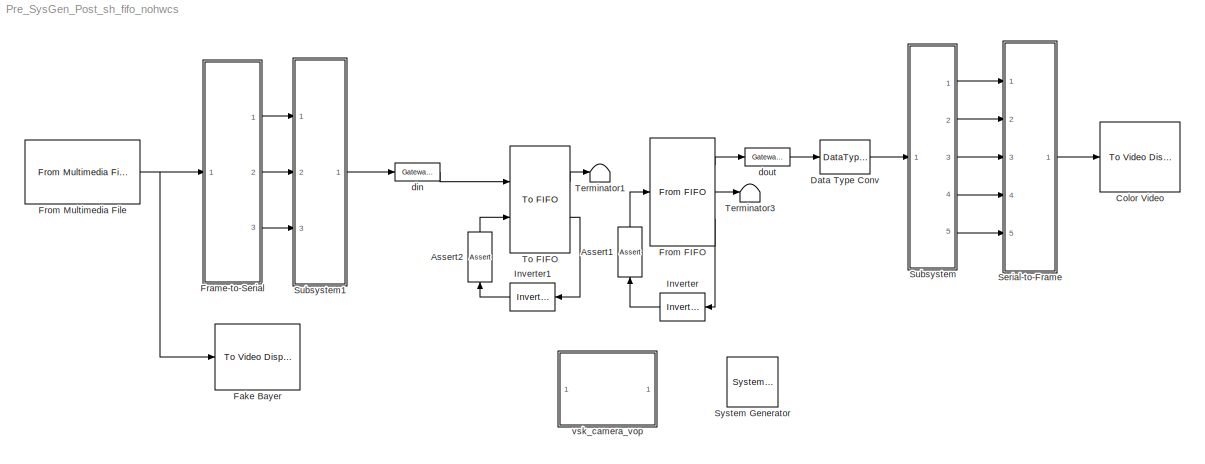
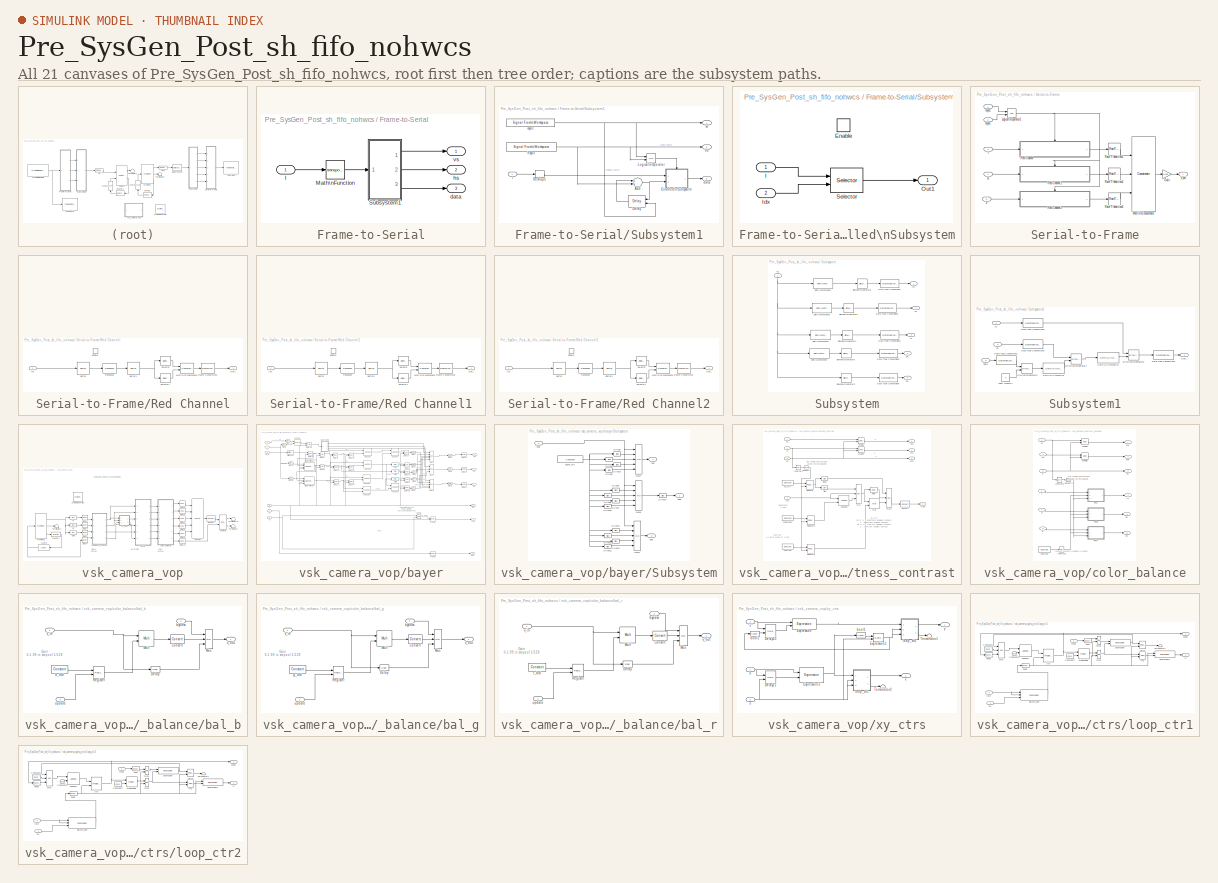
[diagram: thumbnail index - all 21 canvases of the model, root first then tree order]
MODEL Pre_SysGen_Post_sh_fifo_nohwcs
KIND model
CONFIG InitFcn = init
BLOCK [Reference]  System Generator  REF=xbsIndex_r4/ System Generator
  AttributesFormatString = System\\nGenerator
  FunctionWithSeparateData = off
  Ports = []
  RTWMemSecDataConstants = Inherit from model
  RTWMemSecDataInternal = Inherit from model
  RTWMemSecDataParameters = Inherit from model
  RTWMemSecFuncExecute = Inherit from model
  RTWMemSecFuncInitTerm = Inherit from model
  SID = 1
  ShowPortLabels = FromPortIcon
  SourceBlock = xbsIndex_r4/ System Generator
  SourceType = Xilinx System Generator Block
  SystemSampleTime = -1
  Tag = genX
  UserData = DataTag0
  UserDataPersistent = on
  block_type = sysgen
  block_version = 9.2.01
  core_generation = According to Block Masks
  dbl_ovrd = According to Block Masks
  deprecated_control = off
  directory = ./netlist
  eval_field = 0
  has_advanced_control = 0
  incr_netlist = off
  infoedit = System Generator
  package = fg676
  part = xc3sd1800a
  run_coregen = off
  sg_icon_stat = 51,50,-1,-1,red,beige,0,07734
  sg_mask_display = fprintf('','COMMENT: begin icon graphics');\npatch([0 51 51 0 ],[0 0 50 50 ],[0.93 0.92 0.86]);\npatch([12 4 16 4 12 25 29 33 47 36 25 17 29 17 25 36 47 33 29 25 12 ],[5 13 25 37 45 45 41 45 45 34 45 37 25 13 5 16 5 5 9 5 5 ],[0.6 0.2 0.25]);\nplot([0 0 51 51 0 ],[0 50 50 0 0 ]);\nfprintf('','COMMENT: end icon graphics');\nfprintf('','COMMENT: begin icon text');\nfprintf('','COMMENT: end icon text...<+5ch>
  sggui_pos = -1,-1,-1,-1
  simulink_period = 1
  speed = -4
  synthesis_tool = XST
  sysclk_period = 20
  testbench = off
  trim_vbits = Everywhere in SubSystem
  xilinxfamily = spartan3adsp
BLOCK [Reference] Assert1  REF=xbsIndex_r4/Assert
  Ports = [1, 1]
  SID = 2
  SourceBlock = xbsIndex_r4/Assert
  SourceType = Xilinx Assert Block
  arith_type = Unsigned
  assert_rate = on
  assert_type = off
  bin_pt = 2
  block_type = assert
  block_version = VER_STRING_GOES_HERE
  has_advanced_control = 0
  infoedit = Asserts a user-defined sample rate and/or type on a signal.
  n_bits = 8
  output_port = on
  period = 1
  rate_source = Explicitly
  sg_icon_stat = 24,50,1,1,white,blue,0,f7732e52
  sg_mask_display = fprintf('','COMMENT: begin icon graphics');\npatch([0 60 60 0 ],[0 0 30 30 ],[0.77 0.82 0.91]);\npatch([22 17 24 17 22 30 32 34 42 35 29 24 30 24 29 35 42 34 32 30 22 ],[3 8 15 22 27 27 25 27 27 20 26 21 15 9 4 10 3 3 5 3 3 ],[0.98 0.96 0.92]);\nplot([0 0 60 60 0 ],[0 30 30 0 0 ]);\nfprintf('','COMMENT: end icon graphics');\nfprintf('','COMMENT: begin icon text');\ncolor('black');disp('Assert');\n...<+39ch>  <repeated x3 — deduplicated; at blocks: Assert1, Assert2>
  sggui_pos = 20,20,336,406
  type_source = Explicitly
BLOCK [Reference] Assert2  REF=xbsIndex_r4/Assert
  Ports = [1, 1]
  SID = 3
  SourceBlock = xbsIndex_r4/Assert
  SourceType = Xilinx Assert Block
  arith_type = Unsigned
  assert_rate = on
  assert_type = off
  bin_pt = 2
  block_type = assert
  block_version = VER_STRING_GOES_HERE
  has_advanced_control = 0
  infoedit = Asserts a user-defined sample rate and/or type on a signal.
  n_bits = 8
  output_port = on
  period = 1
  rate_source = Explicitly
  sg_icon_stat = 24,50,1,1,white,blue,0,f7732e52
  sggui_pos = 20,20,336,406
  type_source = Explicitly
BLOCK [Reference] Color Video  REF=vipsnks/To Video Display
  OutputDevice = On-screen video monitor
  Ports = [1]
  SID = 4
  SourceBlock = vipsnks/To Video Display
  SourceProductBaseCode = VP
  SourceProductName = Computer Vision Toolbox
  SourceType = To Video Display
  dataOrg = Column-major
  fullScreen = off
  imagePorts = One multidimensional signal
  inputType = Obsolete
  saveWindowSize = off
  videoWindowHeight = 41
  videoWindowWidth = 44
  videoWindowX = 559
  videoWindowY = 678
BLOCK [DataTypeConversion] Data Type Conv
  OutDataTypeStr = uint32
  RndMeth = Floor
  SID = 5
  SaturateOnIntegerOverflow = off
BLOCK [Reference] Fake Bayer  REF=vipsnks/To Video Display
  OutputDevice = On-screen video monitor
  Ports = [1]
  SID = 6
  SourceBlock = vipsnks/To Video Display
  SourceProductBaseCode = VP
  SourceProductName = Computer Vision Toolbox
  SourceType = To Video Display
  dataOrg = Column-major
  fullScreen = off
  imagePorts = One multidimensional signal
  inputType = Obsolete
  saveWindowSize = off
  videoWindowHeight = 41
  videoWindowWidth = 44
  videoWindowX = 177
  videoWindowY = 679
BLOCK [SubSystem] Frame-to-Serial
  Ports = [1, 3]
  RequestExecContextInheritance = off
  SID = 7
BLOCK [Inport] Frame-to-Serial/I
  IconDisplay = Port number
  SID = 8
BLOCK [Math] Frame-to-Serial/Math\nFunction
  Operator = transpose
  Ports = [1, 1]
  SID = 9
BLOCK [SubSystem] Frame-to-Serial/Subsystem1
  Ports = [1, 3]
  RequestExecContextInheritance = off
  SID = 10
BLOCK [Sum] Frame-to-Serial/Subsystem1/Add
  InputSameDT = off
  OutDataTypeStr = Inherit: Inherit via internal rule
  Ports = [2, 1]
  SID = 12
  SaturateOnIntegerOverflow = off
BLOCK [Reference] Frame-to-Serial/Subsystem1/Delay  REF=dspsigops/Delay
  Ports = [2, 1]
  SID = 13
  SourceBlock = dspsigops/Delay
  SourceProductBaseCode = DS
  SourceProductName = DSP System Toolbox
  SourceType = Delay
  delay = 1
  dif_ic_for_ch = off
  dif_ic_for_dly = off
  dly_unit = Samples
  ic = 0
  ic_detail = off
  reset_popup = Falling edge
BLOCK [SubSystem] Frame-to-Serial/Subsystem1/Enabled\nSubsystem
  Ports = [2, 1, 1]
  RequestExecContextInheritance = off
  SID = 14
  TreatAsAtomicUnit = on
BLOCK [EnablePort] Frame-to-Serial/Subsystem1/Enabled\nSubsystem/Enable
  Ports = []
  SID = 17
BLOCK [Inport] Frame-to-Serial/Subsystem1/Enabled\nSubsystem/I
  IconDisplay = Port number
  SID = 15
BLOCK [Inport] Frame-to-Serial/Subsystem1/Enabled\nSubsystem/Idx
  IconDisplay = Port number
  Port = 2
  SID = 16
BLOCK [Outport] Frame-to-Serial/Subsystem1/Enabled\nSubsystem/Out1
  IconDisplay = Port number
  SID = 19
BLOCK [Selector] Frame-to-Serial/Subsystem1/Enabled\nSubsystem/Selector
  IndexOptions = Index vector (port)
  Indices = [1 4]
  InputPortWidth = rows*cols
  OutputSizes = 1
  Ports = [2, 1]
  SID = 18
  SampleTime = (1/fps)/(rows*(cols+2*blk))
BLOCK [Inport] Frame-to-Serial/Subsystem1/I
  IconDisplay = Port number
  SID = 11
BLOCK [Logic] Frame-to-Serial/Subsystem1/Logical\nOperator
  AllPortsSameDT = off
  OutDataTypeStr = boolean
  Ports = [2, 1]
  SID = 20
BLOCK [Reshape] Frame-to-Serial/Subsystem1/Reshape
  Ports = [1, 1]
  SID = 21
BLOCK [Outport] Frame-to-Serial/Subsystem1/data
  IconDisplay = Port number
  Port = 3
  SID = 26
BLOCK [Outport] Frame-to-Serial/Subsystem1/hs
  IconDisplay = Port number
  Port = 2
  SID = 25
BLOCK [Reference] Frame-to-Serial/Subsystem1/hsync  REF=dspsrcs4/Signal From\nWorkspace
  FunctionWithSeparateData = off
  OutputAfterFinalValue = Cyclic repetition
  Ports = [0, 1]
  RTWMemSecDataConstants = Inherit from model
  RTWMemSecDataInternal = Inherit from model
  RTWMemSecDataParameters = Inherit from model
  RTWMemSecFuncExecute = Inherit from model
  RTWMemSecFuncInitTerm = Inherit from model
  SID = 22
  ShowPortLabels = FromPortIcon
  SourceBlock = dspsrcs4/Signal From\nWorkspace
  SourceProductBaseCode = DS
  SourceProductName = DSP System Toolbox
  SourceType = Signal From Workspace
  SystemSampleTime = -1
  Ts = (1/fps)/ (rows*(cols+2*blk))
  X = [zeros(1,blk) ones(1,cols) zeros(1,blk)]
  ignoreOrWarnInputAndFrameLengths = off
  nsamps = 1
BLOCK [Outport] Frame-to-Serial/Subsystem1/vs
  IconDisplay = Port number
  SID = 24
BLOCK [Reference] Frame-to-Serial/Subsystem1/vsync  REF=dspsrcs4/Signal From\nWorkspace
  FunctionWithSeparateData = off
  OutputAfterFinalValue = Cyclic repetition
  Ports = [0, 1]
  RTWMemSecDataConstants = Inherit from model
  RTWMemSecDataInternal = Inherit from model
  RTWMemSecDataParameters = Inherit from model
  RTWMemSecFuncExecute = Inherit from model
  RTWMemSecFuncInitTerm = Inherit from model
  SID = 23
  ShowPortLabels = FromPortIcon
  SourceBlock = dspsrcs4/Signal From\nWorkspace
  SourceProductBaseCode = DS
  SourceProductName = DSP System Toolbox
  SourceType = Signal From Workspace
  SystemSampleTime = -1
  Ts = (1/fps)/(rows*(cols+2*blk))
  X = [ zeros(1,blk) ones(1,rows*(cols+2*blk)-2*blk) zeros(1,blk) ]
  ignoreOrWarnInputAndFrameLengths = off
  nsamps = 1
BLOCK [Outport] Frame-to-Serial/data
  IconDisplay = Port number
  Port = 3
  SID = 29
BLOCK [Outport] Frame-to-Serial/hs
  IconDisplay = Port number
  Port = 2
  SID = 28
BLOCK [Outport] Frame-to-Serial/vs
  IconDisplay = Port number
  SID = 27
BLOCK [Reference] From FIFO  REF=xbsIndex_r4/From FIFO
  AttributesFormatString = << %<shared_memory_name> >>
  Ports = [1, 3]
  SID = 30
  SourceBlock = xbsIndex_r4/From FIFO
  SourceType = Xilinx Shared Memory Based From FIFO Block
  arith_type = Unsigned
  bin_pt = 0
  block_type = fromfifo
  block_version = VER_STRING_GOES_HERE
  dbl_ovrd = off
  depth = 4K
  has_advanced_control = 0
  has_arst = off
  infoedit = First-in-first-out (FIFO) block that reads FIFO data from shared memory storage.
  mem_type = Block RAM
  n_bits = 32
  ownership = Owned elsewhere
  percent_nbits = 8
  sg_icon_stat = 65,108,1,3,white,blue,0,6a9babce
  sg_mask_display = fprintf('','COMMENT: begin icon graphics');\npatch([0 80 80 0 ],[0 0 90 90 ],[0.77 0.82 0.91]);\npatch([18 5 24 5 18 39 45 51 74 56 39 27 46 27 39 56 74 51 45 39 18 ],[14 27 46 65 78 78 72 78 78 60 77 65 46 27 15 32 14 14 20 14 14 ],[0.98 0.96 0.92]);\nplot([0 0 80 80 0 ],[0 90 90 0 0 ]);\nfprintf('','COMMENT: end icon graphics');\nfprintf('','COMMENT: begin icon text');\ncolor('black');port_label...<+201ch>
  sggui_pos = 20,20,356,304
  shared_memory_name = 'data_out'
  xl_area = [0,0,0,0,0,0,0]
  xl_use_area = off
BLOCK [Reference] From Multimedia File  REF=dspwin32/From Multimedia File
  Ports = [0, 1]
  SID = 31
  SourceBlock = dspwin32/From Multimedia File
  SourceProductBaseCode = DS
  SourceProductName = DSP System Toolbox
  SourceType = From Multimedia File
  audioDataType = int16
  colorVideoFormat = One multidimensional signal
  dataOrg = Column-major
  inheritSampleTime = off
  inputFilename = <path>
  isIntensityVideo = on
  loop = on
  noAudioOutput = off
  numPlays = inf
  outputEOF = off
  outputStreams = Video only
  userDefinedSampleTime = 1/fps
  videoDataType = uint8
BLOCK [Reference] Inverter  REF=xbsIndex_r4/Inverter
  Ports = [1, 1]
  SID = 32
  SourceBlock = xbsIndex_r4/Inverter
  SourceType = Xilinx Inverter Block
  block_type = inv
  block_version = VER_STRING_GOES_HERE
  dbl_ovrd = off
  en = off
  has_advanced_control = 0
  infoedit = Bitwise logical negation (one's complement) operator.
  latency = 0
  sg_icon_stat = 45,28,1,1,white,blue,0,1ab4a85f
  sg_mask_display = fprintf('','COMMENT: begin icon graphics');\npatch([0 55 55 0 ],[0 0 58 58 ],[0.77 0.82 0.91]);\npatch([13 4 17 4 13 28 32 36 52 40 28 19 32 19 28 40 52 36 32 28 13 ],[7 16 29 42 51 51 47 51 51 39 51 42 29 16 7 19 7 7 11 7 7 ],[0.98 0.96 0.92]);\nplot([0 0 55 55 0 ],[0 58 58 0 0 ]);\nfprintf('','COMMENT: end icon graphics');\nfprintf('','COMMENT: begin icon text');\ncolor('black');disp('not');\nfp...<+37ch>  <repeated x6 — deduplicated; at blocks: Inverter, Inverter1, Inverter2>
  sggui_pos = -1,-1,-1,-1
  xl_area = [0,0,0,0,0,0,0]
  xl_use_area = off
BLOCK [Reference] Inverter1  REF=xbsIndex_r4/Inverter
  Ports = [1, 1]
  SID = 33
  SourceBlock = xbsIndex_r4/Inverter
  SourceType = Xilinx Inverter Block
  block_type = inv
  block_version = VER_STRING_GOES_HERE
  dbl_ovrd = off
  en = off
  has_advanced_control = 0
  infoedit = Bitwise logical negation (one's complement) operator.
  latency = 0
  sg_icon_stat = 45,28,1,1,white,blue,0,1ab4a85f
  sggui_pos = 20,20,348,248
  xl_area = [0,0,0,0,0,0,0]
  xl_use_area = off
BLOCK [SubSystem] Serial-to-Frame
  Ports = [5, 1]
  RequestExecContextInheritance = off
  SID = 34
BLOCK [Gain] Serial-to-Frame/Gain
  Gain = 1/255
  OutDataTypeStr = Inherit: Inherit via internal rule
  ParamDataTypeStr = Inherit: Inherit via internal rule
  SID = 40
  SaturateOnIntegerOverflow = off
BLOCK [Logic] Serial-to-Frame/Logical\nOperator1
  AllPortsSameDT = off
  OutDataTypeStr = boolean
  Ports = [2, 1]
  SID = 41
BLOCK [Concatenate] Serial-to-Frame/Matrix\nConcatenate
  ConcatenateDimension = 3
  Mode = Multidimensional array
  NumInputs = 3
  Ports = [3, 1]
  SID = 42
BLOCK [RateTransition] Serial-to-Frame/Rate Transition1
  Deterministic = off
  OutPortSampleTime = 1/fps
  SID = 43
BLOCK [RateTransition] Serial-to-Frame/Rate Transition2
  Deterministic = off
  OutPortSampleTime = 1/fps
  SID = 44
BLOCK [RateTransition] Serial-to-Frame/Rate Transition3
  Deterministic = off
  OutPortSampleTime = 1/fps
  SID = 45
BLOCK [SubSystem] Serial-to-Frame/Red Channel
  Ports = [1, 1, 1]
  RequestExecContextInheritance = off
  SID = 46
BLOCK [Reference] Serial-to-Frame/Red Channel/Buffer  REF=dspbuff3/Buffer
  N = cols
  Ports = [1, 1]
  SID = 49
  SourceBlock = dspbuff3/Buffer
  SourceProductBaseCode = DS
  SourceProductName = DSP System Toolbox
  SourceType = Buffer
  V = 0
  ic = 0
BLOCK [Reference] Serial-to-Frame/Red Channel/Buffer1  REF=dspbuff3/Buffer
  N = rows
  Ports = [1, 1]
  SID = 50
  SourceBlock = dspbuff3/Buffer
  SourceProductBaseCode = DS
  SourceProductName = DSP System Toolbox
  SourceType = Buffer
  V = 0
  ic = 0
BLOCK [EnablePort] Serial-to-Frame/Red Channel/Enable
  Ports = []
  SID = 48
BLOCK [FrameConversion] Serial-to-Frame/Red Channel/Frame Conversion1
  OutFrame = Sample-based
  Ports = [1, 1]
  SID = 51
BLOCK [Inport] Serial-to-Frame/Red Channel/In1
  IconDisplay = Port number
  SID = 47
BLOCK [Concatenate] Serial-to-Frame/Red Channel/Matrix\nConcatenate
  Mode = Multidimensional array
  Ports = [2, 1]
  SID = 52
BLOCK [Outport] Serial-to-Frame/Red Channel/Out1
  IconDisplay = Port number
  SID = 56
BLOCK [Selector] Serial-to-Frame/Red Channel/Selector
  IndexOptions = Index vector (dialog),Select all
  Indices = 22:rows,1
  InputPortWidth = 3
  NumberOfDimensions = 2
  OutputSizes = 1,1
  Ports = [1, 1]
  SID = 53
BLOCK [Selector] Serial-to-Frame/Red Channel/Selector1
  IndexOptions = Index vector (dialog),Select all
  Indices = 1:21,1
  InputPortWidth = 3
  NumberOfDimensions = 2
  OutputSizes = 1,1
  Ports = [1, 1]
  SID = 54
BLOCK [Reference] Serial-to-Frame/Red Channel/Transpose  REF=dspmtrx3/Transpose
  FunctionWithSeparateData = off
  Hermitian = off
  Ports = [1, 1]
  RTWMemSecDataConstants = Inherit from model
  RTWMemSecDataInternal = Inherit from model
  RTWMemSecDataParameters = Inherit from model
  RTWMemSecFuncExecute = Inherit from model
  RTWMemSecFuncInitTerm = Inherit from model
  SID = 55
  ShowPortLabels = FromPortIcon
  SourceBlock = dspmtrx3/Transpose
  SourceProductBaseCode = DS
  SourceProductName = DSP System Toolbox
  SourceType = Transpose
  SystemSampleTime = -1
  overflowFlag = off
BLOCK [SubSystem] Serial-to-Frame/Red Channel1
  Ports = [1, 1, 1]
  RequestExecContextInheritance = off
  SID = 57
BLOCK [Reference] Serial-to-Frame/Red Channel1/Buffer  REF=dspbuff3/Buffer
  N = cols
  Ports = [1, 1]
  SID = 60
  SourceBlock = dspbuff3/Buffer
  SourceProductBaseCode = DS
  SourceProductName = DSP System Toolbox
  SourceType = Buffer
  V = 0
  ic = 0
BLOCK [Reference] Serial-to-Frame/Red Channel1/Buffer1  REF=dspbuff3/Buffer
  N = rows
  Ports = [1, 1]
  SID = 61
  SourceBlock = dspbuff3/Buffer
  SourceProductBaseCode = DS
  SourceProductName = DSP System Toolbox
  SourceType = Buffer
  V = 0
  ic = 0
BLOCK [EnablePort] Serial-to-Frame/Red Channel1/Enable
  Ports = []
  SID = 59
BLOCK [FrameConversion] Serial-to-Frame/Red Channel1/Frame Conversion1
  OutFrame = Sample-based
  Ports = [1, 1]
  SID = 62
BLOCK [Inport] Serial-to-Frame/Red Channel1/In1
  IconDisplay = Port number
  SID = 58
BLOCK [Concatenate] Serial-to-Frame/Red Channel1/Matrix\nConcatenate
  Mode = Multidimensional array
  Ports = [2, 1]
  SID = 63
BLOCK [Outport] Serial-to-Frame/Red Channel1/Out1
  IconDisplay = Port number
  SID = 67
BLOCK [Selector] Serial-to-Frame/Red Channel1/Selector
  IndexOptions = Index vector (dialog),Select all
  Indices = 22:rows,1
  InputPortWidth = 3
  NumberOfDimensions = 2
  OutputSizes = 1,1
  Ports = [1, 1]
  SID = 64
BLOCK [Selector] Serial-to-Frame/Red Channel1/Selector1
  IndexOptions = Index vector (dialog),Select all
  Indices = 1:21,1
  InputPortWidth = 3
  NumberOfDimensions = 2
  OutputSizes = 1,1
  Ports = [1, 1]
  SID = 65
BLOCK [Reference] Serial-to-Frame/Red Channel1/Transpose  REF=dspmtrx3/Transpose
  FunctionWithSeparateData = off
  Hermitian = off
  Ports = [1, 1]
  RTWMemSecDataConstants = Inherit from model
  RTWMemSecDataInternal = Inherit from model
  RTWMemSecDataParameters = Inherit from model
  RTWMemSecFuncExecute = Inherit from model
  RTWMemSecFuncInitTerm = Inherit from model
  SID = 66
  ShowPortLabels = FromPortIcon
  SourceBlock = dspmtrx3/Transpose
  SourceProductBaseCode = DS
  SourceProductName = DSP System Toolbox
  SourceType = Transpose
  SystemSampleTime = -1
  overflowFlag = off
BLOCK [SubSystem] Serial-to-Frame/Red Channel2
  Ports = [1, 1, 1]
  RequestExecContextInheritance = off
  SID = 68
BLOCK [Reference] Serial-to-Frame/Red Channel2/Buffer  REF=dspbuff3/Buffer
  N = cols
  Ports = [1, 1]
  SID = 71
  SourceBlock = dspbuff3/Buffer
  SourceProductBaseCode = DS
  SourceProductName = DSP System Toolbox
  SourceType = Buffer
  V = 0
  ic = 0
BLOCK [Reference] Serial-to-Frame/Red Channel2/Buffer1  REF=dspbuff3/Buffer
  N = rows
  Ports = [1, 1]
  SID = 72
  SourceBlock = dspbuff3/Buffer
  SourceProductBaseCode = DS
  SourceProductName = DSP System Toolbox
  SourceType = Buffer
  V = 0
  ic = 0
BLOCK [EnablePort] Serial-to-Frame/Red Channel2/Enable
  Ports = []
  SID = 70
BLOCK [FrameConversion] Serial-to-Frame/Red Channel2/Frame Conversion1
  OutFrame = Sample-based
  Ports = [1, 1]
  SID = 73
BLOCK [Inport] Serial-to-Frame/Red Channel2/In1
  IconDisplay = Port number
  SID = 69
BLOCK [Concatenate] Serial-to-Frame/Red Channel2/Matrix\nConcatenate
  Mode = Multidimensional array
  Ports = [2, 1]
  SID = 74
BLOCK [Outport] Serial-to-Frame/Red Channel2/Out1
  IconDisplay = Port number
  SID = 78
BLOCK [Selector] Serial-to-Frame/Red Channel2/Selector
  IndexOptions = Index vector (dialog),Select all
  Indices = 22:rows,1
  InputPortWidth = 3
  NumberOfDimensions = 2
  OutputSizes = 1,1
  Ports = [1, 1]
  SID = 75
BLOCK [Selector] Serial-to-Frame/Red Channel2/Selector1
  IndexOptions = Index vector (dialog),Select all
  Indices = 1:21,1
  InputPortWidth = 3
  NumberOfDimensions = 2
  OutputSizes = 1,1
  Ports = [1, 1]
  SID = 76
BLOCK [Reference] Serial-to-Frame/Red Channel2/Transpose  REF=dspmtrx3/Transpose
  FunctionWithSeparateData = off
  Hermitian = off
  Ports = [1, 1]
  RTWMemSecDataConstants = Inherit from model
  RTWMemSecDataInternal = Inherit from model
  RTWMemSecDataParameters = Inherit from model
  RTWMemSecFuncExecute = Inherit from model
  RTWMemSecFuncInitTerm = Inherit from model
  SID = 77
  ShowPortLabels = FromPortIcon
  SourceBlock = dspmtrx3/Transpose
  SourceProductBaseCode = DS
  SourceProductName = DSP System Toolbox
  SourceType = Transpose
  SystemSampleTime = -1
  overflowFlag = off
BLOCK [Inport] Serial-to-Frame/b
  IconDisplay = Port number
  Port = 5
  SID = 39
BLOCK [Inport] Serial-to-Frame/g
  IconDisplay = Port number
  Port = 4
  SID = 38
BLOCK [Inport] Serial-to-Frame/hsync
  IconDisplay = Port number
  Port = 2
  SID = 36
BLOCK [Inport] Serial-to-Frame/r
  IconDisplay = Port number
  Port = 3
  SID = 37
BLOCK [Outport] Serial-to-Frame/v_out
  IconDisplay = Port number
  SID = 79
BLOCK [Inport] Serial-to-Frame/vsync
  IconDisplay = Port number
  SID = 35
BLOCK [SubSystem] Subsystem
  Ports = [1, 5]
  RequestExecContextInheritance = off
  SID = 80
BLOCK [Reference] Subsystem/Bitwise\nOperator2  REF=simulink/Logic and Bit\nOperations/Bitwise\nOperator
  BitMask = bin2dec('000000000000000000011111111')
  BitMaskRealWorld = Stored Integer
  NumInputPorts = 1
  Ports = [1, 1]
  SID = 82
  SourceBlock = simulink/Logic and Bit\nOperations/Bitwise\nOperator
  SourceProductBaseCode = SL
  SourceProductName = Simulink
  SourceType = Bitwise Operator
  UseBitMask = on
  logicop = AND
BLOCK [Reference] Subsystem/Bitwise\nOperator3  REF=simulink/Logic and Bit\nOperations/Bitwise\nOperator
  BitMask = bin2dec('000000000000000000011111111')
  BitMaskRealWorld = Stored Integer
  NumInputPorts = 1
  Ports = [1, 1]
  SID = 83
  SourceBlock = simulink/Logic and Bit\nOperations/Bitwise\nOperator
  SourceProductBaseCode = SL
  SourceProductName = Simulink
  SourceType = Bitwise Operator
  UseBitMask = on
  logicop = AND
BLOCK [Reference] Subsystem/Bitwise\nOperator4  REF=simulink/Logic and Bit\nOperations/Bitwise\nOperator
  BitMask = bin2dec('000000000000000000011111111')
  BitMaskRealWorld = Stored Integer
  NumInputPorts = 1
  Ports = [1, 1]
  SID = 84
  SourceBlock = simulink/Logic and Bit\nOperations/Bitwise\nOperator
  SourceProductBaseCode = SL
  SourceProductName = Simulink
  SourceType = Bitwise Operator
  UseBitMask = on
  logicop = AND
BLOCK [Reference] Subsystem/Bitwise\nOperator5  REF=simulink/Logic and Bit\nOperations/Bitwise\nOperator
  BitMask = bin2dec('000000000000000000000000001')
  BitMaskRealWorld = Stored Integer
  NumInputPorts = 1
  Ports = [1, 1]
  SID = 85
  SourceBlock = simulink/Logic and Bit\nOperations/Bitwise\nOperator
  SourceProductBaseCode = SL
  SourceProductName = Simulink
  SourceType = Bitwise Operator
  UseBitMask = on
  logicop = AND
BLOCK [Reference] Subsystem/Bitwise\nOperator6  REF=simulink/Logic and Bit\nOperations/Bitwise\nOperator
  BitMask = bin2dec('000000000000000000000000001')
  BitMaskRealWorld = Stored Integer
  NumInputPorts = 1
  Ports = [1, 1]
  SID = 86
  SourceBlock = simulink/Logic and Bit\nOperations/Bitwise\nOperator
  SourceProductBaseCode = SL
  SourceProductName = Simulink
  SourceType = Bitwise Operator
  UseBitMask = on
  logicop = AND
BLOCK [DataTypeConversion] Subsystem/Data Type Conversion2
  OutDataTypeStr = double
  RndMeth = Floor
  SID = 87
  SaturateOnIntegerOverflow = off
BLOCK [DataTypeConversion] Subsystem/Data Type Conversion3
  OutDataTypeStr = double
  RndMeth = Floor
  SID = 88
  SaturateOnIntegerOverflow = off
BLOCK [DataTypeConversion] Subsystem/Data Type Conversion4
  OutDataTypeStr = double
  RndMeth = Floor
  SID = 89
  SaturateOnIntegerOverflow = off
BLOCK [DataTypeConversion] Subsystem/Data Type Conversion5
  OutDataTypeStr = double
  RndMeth = Floor
  SID = 90
  SaturateOnIntegerOverflow = off
BLOCK [DataTypeConversion] Subsystem/Data Type Conversion6
  OutDataTypeStr = double
  RndMeth = Floor
  SID = 91
  SaturateOnIntegerOverflow = off
BLOCK [Inport] Subsystem/In1
  IconDisplay = Port number
  SID = 81
BLOCK [Reference] Subsystem/Shift\nArithmetic2  REF=simulink/Logic and Bit\nOperations/Shift\nArithmetic
  FunctionWithSeparateData = off
  Ports = [1, 1]
  RTWMemSecDataConstants = Inherit from model
  RTWMemSecDataInternal = Inherit from model
  RTWMemSecDataParameters = Inherit from model
  RTWMemSecFuncExecute = Inherit from model
  RTWMemSecFuncInitTerm = Inherit from model
  SID = 92
  ShowPortLabels = FromPortIcon
  SourceBlock = simulink/Logic and Bit\nOperations/Shift\nArithmetic
  SourceProductBaseCode = SL
  SourceProductName = Simulink
  SourceType = Shift Arithmetic
  SystemSampleTime = -1
  nBinPtShiftRight = 0
  nBitShiftRight = 16
BLOCK [Reference] Subsystem/Shift\nArithmetic3  REF=simulink/Logic and Bit\nOperations/Shift\nArithmetic
  FunctionWithSeparateData = off
  Ports = [1, 1]
  RTWMemSecDataConstants = Inherit from model
  RTWMemSecDataInternal = Inherit from model
  RTWMemSecDataParameters = Inherit from model
  RTWMemSecFuncExecute = Inherit from model
  RTWMemSecFuncInitTerm = Inherit from model
  SID = 93
  ShowPortLabels = FromPortIcon
  SourceBlock = simulink/Logic and Bit\nOperations/Shift\nArithmetic
  SourceProductBaseCode = SL
  SourceProductName = Simulink
  SourceType = Shift Arithmetic
  SystemSampleTime = -1
  nBinPtShiftRight = 0
  nBitShiftRight = 24
BLOCK [Reference] Subsystem/Shift\nArithmetic4  REF=simulink/Logic and Bit\nOperations/Shift\nArithmetic
  FunctionWithSeparateData = off
  Ports = [1, 1]
  RTWMemSecDataConstants = Inherit from model
  RTWMemSecDataInternal = Inherit from model
  RTWMemSecDataParameters = Inherit from model
  RTWMemSecFuncExecute = Inherit from model
  RTWMemSecFuncInitTerm = Inherit from model
  SID = 94
  ShowPortLabels = FromPortIcon
  SourceBlock = simulink/Logic and Bit\nOperations/Shift\nArithmetic
  SourceProductBaseCode = SL
  SourceProductName = Simulink
  SourceType = Shift Arithmetic
  SystemSampleTime = -1
  nBinPtShiftRight = 0
  nBitShiftRight = 8
BLOCK [Reference] Subsystem/Shift\nArithmetic5  REF=simulink/Logic and Bit\nOperations/Shift\nArithmetic
  FunctionWithSeparateData = off
  Ports = [1, 1]
  RTWMemSecDataConstants = Inherit from model
  RTWMemSecDataInternal = Inherit from model
  RTWMemSecDataParameters = Inherit from model
  RTWMemSecFuncExecute = Inherit from model
  RTWMemSecFuncInitTerm = Inherit from model
  SID = 95
  ShowPortLabels = FromPortIcon
  SourceBlock = simulink/Logic and Bit\nOperations/Shift\nArithmetic
  SourceProductBaseCode = SL
  SourceProductName = Simulink
  SourceType = Shift Arithmetic
  SystemSampleTime = -1
  nBinPtShiftRight = 0
  nBitShiftRight = 25
BLOCK [Outport] Subsystem/bo
  IconDisplay = Port number
  Port = 5
  SID = 100
BLOCK [Outport] Subsystem/go
  IconDisplay = Port number
  Port = 4
  SID = 99
BLOCK [Outport] Subsystem/ho
  IconDisplay = Port number
  Port = 2
  SID = 97
BLOCK [Outport] Subsystem/ro
  IconDisplay = Port number
  Port = 3
  SID = 98
BLOCK [Outport] Subsystem/vo
  IconDisplay = Port number
  SID = 96
BLOCK [SubSystem] Subsystem1
  Ports = [3, 1]
  RequestExecContextInheritance = off
  SID = 101
BLOCK [Constant] Subsystem1/10bit Result1
  OutDataTypeStr = fixdt(0,10,0)
  SID = 105
  Value = 0
BLOCK [Reference] Subsystem1/Bitwise\nOperator3  REF=simulink/Logic and Bit\nOperations/Bitwise\nOperator
  BitMask = bin2dec('11011001')
  BitMaskRealWorld = Stored Integer
  NumInputPorts = 2
  Ports = [2, 1]
  SID = 106
  SourceBlock = simulink/Logic and Bit\nOperations/Bitwise\nOperator
  SourceProductBaseCode = SL
  SourceProductName = Simulink
  SourceType = Bitwise Operator
  UseBitMask = off
  logicop = XOR
BLOCK [Reference] Subsystem1/Bitwise\nOperator4  REF=simulink/Logic and Bit\nOperations/Bitwise\nOperator
  BitMask = bin2dec('11011001')
  BitMaskRealWorld = Stored Integer
  NumInputPorts = 2
  Ports = [2, 1]
  SID = 107
  SourceBlock = simulink/Logic and Bit\nOperations/Bitwise\nOperator
  SourceProductBaseCode = SL
  SourceProductName = Simulink
  SourceType = Bitwise Operator
  UseBitMask = off
  logicop = XOR
BLOCK [Reference] Subsystem1/Bitwise\nOperator5  REF=simulink/Logic and Bit\nOperations/Bitwise\nOperator
  BitMask = bin2dec('11011001')
  BitMaskRealWorld = Stored Integer
  NumInputPorts = 2
  Ports = [2, 1]
  SID = 108
  SourceBlock = simulink/Logic and Bit\nOperations/Bitwise\nOperator
  SourceProductBaseCode = SL
  SourceProductName = Simulink
  SourceType = Bitwise Operator
  UseBitMask = off
  logicop = XOR
BLOCK [DataTypeConversion] Subsystem1/Data Type Conversion1
  OutDataTypeStr = uint8
  RndMeth = Floor
  SID = 109
  SaturateOnIntegerOverflow = off
BLOCK [DataTypeConversion] Subsystem1/Data Type Conversion2
  OutDataTypeStr = fixdt(0,10,0)
  RndMeth = Floor
  SID = 110
  SaturateOnIntegerOverflow = off
BLOCK [DataTypeConversion] Subsystem1/Data Type Conversion3
  OutDataTypeStr = fixdt(0,10,0)
  RndMeth = Floor
  SID = 111
  SaturateOnIntegerOverflow = off
BLOCK [DataTypeConversion] Subsystem1/Data Type Conversion4
  OutDataTypeStr = uint16
  RndMeth = Floor
  SID = 112
  SaturateOnIntegerOverflow = off
BLOCK [Outport] Subsystem1/Out1
  IconDisplay = Port number
  SID = 115
BLOCK [Reference] Subsystem1/Shift\nArithmetic2  REF=simulink/Logic and Bit\nOperations/Shift\nArithmetic
  FunctionWithSeparateData = off
  Ports = [1, 1]
  RTWMemSecDataConstants = Inherit from model
  RTWMemSecDataInternal = Inherit from model
  RTWMemSecDataParameters = Inherit from model
  RTWMemSecFuncExecute = Inherit from model
  RTWMemSecFuncInitTerm = Inherit from model
  SID = 113
  ShowPortLabels = FromPortIcon
  SourceBlock = simulink/Logic and Bit\nOperations/Shift\nArithmetic
  SourceProductBaseCode = SL
  SourceProductName = Simulink
  SourceType = Shift Arithmetic
  SystemSampleTime = -1
  nBinPtShiftRight = 0
  nBitShiftRight = -1
BLOCK [Reference] Subsystem1/Shift\nArithmetic3  REF=simulink/Logic and Bit\nOperations/Shift\nArithmetic
  FunctionWithSeparateData = off
  Ports = [1, 1]
  RTWMemSecDataConstants = Inherit from model
  RTWMemSecDataInternal = Inherit from model
  RTWMemSecDataParameters = Inherit from model
  RTWMemSecFuncExecute = Inherit from model
  RTWMemSecFuncInitTerm = Inherit from model
  SID = 114
  ShowPortLabels = FromPortIcon
  SourceBlock = simulink/Logic and Bit\nOperations/Shift\nArithmetic
  SourceProductBaseCode = SL
  SourceProductName = Simulink
  SourceType = Shift Arithmetic
  SystemSampleTime = -1
  nBinPtShiftRight = 0
  nBitShiftRight = -1
BLOCK [Inport] Subsystem1/data
  IconDisplay = Port number
  Port = 3
  SID = 104
BLOCK [Inport] Subsystem1/hs
  IconDisplay = Port number
  Port = 2
  SID = 103
BLOCK [Inport] Subsystem1/vs
  IconDisplay = Port number
  SID = 102
BLOCK [Terminator] Terminator1
  SID = 116
BLOCK [Terminator] Terminator3
  SID = 117
BLOCK [Reference] To FIFO  REF=xbsIndex_r4/To FIFO
  AttributesFormatString = << %<shared_memory_name> >>
  Ports = [2, 2]
  SID = 118
  SourceBlock = xbsIndex_r4/To FIFO
  SourceType = Xilinx Shared Memory Based To FIFO Block
  arith_type = Unsigned
  bin_pt = 0
  block_type = tofifo
  block_version = VER_STRING_GOES_HERE
  dbl_ovrd = off
  depth = 16
  explicit_data_type = on
  has_advanced_control = 0
  has_arst = off
  infoedit = First-in-first-out (FIFO) block that writes FIFO data to shared memory storage.
  mem_type = Block RAM
  n_bits = 16
  ownership = Owned elsewhere
  percent_nbits = 1
  sg_icon_stat = 60,107,2,2,white,blue,0,aeee8328
  sg_mask_display = fprintf('','COMMENT: begin icon graphics');\npatch([0 80 80 0 ],[0 0 91 91 ],[0.77 0.82 0.91]);\npatch([18 5 24 5 18 39 45 51 74 56 39 27 46 27 39 56 74 51 45 39 18 ],[14 27 46 65 78 78 72 78 78 60 77 65 46 27 15 32 14 14 20 14 14 ],[0.98 0.96 0.92]);\nplot([0 0 80 80 0 ],[0 91 91 0 0 ]);\nfprintf('','COMMENT: end icon graphics');\nfprintf('','COMMENT: begin icon text');\ncolor('black');port_label...<+202ch>
  sggui_pos = 171,476,356,304
  shared_memory_name = 'data_in'
  xl_area = [0,0,0,0,0,0,0]
  xl_use_area = off
BLOCK [Reference] din  REF=xbsIndex_r4/Gateway In
  LOCs = {}
  Ports = [1, 1]
  SID = 119
  SourceBlock = xbsIndex_r4/Gateway In
  SourceType = Xilinx Gateway In Block
  arith_type = Unsigned
  bin_pt = 0
  block_type = gatewayin
  block_version = VER_STRING_GOES_HERE
  dbl_ovrd = off
  has_advanced_control = 0
  infoedit = Gateway in block.  Converts inputs of type Simulink integer, double and fixed point to  Xilinx fixed point type.<P><P>Hardware notes:  In hardware these blocks become top level input ports.
  locs_specified = off
  n_bits = 16
  overflow = Saturate
  period = 1
  quantization = Round  (unbiased: +/- Inf)
  sg_icon_stat = 45,18,1,1,white,yellow,0,4bb76ffd
  sg_mask_display = fprintf('','COMMENT: begin icon graphics');\npatch([0 65 65 0 ],[0 0 20 20 ],[0.95 0.93 0.65]);\npatch([27 24 29 24 27 32 33 34 40 36 32 29 34 29 32 36 40 34 33 32 27 ],[2 5 10 15 18 18 17 18 18 14 18 15 10 5 2 6 2 2 3 2 2 ],[0.98 0.96 0.92]);\nplot([0 0 65 65 0 ],[0 20 20 0 0 ]);\nfprintf('','COMMENT: end icon graphics');\nfprintf('','COMMENT: begin icon text');\ncolor('black');port_label('input'...<+131ch>
  sggui_pos = 20,20,348,408
  timing_constraint = None
  xl_area = [0, 0, 0, 0, 0, 0, 0]
  xl_use_area = off
BLOCK [Reference] dout  REF=xbsIndex_r4/Gateway Out
  LOCs = {}
  Ports = [1, 1]
  SID = 120
  SourceBlock = xbsIndex_r4/Gateway Out
  SourceType = Xilinx Gateway Out Block
  block_type = gatewayout
  block_version = VER_STRING_GOES_HERE
  has_advanced_control = 0
  hdl_port = on
  infoedit = Gateway out block.  Converts Xilinx fixed point inputs into ouputs of type Simulink integer, double, or fixed point.<P><P>Hardware notes:  In hardware these blocks become top level output ports or are discarded, depending on how they are configured.
  locs_specified = off
  sg_icon_stat = 45,18,1,1,white,yellow,0,f0cec300
  sg_mask_display = fprintf('','COMMENT: begin icon graphics');\npatch([0 60 60 0 ],[0 0 20 20 ],[0.95 0.93 0.65]);\npatch([24 21 26 21 24 29 30 31 37 33 29 26 31 26 29 33 37 31 30 29 24 ],[2 5 10 15 18 18 17 18 18 14 18 15 10 5 2 6 2 2 3 2 2 ],[0.98 0.96 0.92]);\nplot([0 0 60 60 0 ],[0 20 20 0 0 ]);\nfprintf('','COMMENT: end icon graphics');\nfprintf('','COMMENT: begin icon text');\ncolor('black');port_label('input'...<+132ch>
  sggui_pos = 43,44,336,384
  timing_constraint = None
  xl_area = [0, 0, 0, 0, 0, 0, 0]
  xl_use_area = off
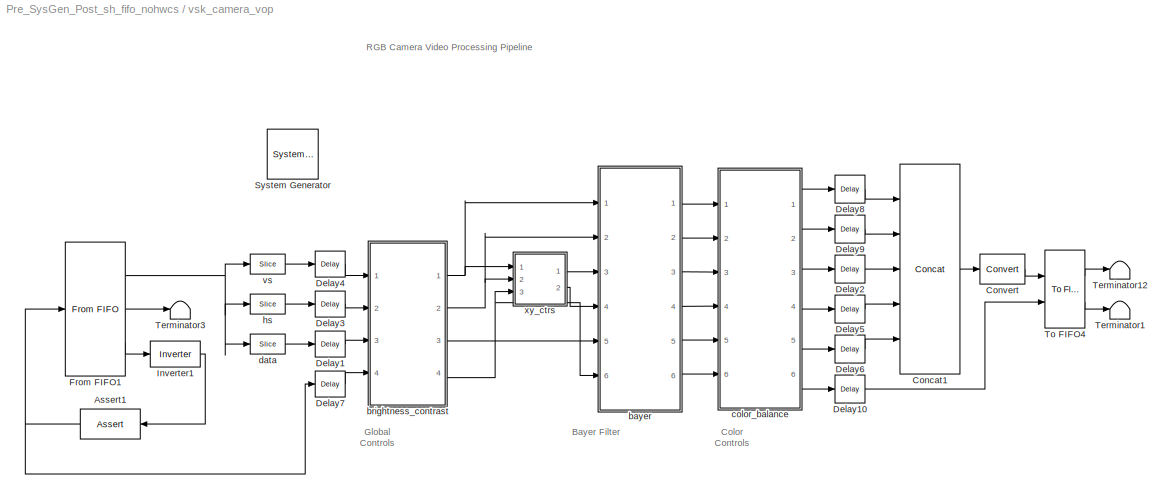
BLOCK [SubSystem] vsk_camera_vop
  Ports = []
  RequestExecContextInheritance = off
  SID = 121
BLOCK [Reference] vsk_camera_vop/ System Generator  REF=xbsIndex_r4/ System Generator
  AttributesFormatString = System\\nGenerator
  FunctionWithSeparateData = off
  Ports = []
  RTWMemSecDataConstants = Inherit from model
  RTWMemSecDataInternal = Inherit from model
  RTWMemSecDataParameters = Inherit from model
  RTWMemSecFuncExecute = Inherit from model
  RTWMemSecFuncInitTerm = Inherit from model
  SID = 122
  ShowPortLabels = FromPortIcon
  SourceBlock = xbsIndex_r4/ System Generator
  SourceType = Xilinx System Generator Block
  SystemSampleTime = -1
  Tag = genX
  UserData = DataTag1
  UserDataPersistent = on
  block_type = sysgen
  block_version = 9.2.01
  core_generation = According to Block Masks
  dbl_ovrd = According to Block Masks
  deprecated_control = off
  directory = ./netlist
  eval_field = 0
  has_advanced_control = 0
  incr_netlist = off
  infoedit = System Generator
  package = fg676
  part = xc3sd1800a
  run_coregen = off
  sg_icon_stat = 51,50,-1,-1,red,beige,0,07734
  sg_mask_display = fprintf('','COMMENT: begin icon graphics');\npatch([0 51 51 0 ],[0 0 50 50 ],[0.93 0.92 0.86]);\npatch([12 4 16 4 12 25 29 33 47 36 25 17 29 17 25 36 47 33 29 25 12 ],[5 13 25 37 45 45 41 45 45 34 45 37 25 13 5 16 5 5 9 5 5 ],[0.6 0.2 0.25]);\nplot([0 0 51 51 0 ],[0 50 50 0 0 ]);\nfprintf('','COMMENT: end icon graphics');\nfprintf('','COMMENT: begin icon text');\nfprintf('','COMMENT: end icon text...<+5ch>
  sggui_pos = -1,-1,-1,-1
  simulink_period = 1
  speed = -4
  synthesis_tool = XST
  sysclk_period = 20
  testbench = off
  trim_vbits = Everywhere in SubSystem
  xilinxfamily = spartan3adsp
BLOCK [Reference] vsk_camera_vop/Assert1  REF=xbsIndex_r4/Assert
  Ports = [1, 1]
  SID = 123
  SourceBlock = xbsIndex_r4/Assert
  SourceType = Xilinx Assert Block
  arith_type = Unsigned
  assert_rate = on
  assert_type = off
  bin_pt = 2
  block_type = assert
  block_version = VER_STRING_GOES_HERE
  has_advanced_control = 0
  infoedit = Asserts a user-defined sample rate and/or type on a signal.
  n_bits = 8
  output_port = on
  period = 1
  rate_source = Explicitly
  sg_icon_stat = 60,30,1,1,white,blue,0,f7732e52
  sggui_pos = 86,68,336,406
  type_source = Explicitly
BLOCK [Reference] vsk_camera_vop/Concat1  REF=xbsIndex_r4/Concat
  Ports = [5, 1]
  SID = 124
  SourceBlock = xbsIndex_r4/Concat
  SourceType = Xilinx Bus Concatenator Block
  block_type = concat
  block_version = 9.2.01
  dbl_ovrd = off
  has_advanced_control = 0
  infoedit = Concatenates two or more inputs.  Output will be cast to an unsigned value with the binary point at zero.
  num_inputs = 5
  sg_icon_stat = 60,210,5,1,white,blue,0,bb226ae1
  sg_mask_display = fprintf('','COMMENT: begin icon graphics');\npatch([0 60 60 0 ],[0 0 210 210 ],[0.77 0.82 0.91]);\npatch([14 4 18 4 14 30 34 38 55 42 29 20 35 20 29 42 55 38 34 30 14 ],[81 91 105 119 129 129 125 129 129 116 129 120 105 90 81 94 81 81 85 81 81 ],[0.98 0.96 0.92]);\nplot([0 0 60 60 0 ],[0 210 210 0 0 ]);\nfprintf('','COMMENT: end icon graphics');\nfprintf('','COMMENT: begin icon text');\ncolor('bla...<+117ch>
  sggui_pos = 20,20,336,162
BLOCK [Reference] vsk_camera_vop/Convert  REF=xbsIndex_r4/Convert
  Ports = [1, 1]
  SID = 125
  SourceBlock = xbsIndex_r4/Convert
  SourceType = Xilinx Type Converter Block
  arith_type = Unsigned
  bin_pt = 0
  block_type = convert
  block_version = 9.2.01
  dbl_ovrd = off
  has_advanced_control = 0
  infoedit = Hardware notes: rounding and saturating require hardware resources; truncating and wrapping do not.
  latency = 0
  n_bits = 32
  overflow = Wrap
  pipeline = off
  quantization = Truncate
  sg_icon_stat = 45,30,1,1,white,blue,0,0eb6e735
  sg_mask_display = fprintf('','COMMENT: begin icon graphics');\npatch([0 45 45 0 ],[0 0 30 30 ],[0.77 0.82 0.91]);\npatch([15 10 17 10 15 23 25 27 35 28 22 17 23 17 22 28 35 27 25 23 15 ],[3 8 15 22 27 27 25 27 27 20 26 21 15 9 4 10 3 3 5 3 3 ],[0.98 0.96 0.92]);\nplot([0 0 45 45 0 ],[0 30 30 0 0 ]);\nfprintf('','COMMENT: end icon graphics');\nfprintf('','COMMENT: begin icon text');\ncolor('black');port_label('outpu...<+54ch>  <repeated x15 — deduplicated; at blocks: Convert, Convert1, bool1, bool2, bool>
  sggui_pos = 20,20,470,336
  xl_area = [0,0,0,0,0,0,0]
  xl_use_area = off
BLOCK [Reference] vsk_camera_vop/Delay1  REF=xbsIndex_r4/Delay
  Ports = [1, 1]
  SID = 126
  SourceBlock = xbsIndex_r4/Delay
  SourceType = Xilinx Delay Block
  block_type = delay
  block_version = VER_STRING_GOES_HERE
  dbl_ovrd = off
  en = off
  has_advanced_control = 0
  infoedit = Delay line having  configurable length.<P><P>Hardware notes: A delay line is a chain, each link of which is an SRL16 followed by a flip-flop. If register retiming is enabled, the delay line is a chain of flip-flops.  <repeated x42 — deduplicated; at blocks: Delay1, Delay10, Delay2, Delay3, Delay4, Delay5, Delay6, Delay7, Delay8, Delay9, Delay11, Delay12, Delay13, Delay14, Delay15, Delay17, +8 more>
  latency = 20
  reg_retiming = on
  sg_icon_stat = 30,26,1,1,white,blue,0,f777ba04
  sg_mask_display = fprintf('','COMMENT: begin icon graphics');\npatch([0 60 60 0 ],[0 0 56 56 ],[0.77 0.82 0.91]);\npatch([15 6 19 6 15 30 34 38 54 41 29 20 32 20 29 41 54 38 34 30 15 ],[6 15 28 41 50 50 46 50 50 37 49 40 28 16 7 19 6 6 10 6 6 ],[0.98 0.96 0.92]);\nplot([0 0 60 60 0 ],[0 56 56 0 0 ]);\nfprintf('','COMMENT: end icon graphics');\nfprintf('','COMMENT: begin icon text');\ncolor('black');disp('z^{-20}','...<+56ch>  <repeated x4 — deduplicated; at blocks: Delay1, Delay3, Delay4, Delay7>
  sggui_pos = 20,20,348,294
  xl_area = [0, 0, 0, 0, 0, 0, 0]
  xl_use_area = off
BLOCK [Reference] vsk_camera_vop/Delay10  REF=xbsIndex_r4/Delay
  Ports = [1, 1]
  SID = 127
  SourceBlock = xbsIndex_r4/Delay
  SourceType = Xilinx Delay Block
  block_type = delay
  block_version = VER_STRING_GOES_HERE
  dbl_ovrd = off
  en = off
  has_advanced_control = 0
  latency = 1
  reg_retiming = on
  sg_icon_stat = 30,28,1,1,white,blue,0,fc531c0e
  sg_mask_display = fprintf('','COMMENT: begin icon graphics');\npatch([0 30 30 0 ],[0 0 28 28 ],[0.77 0.82 0.91]);\npatch([8 3 10 3 8 15 17 19 27 21 15 11 19 11 15 21 27 19 17 15 8 ],[3 8 15 22 27 27 25 27 27 21 27 23 15 7 3 9 3 3 5 3 3 ],[0.98 0.96 0.92]);\nplot([0 0 30 30 0 ],[0 28 28 0 0 ]);\nfprintf('','COMMENT: end icon graphics');\nfprintf('','COMMENT: begin icon text');\ncolor('black');disp('z^{-1}','texmode'...<+48ch>  <repeated x6 — deduplicated; at blocks: Delay10, Delay2, Delay5, Delay6, Delay8, Delay9>
  sggui_pos = 20,20,348,294
  xl_area = [0, 0, 0, 0, 0, 0, 0]
  xl_use_area = off
BLOCK [Reference] vsk_camera_vop/Delay2  REF=xbsIndex_r4/Delay
  Ports = [1, 1]
  SID = 128
  SourceBlock = xbsIndex_r4/Delay
  SourceType = Xilinx Delay Block
  block_type = delay
  block_version = VER_STRING_GOES_HERE
  dbl_ovrd = off
  en = off
  has_advanced_control = 0
  latency = 1
  reg_retiming = on
  sg_icon_stat = 30,28,1,1,white,blue,0,fc531c0e
  sggui_pos = 20,20,348,294
  xl_area = [0, 0, 0, 0, 0, 0, 0]
  xl_use_area = off
BLOCK [Reference] vsk_camera_vop/Delay3  REF=xbsIndex_r4/Delay
  Ports = [1, 1]
  SID = 129
  SourceBlock = xbsIndex_r4/Delay
  SourceType = Xilinx Delay Block
  block_type = delay
  block_version = VER_STRING_GOES_HERE
  dbl_ovrd = off
  en = off
  has_advanced_control = 0
  latency = 20
  reg_retiming = on
  sg_icon_stat = 30,26,1,1,white,blue,0,f777ba04
  sggui_pos = 20,20,348,294
  xl_area = [0, 0, 0, 0, 0, 0, 0]
  xl_use_area = off
BLOCK [Reference] vsk_camera_vop/Delay4  REF=xbsIndex_r4/Delay
  Ports = [1, 1]
  SID = 130
  SourceBlock = xbsIndex_r4/Delay
  SourceType = Xilinx Delay Block
  block_type = delay
  block_version = VER_STRING_GOES_HERE
  dbl_ovrd = off
  en = off
  has_advanced_control = 0
  latency = 20
  reg_retiming = on
  sg_icon_stat = 30,26,1,1,white,blue,0,f777ba04
  sggui_pos = 20,20,348,294
  xl_area = [0, 0, 0, 0, 0, 0, 0]
  xl_use_area = off
BLOCK [Reference] vsk_camera_vop/Delay5  REF=xbsIndex_r4/Delay
  Ports = [1, 1]
  SID = 131
  SourceBlock = xbsIndex_r4/Delay
  SourceType = Xilinx Delay Block
  block_type = delay
  block_version = VER_STRING_GOES_HERE
  dbl_ovrd = off
  en = off
  has_advanced_control = 0
  latency = 1
  reg_retiming = on
  sg_icon_stat = 30,28,1,1,white,blue,0,fc531c0e
  sggui_pos = 20,20,348,294
  xl_area = [0, 0, 0, 0, 0, 0, 0]
  xl_use_area = off
BLOCK [Reference] vsk_camera_vop/Delay6  REF=xbsIndex_r4/Delay
  Ports = [1, 1]
  SID = 132
  SourceBlock = xbsIndex_r4/Delay
  SourceType = Xilinx Delay Block
  block_type = delay
  block_version = VER_STRING_GOES_HERE
  dbl_ovrd = off
  en = off
  has_advanced_control = 0
  latency = 1
  reg_retiming = on
  sg_icon_stat = 30,28,1,1,white,blue,0,fc531c0e
  sggui_pos = 20,20,348,294
  xl_area = [0, 0, 0, 0, 0, 0, 0]
  xl_use_area = off
BLOCK [Reference] vsk_camera_vop/Delay7  REF=xbsIndex_r4/Delay
  Ports = [1, 1]
  SID = 133
  SourceBlock = xbsIndex_r4/Delay
  SourceType = Xilinx Delay Block
  block_type = delay
  block_version = VER_STRING_GOES_HERE
  dbl_ovrd = off
  en = off
  has_advanced_control = 0
  latency = 20
  reg_retiming = on
  sg_icon_stat = 30,26,1,1,white,blue,0,f777ba04
  sggui_pos = 20,20,348,294
  xl_area = [0, 0, 0, 0, 0, 0, 0]
  xl_use_area = off
BLOCK [Reference] vsk_camera_vop/Delay8  REF=xbsIndex_r4/Delay
  Ports = [1, 1]
  SID = 134
  SourceBlock = xbsIndex_r4/Delay
  SourceType = Xilinx Delay Block
  block_type = delay
  block_version = VER_STRING_GOES_HERE
  dbl_ovrd = off
  en = off
  has_advanced_control = 0
  latency = 1
  reg_retiming = on
  sg_icon_stat = 30,28,1,1,white,blue,0,fc531c0e
  sggui_pos = 20,20,348,294
  xl_area = [0, 0, 0, 0, 0, 0, 0]
  xl_use_area = off
BLOCK [Reference] vsk_camera_vop/Delay9  REF=xbsIndex_r4/Delay
  Ports = [1, 1]
  SID = 135
  SourceBlock = xbsIndex_r4/Delay
  SourceType = Xilinx Delay Block
  block_type = delay
  block_version = VER_STRING_GOES_HERE
  dbl_ovrd = off
  en = off
  has_advanced_control = 0
  latency = 1
  reg_retiming = on
  sg_icon_stat = 30,28,1,1,white,blue,0,fc531c0e
  sggui_pos = 20,20,348,294
  xl_area = [0, 0, 0, 0, 0, 0, 0]
  xl_use_area = off
BLOCK [Reference] vsk_camera_vop/From FIFO1  REF=xbsIndex_r4/From FIFO
  AttributesFormatString = << %<shared_memory_name> >>
  Ports = [1, 3]
  SID = 136
  SourceBlock = xbsIndex_r4/From FIFO
  SourceType = Xilinx Shared Memory Based From FIFO Block
  arith_type = Unsigned
  bin_pt = 0
  block_type = fromfifo
  block_version = VER_STRING_GOES_HERE
  dbl_ovrd = off
  depth = 64K
  has_advanced_control = 0
  has_arst = off
  infoedit = First-in-first-out (FIFO) block that reads FIFO data from shared memory storage.
  mem_type = Block RAM
  n_bits = 16
  ownership = Locally owned
  percent_nbits = 1
  sg_icon_stat = 60,134,1,3,white,blue,0,6a9babce
  sg_mask_display = fprintf('','COMMENT: begin icon graphics');\npatch([0 80 80 0 ],[0 0 90 90 ],[0.77 0.82 0.91]);\npatch([18 5 24 5 18 39 45 51 74 56 39 27 46 27 39 56 74 51 45 39 18 ],[14 27 46 65 78 78 72 78 78 60 77 65 46 27 15 32 14 14 20 14 14 ],[0.98 0.96 0.92]);\nplot([0 0 80 80 0 ],[0 90 90 0 0 ]);\nfprintf('','COMMENT: end icon graphics');\nfprintf('','COMMENT: begin icon text');\ncolor('black');port_label...<+201ch>
  sggui_pos = 148,379,356,304
  shared_memory_name = 'data_in'
  xl_area = [0,0,0,0,0,0,0]
  xl_use_area = off
BLOCK [Reference] vsk_camera_vop/Inverter1  REF=xbsIndex_r4/Inverter
  Ports = [1, 1]
  SID = 137
  SourceBlock = xbsIndex_r4/Inverter
  SourceType = Xilinx Inverter Block
  block_type = inv
  block_version = VER_STRING_GOES_HERE
  dbl_ovrd = off
  en = off
  has_advanced_control = 0
  infoedit = Bitwise logical negation (one's complement) operator.
  latency = 0
  sg_icon_stat = 50,26,1,1,white,blue,0,1ab4a85f
  sggui_pos = 20,20,348,248
  xl_area = [0,0,0,0,0,0,0]
  xl_use_area = off
BLOCK [Terminator] vsk_camera_vop/Terminator1
  SID = 138
BLOCK [Terminator] vsk_camera_vop/Terminator12
  SID = 139
BLOCK [Terminator] vsk_camera_vop/Terminator3
  SID = 140
BLOCK [Reference] vsk_camera_vop/To FIFO4  REF=xbsIndex_r4/To FIFO
  AttributesFormatString = << %<shared_memory_name> >>
  Ports = [2, 2]
  SID = 141
  SourceBlock = xbsIndex_r4/To FIFO
  SourceType = Xilinx Shared Memory Based To FIFO Block
  arith_type = Unsigned
  bin_pt = 0
  block_type = tofifo
  block_version = VER_STRING_GOES_HERE
  dbl_ovrd = off
  depth = 64K
  explicit_data_type = on
  has_advanced_control = 0
  has_arst = off
  infoedit = First-in-first-out (FIFO) block that writes FIFO data to shared memory storage.
  mem_type = Block RAM
  n_bits = 32
  ownership = Locally owned
  percent_nbits = 1
  sg_icon_stat = 40,78,2,2,white,blue,0,aeee8328
  sg_mask_display = fprintf('','COMMENT: begin icon graphics');\npatch([0 80 80 0 ],[0 0 91 91 ],[0.77 0.82 0.91]);\npatch([18 5 24 5 18 39 45 51 74 56 39 27 46 27 39 56 74 51 45 39 18 ],[14 27 46 65 78 78 72 78 78 60 77 65 46 27 15 32 14 14 20 14 14 ],[0.98 0.96 0.92]);\nplot([0 0 80 80 0 ],[0 91 91 0 0 ]);\nfprintf('','COMMENT: end icon graphics');\nfprintf('','COMMENT: begin icon text');\ncolor('black');port_label...<+202ch>
  sggui_pos = 122,83,356,304
  shared_memory_name = 'data_out'
  xl_area = [0,0,0,0,0,0,0]
  xl_use_area = off
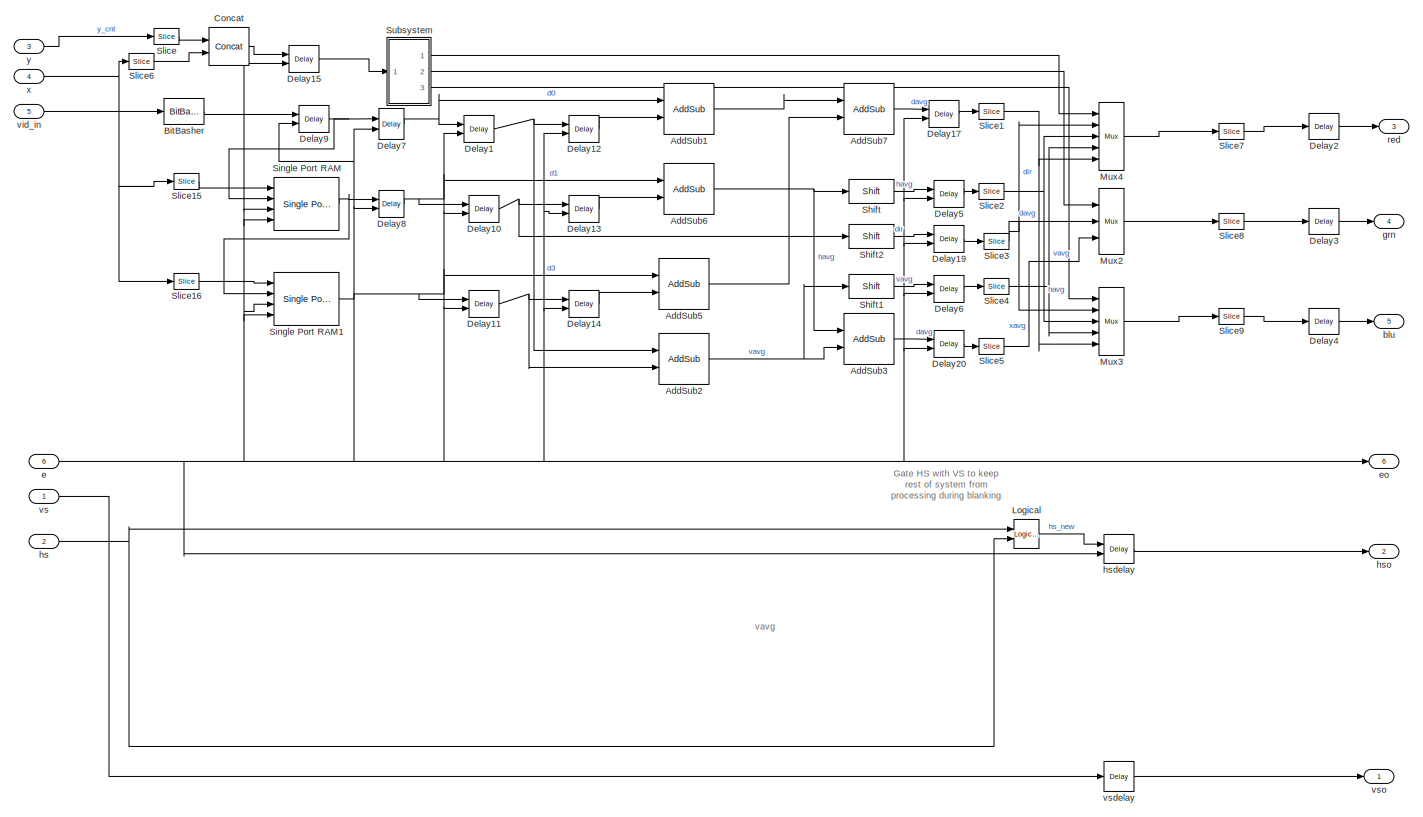
[diagram: vsk_camera_vop/bayer - part 1/1, most of the canvas]
BLOCK [SubSystem] vsk_camera_vop/bayer
  Ports = [6, 6]
  RequestExecContextInheritance = off
  SID = 142
BLOCK [Reference] vsk_camera_vop/bayer/AddSub1  REF=xbsIndex_r4/AddSub
  Ports = [2, 1]
  SID = 149
  SourceBlock = xbsIndex_r4/AddSub
  SourceType = Xilinx Adder/Subtractor Block
  arith_type = Unsigned
  bin_pt = 2
  block_type = addsub
  block_version = VER_STRING_GOES_HERE
  dbl_ovrd = off
  en = off
  has_advanced_control = 0
  latency = 0
  mode = Addition
  n_bits = 8
  overflow = Wrap
  pipelined = off
  precision = Full
  quantization = Truncate
  sg_icon_stat = 50,51,2,1,white,blue,0,84d1e665
  sg_mask_display = fprintf('','COMMENT: begin icon graphics');\npatch([0 60 60 0 ],[0 0 58 58 ],[0.77 0.82 0.91]);\npatch([15 5 19 5 15 30 34 38 54 41 29 20 34 20 29 41 54 38 34 30 15 ],[6 16 30 44 54 54 50 54 54 41 53 44 30 16 7 19 6 6 10 6 6 ],[0.98 0.96 0.92]);\nplot([0 0 60 60 0 ],[0 58 58 0 0 ]);\nfprintf('','COMMENT: end icon graphics');\nfprintf('','COMMENT: begin icon text');\ncolor('black');port_label('inpu...<+163ch>  <repeated x9 — deduplicated; at blocks: AddSub1, AddSub2, AddSub3, AddSub5, AddSub6, AddSub7>
  sggui_pos = -1,-1,-1,-1
  use_behavioral_HDL = off
  use_carryin = off
  use_carryout = off
  use_rpm = on
  xl_area = [0, 0, 0, 0, 0, 0, 0]
  xl_use_area = off
BLOCK [Reference] vsk_camera_vop/bayer/AddSub2  REF=xbsIndex_r4/AddSub
  Ports = [2, 1]
  SID = 150
  SourceBlock = xbsIndex_r4/AddSub
  SourceType = Xilinx Adder/Subtractor Block
  arith_type = Unsigned
  bin_pt = 2
  block_type = addsub
  block_version = VER_STRING_GOES_HERE
  dbl_ovrd = off
  en = off
  has_advanced_control = 0
  latency = 0
  mode = Addition
  n_bits = 8
  overflow = Wrap
  pipelined = off
  precision = Full
  quantization = Truncate
  sg_icon_stat = 50,51,2,1,white,blue,0,84d1e665
  sggui_pos = -1,-1,-1,-1
  use_behavioral_HDL = off
  use_carryin = off
  use_carryout = off
  use_rpm = on
  xl_area = [0, 0, 0, 0, 0, 0, 0]
  xl_use_area = off
BLOCK [Reference] vsk_camera_vop/bayer/AddSub3  REF=xbsIndex_r4/AddSub
  Ports = [2, 1]
  SID = 151
  SourceBlock = xbsIndex_r4/AddSub
  SourceType = Xilinx Adder/Subtractor Block
  arith_type = Unsigned
  bin_pt = 2
  block_type = addsub
  block_version = VER_STRING_GOES_HERE
  dbl_ovrd = off
  en = off
  has_advanced_control = 0
  latency = 0
  mode = Addition
  n_bits = 8
  overflow = Wrap
  pipelined = off
  precision = Full
  quantization = Truncate
  sg_icon_stat = 50,51,2,1,white,blue,0,84d1e665
  sggui_pos = -1,-1,-1,-1
  use_behavioral_HDL = off
  use_carryin = off
  use_carryout = off
  use_rpm = on
  xl_area = [0, 0, 0, 0, 0, 0, 0]
  xl_use_area = off
BLOCK [Reference] vsk_camera_vop/bayer/AddSub5  REF=xbsIndex_r4/AddSub
  Ports = [2, 1]
  SID = 152
  SourceBlock = xbsIndex_r4/AddSub
  SourceType = Xilinx Adder/Subtractor Block
  arith_type = Unsigned
  bin_pt = 2
  block_type = addsub
  block_version = VER_STRING_GOES_HERE
  dbl_ovrd = off
  en = off
  has_advanced_control = 0
  latency = 0
  mode = Addition
  n_bits = 8
  overflow = Wrap
  pipelined = off
  precision = Full
  quantization = Truncate
  sg_icon_stat = 50,51,2,1,white,blue,0,84d1e665
  sggui_pos = -1,-1,-1,-1
  use_behavioral_HDL = off
  use_carryin = off
  use_carryout = off
  use_rpm = on
  xl_area = [0, 0, 0, 0, 0, 0, 0]
  xl_use_area = off
BLOCK [Reference] vsk_camera_vop/bayer/AddSub6  REF=xbsIndex_r4/AddSub
  Ports = [2, 1]
  SID = 153
  SourceBlock = xbsIndex_r4/AddSub
  SourceType = Xilinx Adder/Subtractor Block
  arith_type = Unsigned
  bin_pt = 2
  block_type = addsub
  block_version = VER_STRING_GOES_HERE
  dbl_ovrd = off
  en = off
  has_advanced_control = 0
  latency = 0
  mode = Addition
  n_bits = 8
  overflow = Wrap
  pipelined = off
  precision = Full
  quantization = Truncate
  sg_icon_stat = 50,51,2,1,white,blue,0,84d1e665
  sggui_pos = -1,-1,-1,-1
  use_behavioral_HDL = off
  use_carryin = off
  use_carryout = off
  use_rpm = on
  xl_area = [0, 0, 0, 0, 0, 0, 0]
  xl_use_area = off
BLOCK [Reference] vsk_camera_vop/bayer/AddSub7  REF=xbsIndex_r4/AddSub
  Ports = [2, 1]
  SID = 154
  SourceBlock = xbsIndex_r4/AddSub
  SourceType = Xilinx Adder/Subtractor Block
  arith_type = Unsigned
  bin_pt = 2
  block_type = addsub
  block_version = VER_STRING_GOES_HERE
  dbl_ovrd = off
  en = off
  has_advanced_control = 0
  latency = 0
  mode = Addition
  n_bits = 8
  overflow = Wrap
  pipelined = off
  precision = Full
  quantization = Truncate
  sg_icon_stat = 50,51,2,1,white,blue,0,84d1e665
  sggui_pos = -1,-1,-1,-1
  use_behavioral_HDL = off
  use_carryin = off
  use_carryout = off
  use_rpm = on
  xl_area = [0, 0, 0, 0, 0, 0, 0]
  xl_use_area = off
BLOCK [Reference] vsk_camera_vop/bayer/BitBasher  REF=xbsIndex_r4/BitBasher
  Ports = [1, 1]
  SID = 155
  SourceBlock = xbsIndex_r4/BitBasher
  SourceType = Xilinx BitBasher Block
  arith_type1 = Unsigned
  arith_type2 = Unsigned
  arith_type3 = Unsigned
  arith_type4 = Unsigned
  bin_pt1 = 0
  bin_pt2 = 0
  bin_pt3 = 0
  bin_pt4 = 0
  bitexpr = <html><head><meta name=\"qrichtext\" content=\"1\" /><style type=\"text/css\">\np, li { white-space: pre-wrap; }\n</style></head><body style=\" font-family:'MS Shell Dlg 2'; font-size:8.25pt; font-weight:400; font-style:normal;\">\n<p style=\" margin-top:12px; margin-bottom:12px; margin-left:0px; margin-right:0px; -qt-block-indent:0; text-indent:0px; font-family:'MS Shell Dlg'; font-size:8pt;\">pa...<+30ch>
  block_type = bitbasher
  block_version = 9.2.01
  dbl_ovrd = off
  display_expr = off
  has_advanced_control = 0
  infoedit = Allows extraction, concatenation and augmentation of bits
  sg_icon_stat = 40,26,1,1,white,blue,0,dbc8175c
  sg_mask_display = fprintf('','COMMENT: begin icon graphics');\npatch([0 40 40 0 ],[0 0 26 26 ],[0.77 0.82 0.91]);\npatch([13 9 15 9 13 20 22 24 31 25 19 15 21 15 19 25 31 24 22 20 13 ],[3 7 13 19 23 23 21 23 23 17 23 19 13 7 3 9 3 3 5 3 3 ],[0.98 0.96 0.92]);\nplot([0 0 40 40 0 ],[0 26 26 0 0 ]);\nfprintf('','COMMENT: end icon graphics');\nfprintf('','COMMENT: begin icon text');\ncolor('black');port_label('input',1...<+94ch>
  sggui_pos = 20,20,336,352
  sr_1 = 1
  sr_2 = 2
  sr_3 = 3
  sr_4 = 4
BLOCK [Reference] vsk_camera_vop/bayer/Concat  REF=xbsIndex_r4/Concat
  Ports = [2, 1]
  SID = 156
  SourceBlock = xbsIndex_r4/Concat
  SourceType = Xilinx Bus Concatenator Block
  block_type = concat
  block_version = VER_STRING_GOES_HERE
  dbl_ovrd = off
  has_advanced_control = 0
  infoedit = Concatenates two or more inputs.  Output will be cast to an unsigned value with the binary point at zero.
  num_inputs = 2
  sg_icon_stat = 40,38,2,1,white,blue,0,59d62d82
  sg_mask_display = fprintf('','COMMENT: begin icon graphics');\npatch([0 60 60 0 ],[0 0 60 60 ],[0.77 0.82 0.91]);\npatch([14 4 18 4 14 30 34 38 55 42 29 20 35 20 29 42 55 38 34 30 14 ],[6 16 30 44 54 54 50 54 54 41 54 45 30 15 6 19 6 6 10 6 6 ],[0.98 0.96 0.92]);\nplot([0 0 60 60 0 ],[0 60 60 0 0 ]);\nfprintf('','COMMENT: end icon graphics');\nfprintf('','COMMENT: begin icon text');\ncolor('black');port_label('inpu...<+96ch>
  sggui_pos = -1,-1,-1,-1
BLOCK [Reference] vsk_camera_vop/bayer/Delay1  REF=xbsIndex_r4/Delay
  Ports = [2, 1]
  SID = 157
  SourceBlock = xbsIndex_r4/Delay
  SourceType = Xilinx Delay Block
  block_type = delay
  block_version = VER_STRING_GOES_HERE
  dbl_ovrd = off
  en = on
  has_advanced_control = 0
  latency = 1
  reg_retiming = on
  sg_icon_stat = 30,27,2,1,white,blue,0,9c7d2b66
  sg_mask_display = fprintf('','COMMENT: begin icon graphics');\npatch([0 30 30 0 ],[0 0 27 27 ],[0.77 0.82 0.91]);\npatch([7 3 9 3 7 14 16 18 26 20 14 10 16 10 14 20 26 18 16 14 7 ],[3 7 13 19 23 23 21 23 23 17 23 19 13 7 3 9 3 3 5 3 3 ],[0.98 0.96 0.92]);\nplot([0 0 30 30 0 ],[0 27 27 0 0 ]);\nfprintf('','COMMENT: end icon graphics');\nfprintf('','COMMENT: begin icon text');\ncolor('black');port_label('input',2,'en...<+91ch>  <repeated x13 — deduplicated; at blocks: Delay1, Delay10, Delay11, Delay12, Delay13, Delay14, Delay15, Delay17, Delay19, Delay20, Delay5, Delay6, Delay9>
  sggui_pos = 50,50,432,315
  xl_area = [0, 0, 0, 0, 0, 0, 0]
  xl_use_area = off
BLOCK [Reference] vsk_camera_vop/bayer/Delay10  REF=xbsIndex_r4/Delay
  Ports = [2, 1]
  SID = 158
  SourceBlock = xbsIndex_r4/Delay
  SourceType = Xilinx Delay Block
  block_type = delay
  block_version = VER_STRING_GOES_HERE
  dbl_ovrd = off
  en = on
  has_advanced_control = 0
  latency = 1
  reg_retiming = on
  sg_icon_stat = 30,27,2,1,white,blue,0,9c7d2b66
  sggui_pos = 50,50,432,315
  xl_area = [0, 0, 0, 0, 0, 0, 0]
  xl_use_area = off
BLOCK [Reference] vsk_camera_vop/bayer/Delay11  REF=xbsIndex_r4/Delay
  Ports = [2, 1]
  SID = 159
  SourceBlock = xbsIndex_r4/Delay
  SourceType = Xilinx Delay Block
  block_type = delay
  block_version = VER_STRING_GOES_HERE
  dbl_ovrd = off
  en = on
  has_advanced_control = 0
  latency = 1
  reg_retiming = on
  sg_icon_stat = 30,27,2,1,white,blue,0,9c7d2b66
  sggui_pos = 50,50,432,315
  xl_area = [0, 0, 0, 0, 0, 0, 0]
  xl_use_area = off
BLOCK [Reference] vsk_camera_vop/bayer/Delay12  REF=xbsIndex_r4/Delay
  Ports = [2, 1]
  SID = 160
  SourceBlock = xbsIndex_r4/Delay
  SourceType = Xilinx Delay Block
  block_type = delay
  block_version = VER_STRING_GOES_HERE
  dbl_ovrd = off
  en = on
  has_advanced_control = 0
  latency = 1
  reg_retiming = on
  sg_icon_stat = 30,27,2,1,white,blue,0,9c7d2b66
  sggui_pos = 50,50,432,315
  xl_area = [0, 0, 0, 0, 0, 0, 0]
  xl_use_area = off
BLOCK [Reference] vsk_camera_vop/bayer/Delay13  REF=xbsIndex_r4/Delay
  Ports = [2, 1]
  SID = 161
  SourceBlock = xbsIndex_r4/Delay
  SourceType = Xilinx Delay Block
  block_type = delay
  block_version = VER_STRING_GOES_HERE
  dbl_ovrd = off
  en = on
  has_advanced_control = 0
  latency = 1
  reg_retiming = on
  sg_icon_stat = 30,27,2,1,white,blue,0,9c7d2b66
  sggui_pos = 50,50,432,315
  xl_area = [0, 0, 0, 0, 0, 0, 0]
  xl_use_area = off
BLOCK [Reference] vsk_camera_vop/bayer/Delay14  REF=xbsIndex_r4/Delay
  Ports = [2, 1]
  SID = 162
  SourceBlock = xbsIndex_r4/Delay
  SourceType = Xilinx Delay Block
  block_type = delay
  block_version = VER_STRING_GOES_HERE
  dbl_ovrd = off
  en = on
  has_advanced_control = 0
  latency = 1
  reg_retiming = on
  sg_icon_stat = 30,27,2,1,white,blue,0,9c7d2b66
  sggui_pos = 50,50,432,315
  xl_area = [0, 0, 0, 0, 0, 0, 0]
  xl_use_area = off
BLOCK [Reference] vsk_camera_vop/bayer/Delay15  REF=xbsIndex_r4/Delay
  Ports = [2, 1]
  SID = 163
  SourceBlock = xbsIndex_r4/Delay
  SourceType = Xilinx Delay Block
  block_type = delay
  block_version = VER_STRING_GOES_HERE
  dbl_ovrd = off
  en = on
  has_advanced_control = 0
  latency = 1
  reg_retiming = on
  sg_icon_stat = 30,27,2,1,white,blue,0,9c7d2b66
  sggui_pos = 50,50,432,315
  xl_area = [0, 0, 0, 0, 0, 0, 0]
  xl_use_area = off
BLOCK [Reference] vsk_camera_vop/bayer/Delay17  REF=xbsIndex_r4/Delay
  Ports = [2, 1]
  SID = 164
  SourceBlock = xbsIndex_r4/Delay
  SourceType = Xilinx Delay Block
  block_type = delay
  block_version = VER_STRING_GOES_HERE
  dbl_ovrd = off
  en = on
  has_advanced_control = 0
  latency = 1
  reg_retiming = on
  sg_icon_stat = 30,27,2,1,white,blue,0,9c7d2b66
  sggui_pos = 50,50,432,315
  xl_area = [0, 0, 0, 0, 0, 0, 0]
  xl_use_area = off
BLOCK [Reference] vsk_camera_vop/bayer/Delay19  REF=xbsIndex_r4/Delay
  Ports = [2, 1]
  SID = 165
  SourceBlock = xbsIndex_r4/Delay
  SourceType = Xilinx Delay Block
  block_type = delay
  block_version = VER_STRING_GOES_HERE
  dbl_ovrd = off
  en = on
  has_advanced_control = 0
  latency = 1
  reg_retiming = on
  sg_icon_stat = 30,27,2,1,white,blue,0,9c7d2b66
  sggui_pos = 50,50,432,315
  xl_area = [0, 0, 0, 0, 0, 0, 0]
  xl_use_area = off
BLOCK [Reference] vsk_camera_vop/bayer/Delay2  REF=xbsIndex_r4/Delay
  Ports = [1, 1]
  SID = 166
  SourceBlock = xbsIndex_r4/Delay
  SourceType = Xilinx Delay Block
  block_type = delay
  block_version = VER_STRING_GOES_HERE
  dbl_ovrd = off
  en = off
  has_advanced_control = 0
  latency = 1
  reg_retiming = on
  sg_icon_stat = 30,26,1,1,white,blue,0,fc531c0e
  sg_mask_display = fprintf('','COMMENT: begin icon graphics');\npatch([0 60 60 0 ],[0 0 56 56 ],[0.77 0.82 0.91]);\npatch([15 6 19 6 15 30 34 38 54 41 29 20 32 20 29 41 54 38 34 30 15 ],[6 15 28 41 50 50 46 50 50 37 49 40 28 16 7 19 6 6 10 6 6 ],[0.98 0.96 0.92]);\nplot([0 0 60 60 0 ],[0 56 56 0 0 ]);\nfprintf('','COMMENT: end icon graphics');\nfprintf('','COMMENT: begin icon text');\ncolor('black');disp('z^{-1}','t...<+55ch>  <repeated x3 — deduplicated; at blocks: Delay2, Delay3, Delay4>
  sggui_pos = 50,50,432,315
  xl_area = [0, 0, 0, 0, 0, 0, 0]
  xl_use_area = off
BLOCK [Reference] vsk_camera_vop/bayer/Delay20  REF=xbsIndex_r4/Delay
  Ports = [2, 1]
  SID = 167
  SourceBlock = xbsIndex_r4/Delay
  SourceType = Xilinx Delay Block
  block_type = delay
  block_version = VER_STRING_GOES_HERE
  dbl_ovrd = off
  en = on
  has_advanced_control = 0
  latency = 1
  reg_retiming = on
  sg_icon_stat = 30,27,2,1,white,blue,0,9c7d2b66
  sggui_pos = 50,50,432,315
  xl_area = [0, 0, 0, 0, 0, 0, 0]
  xl_use_area = off
BLOCK [Reference] vsk_camera_vop/bayer/Delay3  REF=xbsIndex_r4/Delay
  Ports = [1, 1]
  SID = 168
  SourceBlock = xbsIndex_r4/Delay
  SourceType = Xilinx Delay Block
  block_type = delay
  block_version = VER_STRING_GOES_HERE
  dbl_ovrd = off
  en = off
  has_advanced_control = 0
  latency = 1
  reg_retiming = on
  sg_icon_stat = 30,26,1,1,white,blue,0,fc531c0e
  sggui_pos = 50,50,432,315
  xl_area = [0, 0, 0, 0, 0, 0, 0]
  xl_use_area = off
BLOCK [Reference] vsk_camera_vop/bayer/Delay4  REF=xbsIndex_r4/Delay
  Ports = [1, 1]
  SID = 169
  SourceBlock = xbsIndex_r4/Delay
  SourceType = Xilinx Delay Block
  block_type = delay
  block_version = VER_STRING_GOES_HERE
  dbl_ovrd = off
  en = off
  has_advanced_control = 0
  latency = 1
  reg_retiming = on
  sg_icon_stat = 30,26,1,1,white,blue,0,fc531c0e
  sggui_pos = 50,50,432,315
  xl_area = [0, 0, 0, 0, 0, 0, 0]
  xl_use_area = off
BLOCK [Reference] vsk_camera_vop/bayer/Delay5  REF=xbsIndex_r4/Delay
  Ports = [2, 1]
  SID = 170
  SourceBlock = xbsIndex_r4/Delay
  SourceType = Xilinx Delay Block
  block_type = delay
  block_version = VER_STRING_GOES_HERE
  dbl_ovrd = off
  en = on
  has_advanced_control = 0
  latency = 1
  reg_retiming = on
  sg_icon_stat = 30,27,2,1,white,blue,0,9c7d2b66
  sggui_pos = 50,50,432,315
  xl_area = [0, 0, 0, 0, 0, 0, 0]
  xl_use_area = off
BLOCK [Reference] vsk_camera_vop/bayer/Delay6  REF=xbsIndex_r4/Delay
  Ports = [2, 1]
  SID = 171
  SourceBlock = xbsIndex_r4/Delay
  SourceType = Xilinx Delay Block
  block_type = delay
  block_version = VER_STRING_GOES_HERE
  dbl_ovrd = off
  en = on
  has_advanced_control = 0
  latency = 1
  reg_retiming = on
  sg_icon_stat = 30,27,2,1,white,blue,0,9c7d2b66
  sggui_pos = 50,50,432,315
  xl_area = [0, 0, 0, 0, 0, 0, 0]
  xl_use_area = off
BLOCK [Reference] vsk_camera_vop/bayer/Delay7  REF=xbsIndex_r4/Delay
  Ports = [2, 1]
  SID = 172
  SourceBlock = xbsIndex_r4/Delay
  SourceType = Xilinx Delay Block
  block_type = delay
  block_version = VER_STRING_GOES_HERE
  dbl_ovrd = off
  en = on
  has_advanced_control = 0
  latency = 2
  reg_retiming = on
  sg_icon_stat = 25,31,2,1,white,blue,0,301e54e1
  sg_mask_display = fprintf('','COMMENT: begin icon graphics');\npatch([0 25 25 0 ],[0 0 31 31 ],[0.77 0.82 0.91]);\npatch([6 2 8 2 6 13 15 17 24 18 13 9 14 9 13 18 24 17 15 13 6 ],[6 10 16 22 26 26 24 26 26 20 25 21 16 11 7 12 6 6 8 6 6 ],[0.98 0.96 0.92]);\nplot([0 0 25 25 0 ],[0 31 31 0 0 ]);\nfprintf('','COMMENT: end icon graphics');\nfprintf('','COMMENT: begin icon text');\ncolor('black');port_label('input',2,'e...<+92ch>  <repeated x3 — deduplicated; at blocks: Delay7, tco>
  sggui_pos = 50,50,432,315
  xl_area = [0, 0, 0, 0, 0, 0, 0]
  xl_use_area = off
BLOCK [Reference] vsk_camera_vop/bayer/Delay8  REF=xbsIndex_r4/Delay
  Ports = [2, 1]
  SID = 173
  SourceBlock = xbsIndex_r4/Delay
  SourceType = Xilinx Delay Block
  block_type = delay
  block_version = VER_STRING_GOES_HERE
  dbl_ovrd = off
  en = on
  has_advanced_control = 0
  latency = 1
  reg_retiming = on
  sg_icon_stat = 25,27,2,1,white,blue,0,9c7d2b66
  sg_mask_display = fprintf('','COMMENT: begin icon graphics');\npatch([0 25 25 0 ],[0 0 27 27 ],[0.77 0.82 0.91]);\npatch([6 2 8 2 6 13 15 17 24 18 13 9 14 9 13 18 24 17 15 13 6 ],[4 8 14 20 24 24 22 24 24 18 23 19 14 9 5 10 4 4 6 4 4 ],[0.98 0.96 0.92]);\nplot([0 0 25 25 0 ],[0 27 27 0 0 ]);\nfprintf('','COMMENT: end icon graphics');\nfprintf('','COMMENT: begin icon text');\ncolor('black');port_label('input',2,'en'...<+90ch>
  sggui_pos = 50,50,432,315
  xl_area = [0, 0, 0, 0, 0, 0, 0]
  xl_use_area = off
BLOCK [Reference] vsk_camera_vop/bayer/Delay9  REF=xbsIndex_r4/Delay
  Ports = [2, 1]
  SID = 174
  SourceBlock = xbsIndex_r4/Delay
  SourceType = Xilinx Delay Block
  block_type = delay
  block_version = VER_STRING_GOES_HERE
  dbl_ovrd = off
  en = on
  has_advanced_control = 0
  latency = 2
  reg_retiming = on
  sg_icon_stat = 30,27,2,1,white,blue,0,301e54e1
  sggui_pos = 50,50,432,315
  xl_area = [0, 0, 0, 0, 0, 0, 0]
  xl_use_area = off
BLOCK [Reference] vsk_camera_vop/bayer/Logical  REF=xbsIndex_r4/Logical
  Ports = [2, 1]
  SID = 175
  SourceBlock = xbsIndex_r4/Logical
  SourceType = Xilinx Logical Block Block
  align_bp = on
  arith_type = Unsigned
  bin_pt = 0
  block_type = logical
  block_version = 9.2.01
  dbl_ovrd = off
  en = off
  has_advanced_control = 0
  inputs = 2
  latency = 0
  logical_function = AND
  n_bits = 16
  precision = Full
  sg_icon_stat = 25,29,2,1,white,blue,0,087b5522
  sg_mask_display = fprintf('','COMMENT: begin icon graphics');\npatch([0 55 55 0 ],[0 0 60 60 ],[0.77 0.82 0.91]);\npatch([13 4 17 4 13 28 32 36 52 40 28 19 32 19 28 40 52 36 32 28 13 ],[8 17 30 43 52 52 48 52 52 40 52 43 30 17 8 20 8 8 12 8 8 ],[0.98 0.96 0.92]);\nplot([0 0 55 55 0 ],[0 60 60 0 0 ]);\nfprintf('','COMMENT: end icon graphics');\nfprintf('','COMMENT: begin icon text');\ncolor('black');disp('\\newlinea...<+76ch>
  sggui_pos = 20,20,348,262
  xl_area = [0,0,0,0,0,0,0]
  xl_use_area = off
BLOCK [Reference] vsk_camera_vop/bayer/Mux2  REF=xbsIndex_r4/Mux
  Ports = [3, 1]
  SID = 176
  SourceBlock = xbsIndex_r4/Mux
  SourceType = Xilinx Bus Multiplexer Block
  arith_type = Signed  (2's comp)
  bin_pt = 2
  block_type = mux
  block_version = VER_STRING_GOES_HERE
  dbl_ovrd = off
  en = off
  has_advanced_control = 0
  inputs = 2
  latency = 0
  n_bits = 8
  overflow = Wrap
  precision = Full
  quantization = Truncate
  sg_icon_stat = 25,66,3,1,white,blue,3,613f58e1
  sg_mask_display = fprintf('','COMMENT: begin icon graphics');\npatch([0 45 45 0 ],[0 14.8571 89.1429 104 ],[0.77 0.82 0.91]);\npatch([10 3 14 3 10 22 25 28 41 31 21 14 25 14 21 31 41 28 25 22 10 ],[34 41 52 63 70 70 67 70 70 60 70 63 52 41 34 44 34 34 37 34 34 ],[0.98 0.96 0.92]);\nplot([0 45 45 0 0 ],[0 14.8571 89.1429 104 0 ]);\nfprintf('','COMMENT: end icon graphics');\nfprintf('','COMMENT: begin icon text');\nc...<+218ch>  <repeated x8 — deduplicated; at blocks: Mux2, Mux, Mux1>
  sggui_pos = -1,-1,-1,-1
  xl_area = [0, 0, 0, 0, 0, 0, 0]
  xl_use_area = off
BLOCK [Reference] vsk_camera_vop/bayer/Mux3  REF=xbsIndex_r4/Mux
  Ports = [5, 1]
  SID = 177
  SourceBlock = xbsIndex_r4/Mux
  SourceType = Xilinx Bus Multiplexer Block
  arith_type = Signed  (2's comp)
  bin_pt = 2
  block_type = mux
  block_version = VER_STRING_GOES_HERE
  dbl_ovrd = off
  en = off
  has_advanced_control = 0
  inputs = 4
  latency = 0
  n_bits = 8
  overflow = Wrap
  precision = Full
  quantization = Truncate
  sg_icon_stat = 25,68,5,1,white,blue,3,27e96ab5
  sg_mask_display = fprintf('','COMMENT: begin icon graphics');\npatch([0 45 45 0 ],[0 14.8571 89.1429 104 ],[0.77 0.82 0.91]);\npatch([10 3 14 3 10 22 25 28 41 31 21 14 25 14 21 31 41 28 25 22 10 ],[34 41 52 63 70 70 67 70 70 60 70 63 52 41 34 44 34 34 37 34 34 ],[0.98 0.96 0.92]);\nplot([0 45 45 0 0 ],[0 14.8571 89.1429 104 0 ]);\nfprintf('','COMMENT: end icon graphics');\nfprintf('','COMMENT: begin icon text');\nc...<+306ch>  <repeated x5 — deduplicated; at blocks: Mux3, Mux4, Mux7, Mux8, Mux9>
  sggui_pos = -1,-1,-1,-1
  xl_area = [0, 0, 0, 0, 0, 0, 0]
  xl_use_area = off
BLOCK [Reference] vsk_camera_vop/bayer/Mux4  REF=xbsIndex_r4/Mux
  Ports = [5, 1]
  SID = 178
  SourceBlock = xbsIndex_r4/Mux
  SourceType = Xilinx Bus Multiplexer Block
  arith_type = Signed  (2's comp)
  bin_pt = 2
  block_type = mux
  block_version = VER_STRING_GOES_HERE
  dbl_ovrd = off
  en = off
  has_advanced_control = 0
  inputs = 4
  latency = 0
  n_bits = 8
  overflow = Wrap
  precision = Full
  quantization = Truncate
  sg_icon_stat = 25,68,5,1,white,blue,3,27e96ab5
  sggui_pos = 20,20,348,306
  xl_area = [0, 0, 0, 0, 0, 0, 0]
  xl_use_area = off
BLOCK [Reference] vsk_camera_vop/bayer/Shift  REF=xbsIndex_r4/Shift
  Ports = [1, 1]
  SID = 179
  SourceBlock = xbsIndex_r4/Shift
  SourceType = Xilinx Binary Shift Operator Block
  arith_type = Unsigned
  bin_pt = 0
  block_type = shift
  block_version = VER_STRING_GOES_HERE
  dbl_ovrd = off
  en = off
  has_advanced_control = 0
  infoedit = Hardware notes: In hardware this block costs nothing if full output precision is used.
  latency = 0
  n_bits = 12
  overflow = Wrap
  precision = User Defined
  quantization = Truncate
  sg_icon_stat = 45,24,1,1,white,blue,0,2fc565b6
  sg_mask_display = fprintf('','COMMENT: begin icon graphics');\npatch([0 60 60 0 ],[0 0 56 56 ],[0.77 0.82 0.91]);\npatch([15 6 19 6 15 30 34 38 54 41 29 20 32 20 29 41 54 38 34 30 15 ],[6 15 28 41 50 50 46 50 50 37 49 40 28 16 7 19 6 6 10 6 6 ],[0.98 0.96 0.92]);\nplot([0 0 60 60 0 ],[0 56 56 0 0 ]);\nfprintf('','COMMENT: end icon graphics');\nfprintf('','COMMENT: begin icon text');\ncolor('black');disp('\\newline\...<+85ch>  <repeated x3 — deduplicated; at blocks: Shift, Shift1, Shift2>
  sggui_pos = 20,20,432,415
  shift_bits = 1
  shift_dir = Left
  xl_area = [0, 0, 0, 0, 0, 0, 0]
  xl_use_area = off
BLOCK [Reference] vsk_camera_vop/bayer/Shift1  REF=xbsIndex_r4/Shift
  Ports = [1, 1]
  SID = 180
  SourceBlock = xbsIndex_r4/Shift
  SourceType = Xilinx Binary Shift Operator Block
  arith_type = Unsigned
  bin_pt = 0
  block_type = shift
  block_version = VER_STRING_GOES_HERE
  dbl_ovrd = off
  en = off
  has_advanced_control = 0
  infoedit = Hardware notes: In hardware this block costs nothing if full output precision is used.
  latency = 0
  n_bits = 12
  overflow = Wrap
  precision = User Defined
  quantization = Truncate
  sg_icon_stat = 45,24,1,1,white,blue,0,2fc565b6
  sggui_pos = 20,20,432,415
  shift_bits = 1
  shift_dir = Left
  xl_area = [0, 0, 0, 0, 0, 0, 0]
  xl_use_area = off
BLOCK [Reference] vsk_camera_vop/bayer/Shift2  REF=xbsIndex_r4/Shift
  Ports = [1, 1]
  SID = 181
  SourceBlock = xbsIndex_r4/Shift
  SourceType = Xilinx Binary Shift Operator Block
  arith_type = Unsigned
  bin_pt = 0
  block_type = shift
  block_version = VER_STRING_GOES_HERE
  dbl_ovrd = off
  en = off
  has_advanced_control = 0
  infoedit = Hardware notes: In hardware this block costs nothing if full output precision is used.
  latency = 0
  n_bits = 12
  overflow = Wrap
  precision = User Defined
  quantization = Truncate
  sg_icon_stat = 45,24,1,1,white,blue,0,b8ff1049
  sggui_pos = 20,20,432,415
  shift_bits = 2
  shift_dir = Left
  xl_area = [0, 0, 0, 0, 0, 0, 0]
  xl_use_area = off
BLOCK [Reference] vsk_camera_vop/bayer/Single Port RAM  REF=xbsIndex_r4/Single Port RAM
  Ports = [4, 1]
  SID = 182
  SourceBlock = xbsIndex_r4/Single Port RAM
  SourceType = Xilinx Single Port Random Access Memory Block
  block_type = spram
  block_version = 8.2
  dbl_ovrd = off
  depth = 1024
  distributed_mem = Block RAM
  en = on
  has_advanced_control = 0
  initVector = 0
  init_reg = 0
  latency = 1
  optimize = Area
  rst = off
  sg_icon_stat = 65,53,4,1,white,blue,0,2e4df7f6
  sg_mask_display = fprintf('','COMMENT: begin icon graphics');\npatch([0 65 65 0 ],[0 0 53 53 ],[0.77 0.82 0.91]);\npatch([19 10 22 10 19 33 37 41 56 44 33 25 37 25 33 44 56 41 37 33 19 ],[6 15 27 39 48 48 44 48 48 36 47 39 27 15 7 18 6 6 10 6 6 ],[0.98 0.96 0.92]);\nplot([0 0 65 65 0 ],[0 53 53 0 0 ]);\nfprintf('','COMMENT: end icon graphics');\nfprintf('','COMMENT: begin icon text');\ncolor('black');port_label('in...<+237ch>
  sggui_pos = 226,240,432,397
  use_rpm = off
  write_mode = Read Before Write
  xl_area = [0, 0, 0, 0, 0, 0, 0]
  xl_use_area = off
BLOCK [Reference] vsk_camera_vop/bayer/Single Port RAM1  REF=xbsIndex_r4/Single Port RAM
  Ports = [4, 1]
  SID = 183
  SourceBlock = xbsIndex_r4/Single Port RAM
  SourceType = Xilinx Single Port Random Access Memory Block
  block_type = spram
  block_version = 8.2
  dbl_ovrd = off
  depth = 1024
  distributed_mem = Block RAM
  en = on
  has_advanced_control = 0
  initVector = 0
  init_reg = 0
  latency = 1
  optimize = Area
  rst = off
  sg_icon_stat = 65,53,4,1,white,blue,0,2e4df7f6
  sg_mask_display = fprintf('','COMMENT: begin icon graphics');\npatch([0 65 65 0 ],[0 0 53 53 ],[0.77 0.82 0.91]);\npatch([19 10 22 10 19 33 37 41 56 44 33 25 37 25 33 44 56 41 37 33 19 ],[6 15 27 39 48 48 44 48 48 36 47 39 27 15 7 18 6 6 10 6 6 ],[0.98 0.96 0.92]);\nplot([0 0 65 65 0 ],[0 53 53 0 0 ]);\nfprintf('','COMMENT: end icon graphics');\nfprintf('','COMMENT: begin icon text');\ncolor('black');port_label('in...<+237ch>
  sggui_pos = -1,-1,-1,-1
  use_rpm = off
  write_mode = Read Before Write
  xl_area = [0, 0, 0, 0, 0, 0, 0]
  xl_use_area = off
BLOCK [Reference] vsk_camera_vop/bayer/Slice  REF=xbsIndex_r4/Slice
  Ports = [1, 1]
  SID = 184
  SourceBlock = xbsIndex_r4/Slice
  SourceType = Xilinx Bit Slice Extractor Block
  base0 = LSB of Input
  base1 = MSB of Input
  bit0 = 0
  bit1 = 0
  block_type = slice
  block_version = VER_STRING_GOES_HERE
  boolean_output = off
  dbl_ovrd = off
  has_advanced_control = 0
  infoedit = Extracts a given range of bits from each input sample and presents it at the output.  The output type is ordinarily unsigned with binary point at zero, but can be Boolean when the slice is one bit wide.<P><P>Hardware notes: In hardware this block costs nothing.  <repeated x30 — deduplicated; at blocks: Slice, Slice1, Slice15, Slice16, Slice2, Slice3, Slice4, Slice5, Slice6, Slice7, Slice8, Slice9, Slice10, Slice11, Slice12, Slice13, +5 more>
  mode = Lower Bit Location + Width
  nbits = 1
  sg_icon_stat = 25,16,1,1,white,blue,0,fe24a11e
  sg_mask_display = fprintf('','COMMENT: begin icon graphics');\npatch([0 60 60 0 ],[0 0 30 30 ],[0.77 0.82 0.91]);\npatch([22 17 24 17 22 30 32 34 42 35 29 24 30 24 29 35 42 34 32 30 22 ],[3 8 15 22 27 27 25 27 27 20 26 21 15 9 4 10 3 3 5 3 3 ],[0.98 0.96 0.92]);\nplot([0 0 60 60 0 ],[0 30 30 0 0 ]);\nfprintf('','COMMENT: end icon graphics');\nfprintf('','COMMENT: begin icon text');\ncolor('black');port_label('outpu...<+55ch>  <repeated x30 — deduplicated; at blocks: Slice, Slice1, Slice15, Slice16, Slice2, Slice3, Slice4, Slice5, Slice6, Slice7, Slice8, Slice9, Slice10, Slice11, Slice12, Slice13, +5 more>
  sggui_pos = 139,126,516,446
BLOCK [Reference] vsk_camera_vop/bayer/Slice1  REF=xbsIndex_r4/Slice
  Ports = [1, 1]
  SID = 185
  SourceBlock = xbsIndex_r4/Slice
  SourceType = Xilinx Bit Slice Extractor Block
  base0 = LSB of Input
  base1 = MSB of Input
  bit0 = 2
  bit1 = 0
  block_type = slice
  block_version = VER_STRING_GOES_HERE
  boolean_output = off
  dbl_ovrd = off
  has_advanced_control = 0
  mode = Lower Bit Location + Width
  nbits = 10
  sg_icon_stat = 25,16,1,1,white,blue,0,fe24a11e
  sggui_pos = 139,126,516,446
BLOCK [Reference] vsk_camera_vop/bayer/Slice15  REF=xbsIndex_r4/Slice
  Ports = [1, 1]
  SID = 186
  SourceBlock = xbsIndex_r4/Slice
  SourceType = Xilinx Bit Slice Extractor Block
  base0 = LSB of Input
  base1 = MSB of Input
  bit0 = 0
  bit1 = 0
  block_type = slice
  block_version = VER_STRING_GOES_HERE
  boolean_output = off
  dbl_ovrd = off
  has_advanced_control = 0
  mode = Lower Bit Location + Width
  nbits = 10
  sg_icon_stat = 25,16,1,1,white,blue,0,fe24a11e
  sggui_pos = 139,126,516,446
BLOCK [Reference] vsk_camera_vop/bayer/Slice16  REF=xbsIndex_r4/Slice
  Ports = [1, 1]
  SID = 187
  SourceBlock = xbsIndex_r4/Slice
  SourceType = Xilinx Bit Slice Extractor Block
  base0 = LSB of Input
  base1 = MSB of Input
  bit0 = 0
  bit1 = 0
  block_type = slice
  block_version = VER_STRING_GOES_HERE
  boolean_output = off
  dbl_ovrd = off
  has_advanced_control = 0
  mode = Lower Bit Location + Width
  nbits = 10
  sg_icon_stat = 25,16,1,1,white,blue,0,fe24a11e
  sggui_pos = 139,126,516,446
BLOCK [Reference] vsk_camera_vop/bayer/Slice2  REF=xbsIndex_r4/Slice
  Ports = [1, 1]
  SID = 188
  SourceBlock = xbsIndex_r4/Slice
  SourceType = Xilinx Bit Slice Extractor Block
  base0 = LSB of Input
  base1 = MSB of Input
  bit0 = 2
  bit1 = 0
  block_type = slice
  block_version = VER_STRING_GOES_HERE
  boolean_output = off
  dbl_ovrd = off
  has_advanced_control = 0
  mode = Lower Bit Location + Width
  nbits = 10
  sg_icon_stat = 25,16,1,1,white,blue,0,fe24a11e
  sggui_pos = 139,126,516,446
BLOCK [Reference] vsk_camera_vop/bayer/Slice3  REF=xbsIndex_r4/Slice
  Ports = [1, 1]
  SID = 189
  SourceBlock = xbsIndex_r4/Slice
  SourceType = Xilinx Bit Slice Extractor Block
  base0 = LSB of Input
  base1 = MSB of Input
  bit0 = 2
  bit1 = 0
  block_type = slice
  block_version = VER_STRING_GOES_HERE
  boolean_output = off
  dbl_ovrd = off
  has_advanced_control = 0
  mode = Lower Bit Location + Width
  nbits = 10
  sg_icon_stat = 25,16,1,1,white,blue,0,fe24a11e
  sggui_pos = 139,126,516,446
BLOCK [Reference] vsk_camera_vop/bayer/Slice4  REF=xbsIndex_r4/Slice
  Ports = [1, 1]
  SID = 190
  SourceBlock = xbsIndex_r4/Slice
  SourceType = Xilinx Bit Slice Extractor Block
  base0 = LSB of Input
  base1 = MSB of Input
  bit0 = 2
  bit1 = 0
  block_type = slice
  block_version = VER_STRING_GOES_HERE
  boolean_output = off
  dbl_ovrd = off
  has_advanced_control = 0
  mode = Lower Bit Location + Width
  nbits = 10
  sg_icon_stat = 25,16,1,1,white,blue,0,fe24a11e
  sggui_pos = 139,126,516,446
BLOCK [Reference] vsk_camera_vop/bayer/Slice5  REF=xbsIndex_r4/Slice
  Ports = [1, 1]
  SID = 191
  SourceBlock = xbsIndex_r4/Slice
  SourceType = Xilinx Bit Slice Extractor Block
  base0 = LSB of Input
  base1 = MSB of Input
  bit0 = 2
  bit1 = 0
  block_type = slice
  block_version = VER_STRING_GOES_HERE
  boolean_output = off
  dbl_ovrd = off
  has_advanced_control = 0
  mode = Lower Bit Location + Width
  nbits = 10
  sg_icon_stat = 25,16,1,1,white,blue,0,fe24a11e
  sggui_pos = 139,126,516,446
BLOCK [Reference] vsk_camera_vop/bayer/Slice6  REF=xbsIndex_r4/Slice
  Ports = [1, 1]
  SID = 192
  SourceBlock = xbsIndex_r4/Slice
  SourceType = Xilinx Bit Slice Extractor Block
  base0 = LSB of Input
  base1 = MSB of Input
  bit0 = 0
  bit1 = 0
  block_type = slice
  block_version = VER_STRING_GOES_HERE
  boolean_output = off
  dbl_ovrd = off
  has_advanced_control = 0
  mode = Lower Bit Location + Width
  nbits = 1
  sg_icon_stat = 25,16,1,1,white,blue,0,fe24a11e
  sggui_pos = 139,126,516,433
BLOCK [Reference] vsk_camera_vop/bayer/Slice7  REF=xbsIndex_r4/Slice
  Ports = [1, 1]
  SID = 193
  SourceBlock = xbsIndex_r4/Slice
  SourceType = Xilinx Bit Slice Extractor Block
  base0 = LSB of Input
  base1 = MSB of Input
  bit0 = 2
  bit1 = 0
  block_type = slice
  block_version = VER_STRING_GOES_HERE
  boolean_output = off
  dbl_ovrd = off
  has_advanced_control = 0
  mode = Lower Bit Location + Width
  nbits = 8
  sg_icon_stat = 25,16,1,1,white,blue,0,fe24a11e
  sggui_pos = 139,126,516,446
BLOCK [Reference] vsk_camera_vop/bayer/Slice8  REF=xbsIndex_r4/Slice
  Ports = [1, 1]
  SID = 194
  SourceBlock = xbsIndex_r4/Slice
  SourceType = Xilinx Bit Slice Extractor Block
  base0 = LSB of Input
  base1 = MSB of Input
  bit0 = 2
  bit1 = 0
  block_type = slice
  block_version = VER_STRING_GOES_HERE
  boolean_output = off
  dbl_ovrd = off
  has_advanced_control = 0
  mode = Lower Bit Location + Width
  nbits = 8
  sg_icon_stat = 25,16,1,1,white,blue,0,fe24a11e
  sggui_pos = 139,126,516,446
BLOCK [Reference] vsk_camera_vop/bayer/Slice9  REF=xbsIndex_r4/Slice
  Ports = [1, 1]
  SID = 195
  SourceBlock = xbsIndex_r4/Slice
  SourceType = Xilinx Bit Slice Extractor Block
  base0 = LSB of Input
  base1 = MSB of Input
  bit0 = 2
  bit1 = 0
  block_type = slice
  block_version = VER_STRING_GOES_HERE
  boolean_output = off
  dbl_ovrd = off
  has_advanced_control = 0
  mode = Lower Bit Location + Width
  nbits = 8
  sg_icon_stat = 25,16,1,1,white,blue,0,fe24a11e
  sggui_pos = 139,126,516,446
BLOCK [SubSystem] vsk_camera_vop/bayer/Subsystem
  Ports = [1, 3]
  RequestExecContextInheritance = off
  SID = 196
BLOCK [Reference] vsk_camera_vop/bayer/Subsystem/Mux7  REF=xbsIndex_r4/Mux
  Ports = [5, 1]
  SID = 198
  SourceBlock = xbsIndex_r4/Mux
  SourceType = Xilinx Bus Multiplexer Block
  arith_type = Signed  (2's comp)
  bin_pt = 2
  block_type = mux
  block_version = VER_STRING_GOES_HERE
  dbl_ovrd = off
  en = off
  has_advanced_control = 0
  inputs = 4
  latency = 0
  n_bits = 8
  overflow = Wrap
  precision = Full
  quantization = Truncate
  sg_icon_stat = 25,110,5,1,white,blue,3,27e96ab5
  sggui_pos = -1,-1,-1,-1
  xl_area = [0, 0, 0, 0, 0, 0, 0]
  xl_use_area = off
BLOCK [Reference] vsk_camera_vop/bayer/Subsystem/Mux8  REF=xbsIndex_r4/Mux
  Ports = [5, 1]
  SID = 199
  SourceBlock = xbsIndex_r4/Mux
  SourceType = Xilinx Bus Multiplexer Block
  arith_type = Signed  (2's comp)
  bin_pt = 2
  block_type = mux
  block_version = VER_STRING_GOES_HERE
  dbl_ovrd = off
  en = off
  has_advanced_control = 0
  inputs = 4
  latency = 0
  n_bits = 8
  overflow = Wrap
  precision = Full
  quantization = Truncate
  sg_icon_stat = 25,110,5,1,white,blue,3,27e96ab5
  sggui_pos = -1,-1,-1,-1
  xl_area = [0, 0, 0, 0, 0, 0, 0]
  xl_use_area = off
BLOCK [Reference] vsk_camera_vop/bayer/Subsystem/Mux9  REF=xbsIndex_r4/Mux
  Ports = [5, 1]
  SID = 200
  SourceBlock = xbsIndex_r4/Mux
  SourceType = Xilinx Bus Multiplexer Block
  arith_type = Signed  (2's comp)
  bin_pt = 2
  block_type = mux
  block_version = VER_STRING_GOES_HERE
  dbl_ovrd = off
  en = off
  has_advanced_control = 0
  inputs = 4
  latency = 0
  n_bits = 8
  overflow = Wrap
  precision = Full
  quantization = Truncate
  sg_icon_stat = 25,110,5,1,white,blue,3,27e96ab5
  sggui_pos = -1,-1,-1,-1
  xl_area = [0, 0, 0, 0, 0, 0, 0]
  xl_use_area = off
BLOCK [Reference] vsk_camera_vop/bayer/Subsystem/Slice10  REF=xbsIndex_r4/Slice
  Ports = [1, 1]
  SID = 201
  SourceBlock = xbsIndex_r4/Slice
  SourceType = Xilinx Bit Slice Extractor Block
  base0 = LSB of Input
  base1 = MSB of Input
  bit0 = 14
  bit1 = 0
  block_type = slice
  block_version = VER_STRING_GOES_HERE
  boolean_output = off
  dbl_ovrd = off
  has_advanced_control = 0
  mode = Lower Bit Location + Width
  nbits = 2
  sg_icon_stat = 25,16,1,1,white,blue,0,fe24a11e
  sggui_pos = 139,126,516,446
BLOCK [Reference] vsk_camera_vop/bayer/Subsystem/Slice11  REF=xbsIndex_r4/Slice
  Ports = [1, 1]
  SID = 202
  SourceBlock = xbsIndex_r4/Slice
  SourceType = Xilinx Bit Slice Extractor Block
  base0 = LSB of Input
  base1 = MSB of Input
  bit0 = 6
  bit1 = 0
  block_type = slice
  block_version = VER_STRING_GOES_HERE
  boolean_output = off
  dbl_ovrd = off
  has_advanced_control = 0
  mode = Lower Bit Location + Width
  nbits = 2
  sg_icon_stat = 25,16,1,1,white,blue,0,fe24a11e
  sggui_pos = 139,126,516,446
BLOCK [Reference] vsk_camera_vop/bayer/Subsystem/Slice12  REF=xbsIndex_r4/Slice
  Ports = [1, 1]
  SID = 203
  SourceBlock = xbsIndex_r4/Slice
  SourceType = Xilinx Bit Slice Extractor Block
  base0 = LSB of Input
  base1 = MSB of Input
  bit0 = 4
  bit1 = 0
  block_type = slice
  block_version = VER_STRING_GOES_HERE
  boolean_output = off
  dbl_ovrd = off
  has_advanced_control = 0
  mode = Lower Bit Location + Width
  nbits = 2
  sg_icon_stat = 25,16,1,1,white,blue,0,fe24a11e
  sggui_pos = 139,126,516,446
BLOCK [Reference] vsk_camera_vop/bayer/Subsystem/Slice13  REF=xbsIndex_r4/Slice
  Ports = [1, 1]
  SID = 204
  SourceBlock = xbsIndex_r4/Slice
  SourceType = Xilinx Bit Slice Extractor Block
  base0 = LSB of Input
  base1 = MSB of Input
  bit0 = 2
  bit1 = 0
  block_type = slice
  block_version = VER_STRING_GOES_HERE
  boolean_output = off
  dbl_ovrd = off
  has_advanced_control = 0
  mode = Lower Bit Location + Width
  nbits = 2
  sg_icon_stat = 25,16,1,1,white,blue,0,fe24a11e
  sggui_pos = 139,126,516,446
BLOCK [Reference] vsk_camera_vop/bayer/Subsystem/Slice14  REF=xbsIndex_r4/Slice
  Ports = [1, 1]
  SID = 205
  SourceBlock = xbsIndex_r4/Slice
  SourceType = Xilinx Bit Slice Extractor Block
  base0 = LSB of Input
  base1 = MSB of Input
  bit0 = 0
  bit1 = 0
  block_type = slice
  block_version = VER_STRING_GOES_HERE
  boolean_output = off
  dbl_ovrd = off
  has_advanced_control = 0
  mode = Lower Bit Location + Width
  nbits = 2
  sg_icon_stat = 25,16,1,1,white,blue,0,fe24a11e
  sggui_pos = 139,126,516,446
BLOCK [Reference] vsk_camera_vop/bayer/Subsystem/Slice17  REF=xbsIndex_r4/Slice
  Ports = [1, 1]
  SID = 206
  SourceBlock = xbsIndex_r4/Slice
  SourceType = Xilinx Bit Slice Extractor Block
  base0 = LSB of Input
  base1 = MSB of Input
  bit0 = 0
  bit1 = 0
  block_type = slice
  block_version = VER_STRING_GOES_HERE
  boolean_output = off
  dbl_ovrd = off
  has_advanced_control = 0
  mode = Lower Bit Location + Width
  nbits = 1
  sg_icon_stat = 25,16,1,1,white,blue,0,fe24a11e
  sggui_pos = 139,126,516,446
BLOCK [Reference] vsk_camera_vop/bayer/Subsystem/Slice3  REF=xbsIndex_r4/Slice
  Ports = [1, 1]
  SID = 207
  SourceBlock = xbsIndex_r4/Slice
  SourceType = Xilinx Bit Slice Extractor Block
  base0 = LSB of Input
  base1 = MSB of Input
  bit0 = 20
  bit1 = 0
  block_type = slice
  block_version = VER_STRING_GOES_HERE
  boolean_output = off
  dbl_ovrd = off
  has_advanced_control = 0
  mode = Lower Bit Location + Width
  nbits = 2
  sg_icon_stat = 25,16,1,1,white,blue,0,fe24a11e
  sggui_pos = 139,126,516,446
BLOCK [Reference] vsk_camera_vop/bayer/Subsystem/Slice4  REF=xbsIndex_r4/Slice
  Ports = [1, 1]
  SID = 208
  SourceBlock = xbsIndex_r4/Slice
  SourceType = Xilinx Bit Slice Extractor Block
  base0 = LSB of Input
  base1 = MSB of Input
  bit0 = 18
  bit1 = 0
  block_type = slice
  block_version = VER_STRING_GOES_HERE
  boolean_output = off
  dbl_ovrd = off
  has_advanced_control = 0
  mode = Lower Bit Location + Width
  nbits = 2
  sg_icon_stat = 25,16,1,1,white,blue,0,fe24a11e
  sggui_pos = 139,126,516,446
BLOCK [Reference] vsk_camera_vop/bayer/Subsystem/Slice5  REF=xbsIndex_r4/Slice
  Ports = [1, 1]
  SID = 209
  SourceBlock = xbsIndex_r4/Slice
  SourceType = Xilinx Bit Slice Extractor Block
  base0 = LSB of Input
  base1 = MSB of Input
  bit0 = 16
  bit1 = 0
  block_type = slice
  block_version = VER_STRING_GOES_HERE
  boolean_output = off
  dbl_ovrd = off
  has_advanced_control = 0
  mode = Lower Bit Location + Width
  nbits = 2
  sg_icon_stat = 25,16,1,1,white,blue,0,fe24a11e
  sggui_pos = 139,126,516,446
BLOCK [Reference] vsk_camera_vop/bayer/Subsystem/Slice6  REF=xbsIndex_r4/Slice
  Ports = [1, 1]
  SID = 210
  SourceBlock = xbsIndex_r4/Slice
  SourceType = Xilinx Bit Slice Extractor Block
  base0 = LSB of Input
  base1 = MSB of Input
  bit0 = 22
  bit1 = 0
  block_type = slice
  block_version = VER_STRING_GOES_HERE
  boolean_output = off
  dbl_ovrd = off
  has_advanced_control = 0
  mode = Lower Bit Location + Width
  nbits = 2
  sg_icon_stat = 25,16,1,1,white,blue,0,fe24a11e
  sggui_pos = 139,126,516,446
BLOCK [Reference] vsk_camera_vop/bayer/Subsystem/Slice7  REF=xbsIndex_r4/Slice
  Ports = [1, 1]
  SID = 211
  SourceBlock = xbsIndex_r4/Slice
  SourceType = Xilinx Bit Slice Extractor Block
  base0 = LSB of Input
  base1 = MSB of Input
  bit0 = 12
  bit1 = 0
  block_type = slice
  block_version = VER_STRING_GOES_HERE
  boolean_output = off
  dbl_ovrd = off
  has_advanced_control = 0
  mode = Lower Bit Location + Width
  nbits = 2
  sg_icon_stat = 25,16,1,1,white,blue,0,fe24a11e
  sggui_pos = 139,126,516,446
BLOCK [Reference] vsk_camera_vop/bayer/Subsystem/Slice8  REF=xbsIndex_r4/Slice
  Ports = [1, 1]
  SID = 212
  SourceBlock = xbsIndex_r4/Slice
  SourceType = Xilinx Bit Slice Extractor Block
  base0 = LSB of Input
  base1 = MSB of Input
  bit0 = 10
  bit1 = 0
  block_type = slice
  block_version = VER_STRING_GOES_HERE
  boolean_output = off
  dbl_ovrd = off
  has_advanced_control = 0
  mode = Lower Bit Location + Width
  nbits = 2
  sg_icon_stat = 25,16,1,1,white,blue,0,fe24a11e
  sggui_pos = 139,126,516,446
BLOCK [Reference] vsk_camera_vop/bayer/Subsystem/Slice9  REF=xbsIndex_r4/Slice
  Ports = [1, 1]
  SID = 213
  SourceBlock = xbsIndex_r4/Slice
  SourceType = Xilinx Bit Slice Extractor Block
  base0 = LSB of Input
  base1 = MSB of Input
  bit0 = 8
  bit1 = 0
  block_type = slice
  block_version = VER_STRING_GOES_HERE
  boolean_output = off
  dbl_ovrd = off
  has_advanced_control = 0
  mode = Lower Bit Location + Width
  nbits = 2
  sg_icon_stat = 25,16,1,1,white,blue,0,fe24a11e
  sggui_pos = 139,126,516,446
BLOCK [Reference] vsk_camera_vop/bayer/Subsystem/bayer_ctrl  REF=xbsIndex_r4/Constant
  Ports = [0, 1]
  SID = 214
  SourceBlock = xbsIndex_r4/Constant
  SourceType = Xilinx Constant Block Block
  arith_type = Unsigned
  bin_pt = 0
  block_type = constant
  block_version = 9.2.01
  carry = CIN
  const = hex2dec('11B41E4');
  dbl_ovrd = off
  dsp48_infoedit = The use of this block for DSP48 instructions is deprecated.  Please use the Opmode block.
  equ = P=C
  explicit_period = off
  has_advanced_control = 0
  inp1 = P
  inp2 = PCIN>>17
  n_bits = 32
  opr = +
  opselect = C
  period = 1
  sg_icon_stat = 95,26,0,1,white,blue,0,7fb64863
  sg_mask_display = fprintf('','COMMENT: begin icon graphics');\npatch([0 55 55 0 ],[0 0 26 26 ],[0.77 0.82 0.91]);\npatch([20 16 22 16 20 27 29 31 38 32 26 22 28 22 26 32 38 31 29 27 20 ],[3 7 13 19 23 23 21 23 23 17 23 19 13 7 3 9 3 3 5 3 3 ],[0.98 0.96 0.92]);\nplot([0 0 55 55 0 ],[0 26 26 0 0 ]);\nfprintf('','COMMENT: end icon graphics');\nfprintf('','COMMENT: begin icon text');\ncolor('black');port_label('output...<+57ch>
  sggui_pos = 20,20,414,344
BLOCK [Outport] vsk_camera_vop/bayer/Subsystem/bsel
  IconDisplay = Port number
  Port = 3
  SID = 217
BLOCK [Outport] vsk_camera_vop/bayer/Subsystem/gsel
  IconDisplay = Port number
  Port = 2
  SID = 216
BLOCK [Inport] vsk_camera_vop/bayer/Subsystem/pos
  IconDisplay = Port number
  SID = 197
BLOCK [Outport] vsk_camera_vop/bayer/Subsystem/rsel
  IconDisplay = Port number
  SID = 215
BLOCK [Outport] vsk_camera_vop/bayer/blu
  IconDisplay = Port number
  Port = 5
  SID = 224
BLOCK [Inport] vsk_camera_vop/bayer/e
  IconDisplay = Port number
  Port = 6
  SID = 148
BLOCK [Outport] vsk_camera_vop/bayer/eo
  IconDisplay = Port number
  Port = 6
  SID = 225
BLOCK [Outport] vsk_camera_vop/bayer/grn
  IconDisplay = Port number
  Port = 4
  SID = 223
BLOCK [Inport] vsk_camera_vop/bayer/hs
  IconDisplay = Port number
  Port = 2
  SID = 144
BLOCK [Reference] vsk_camera_vop/bayer/hsdelay  REF=xbsIndex_r4/Delay
  Ports = [2, 1]
  SID = 218
  SourceBlock = xbsIndex_r4/Delay
  SourceType = Xilinx Delay Block
  block_type = delay
  block_version = VER_STRING_GOES_HERE
  dbl_ovrd = off
  en = on
  has_advanced_control = 0
  latency = 7
  reg_retiming = on
  sg_icon_stat = 30,29,2,1,white,blue,0,f3cb102b
  sg_mask_display = fprintf('','COMMENT: begin icon graphics');\npatch([0 30 30 0 ],[0 0 29 29 ],[0.77 0.82 0.91]);\npatch([7 2 9 2 7 15 17 19 27 21 15 10 17 10 15 21 27 19 17 15 7 ],[3 8 15 22 27 27 25 27 27 21 27 22 15 8 3 9 3 3 5 3 3 ],[0.98 0.96 0.92]);\nplot([0 0 30 30 0 ],[0 29 29 0 0 ]);\nfprintf('','COMMENT: end icon graphics');\nfprintf('','COMMENT: begin icon text');\ncolor('black');port_label('input',2,'en...<+91ch>  <repeated x5 — deduplicated; at blocks: hsdelay, vsdelay>
  sggui_pos = 50,50,432,315
  xl_area = [0, 0, 0, 0, 0, 0, 0]
  xl_use_area = off
BLOCK [Outport] vsk_camera_vop/bayer/hso
  IconDisplay = Port number
  Port = 2
  SID = 221
BLOCK [Outport] vsk_camera_vop/bayer/red
  IconDisplay = Port number
  Port = 3
  SID = 222
BLOCK [Inport] vsk_camera_vop/bayer/vid_in
  IconDisplay = Port number
  Port = 5
  SID = 147
BLOCK [Inport] vsk_camera_vop/bayer/vs
  IconDisplay = Port number
  SID = 143
BLOCK [Reference] vsk_camera_vop/bayer/vsdelay  REF=xbsIndex_r4/Delay
  Ports = [1, 1]
  SID = 219
  SourceBlock = xbsIndex_r4/Delay
  SourceType = Xilinx Delay Block
  block_type = delay
  block_version = VER_STRING_GOES_HERE
  dbl_ovrd = off
  en = off
  has_advanced_control = 0
  latency = 7
  reg_retiming = on
  sg_icon_stat = 30,30,1,1,white,blue,0,4c76d8d2
  sg_mask_display = fprintf('','COMMENT: begin icon graphics');\npatch([0 60 60 0 ],[0 0 56 56 ],[0.77 0.82 0.91]);\npatch([15 6 19 6 15 30 34 38 54 41 29 20 32 20 29 41 54 38 34 30 15 ],[6 15 28 41 50 50 46 50 50 37 49 40 28 16 7 19 6 6 10 6 6 ],[0.98 0.96 0.92]);\nplot([0 0 60 60 0 ],[0 56 56 0 0 ]);\nfprintf('','COMMENT: end icon graphics');\nfprintf('','COMMENT: begin icon text');\ncolor('black');disp('z^{-7}','t...<+55ch>
  sggui_pos = 50,50,432,315
  xl_area = [0, 0, 0, 0, 0, 0, 0]
  xl_use_area = off
BLOCK [Outport] vsk_camera_vop/bayer/vso
  IconDisplay = Port number
  SID = 220
BLOCK [Inport] vsk_camera_vop/bayer/x
  IconDisplay = Port number
  Port = 4
  SID = 146
BLOCK [Inport] vsk_camera_vop/bayer/y
  IconDisplay = Port number
  Port = 3
  SID = 145
BLOCK [SubSystem] vsk_camera_vop/brightness_contrast
  Ports = [4, 4]
  RequestExecContextInheritance = off
  SID = 228
BLOCK [Reference] vsk_camera_vop/brightness_contrast/AddSub2  REF=xbsIndex_r4/AddSub
  Ports = [2, 1]
  SID = 233
  SourceBlock = xbsIndex_r4/AddSub
  SourceType = Xilinx Adder/Subtractor Block
  arith_type = Unsigned
  bin_pt = 2
  block_type = addsub
  block_version = VER_STRING_GOES_HERE
  dbl_ovrd = off
  en = off
  has_advanced_control = 0
  latency = 0
  mode = Addition
  n_bits = 8
  overflow = Wrap
  pipelined = off
  precision = Full
  quantization = Truncate
  sg_icon_stat = 50,51,2,1,white,blue,0,84d1e665
  sggui_pos = 20,20,348,306
  use_behavioral_HDL = off
  use_carryin = off
  use_carryout = off
  use_rpm = on
  xl_area = [0, 0, 0, 0, 0, 0, 0]
  xl_use_area = off
BLOCK [Reference] vsk_camera_vop/brightness_contrast/Convert  REF=xbsIndex_r4/Convert
  Ports = [1, 1]
  SID = 234
  SourceBlock = xbsIndex_r4/Convert
  SourceType = Xilinx Type Converter Block
  arith_type = Unsigned
  bin_pt = 0
  block_type = convert
  block_version = 9.2.01
  dbl_ovrd = off
  has_advanced_control = 0
  infoedit = Hardware notes: rounding and saturating require hardware resources; truncating and wrapping do not.
  latency = 0
  n_bits = 8
  overflow = Saturate
  pipeline = off
  quantization = Round  (unbiased: +/- Inf)
  sg_icon_stat = 45,30,1,1,white,blue,0,0eb6e735
  sggui_pos = 449,54,470,336
  xl_area = [0,0,0,0,0,0,0]
  xl_use_area = off
BLOCK [Reference] vsk_camera_vop/brightness_contrast/Convert1  REF=xbsIndex_r4/Convert
  Ports = [1, 1]
  SID = 235
  SourceBlock = xbsIndex_r4/Convert
  SourceType = Xilinx Type Converter Block
  arith_type = Boolean
  bin_pt = 14
  block_type = convert
  block_version = 9.2.01
  dbl_ovrd = off
  has_advanced_control = 0
  infoedit = Hardware notes: rounding and saturating require hardware resources; truncating and wrapping do not.
  latency = 0
  n_bits = 16
  overflow = Wrap
  pipeline = off
  quantization = Truncate
  sg_icon_stat = 20,16,1,1,white,blue,0,0eb6e735
  sggui_pos = 20,20,470,336
  xl_area = [0,0,0,0,0,0,0]
  xl_use_area = off
BLOCK [Reference] vsk_camera_vop/brightness_contrast/Delay  REF=xbsIndex_r4/Delay
  Ports = [1, 1]
  SID = 236
  SourceBlock = xbsIndex_r4/Delay
  SourceType = Xilinx Delay Block
  block_type = delay
  block_version = 9.2.01
  dbl_ovrd = off
  en = off
  has_advanced_control = 0
  infoedit = Hardware notes: A delay line is a chain, each link of which is an SRL16 followed by a flip-flop.
  latency = 3
  reg_retiming = off
  sg_icon_stat = 35,26,1,1,white,blue,0,eabd56db
  sg_mask_display = fprintf('','COMMENT: begin icon graphics');\npatch([0 60 60 0 ],[0 0 56 56 ],[0.77 0.82 0.91]);\npatch([15 6 19 6 15 30 34 38 54 41 29 20 32 20 29 41 54 38 34 30 15 ],[6 15 28 41 50 50 46 50 50 37 49 40 28 16 7 19 6 6 10 6 6 ],[0.98 0.96 0.92]);\nplot([0 0 60 60 0 ],[0 56 56 0 0 ]);\nfprintf('','COMMENT: end icon graphics');\nfprintf('','COMMENT: begin icon text');\ncolor('black');disp('z^{-3}','t...<+55ch>  <repeated x4 — deduplicated; at blocks: Delay>
  sggui_pos = 20,20,348,254
  xl_area = [0,0,0,0,0,0,0]
  xl_use_area = off
BLOCK [Reference] vsk_camera_vop/brightness_contrast/Inverter2  REF=xbsIndex_r4/Inverter
  Ports = [1, 1]
  SID = 237
  SourceBlock = xbsIndex_r4/Inverter
  SourceType = Xilinx Inverter Block
  block_type = inv
  block_version = 9.2.01
  dbl_ovrd = off
  en = off
  has_advanced_control = 0
  infoedit = Bitwise logical negation (one's complement) operator.
  latency = 0
  sg_icon_stat = 20,24,1,1,white,blue,0,1ab4a85f
  sggui_pos = -1,-1,-1,-1
  xl_area = [0,0,0,0,0,0,0]
  xl_use_area = off
BLOCK [Reference] vsk_camera_vop/brightness_contrast/Mult  REF=xbsIndex_r4/Mult
  Ports = [2, 1]
  SID = 238
  SourceBlock = xbsIndex_r4/Mult
  SourceType = Xilinx Multiplier Block
  arith_type = Signed  (2's comp)
  bin_pt = 2
  block_type = mult
  block_version = VER_STRING_GOES_HERE
  dbl_ovrd = off
  en = off
  has_advanced_control = 0
  infoedit = Multiplies two values.<P><P>Hardware notes: To use the internal pipeline stage of the dedicated multiplier you must select 'Pipeline to Greatest Extent Possible'.
  latency = 3
  n_bits = 8
  opt = Speed
  optimum_pipeline = off
  overflow = Wrap
  pipeline = on
  placement_style = Rectangular shape
  precision = Full
  quantization = Truncate
  sg_icon_stat = 50,51,2,1,white,blue,0,9c0d74db
  sg_mask_display = fprintf('','COMMENT: begin icon graphics');\npatch([0 55 55 0 ],[0 0 55 55 ],[0.77 0.82 0.91]);\npatch([13 4 17 4 13 28 32 36 52 40 28 19 32 19 28 40 52 36 32 28 13 ],[6 15 28 41 50 50 46 50 50 38 50 41 28 15 6 18 6 6 10 6 6 ],[0.98 0.96 0.92]);\nplot([0 0 55 55 0 ],[0 55 55 0 0 ]);\nfprintf('','COMMENT: end icon graphics');\nfprintf('','COMMENT: begin icon text');\ncolor('black');port_label('inpu...<+212ch>  <repeated x4 — deduplicated; at blocks: Mult>
  sggui_pos = 20,20,435,531
  use_behavioral_HDL = off
  use_embedded = on
  use_rpm = on
  xl_area = [0, 0, 0, 0, 0, 0, 0]
  xl_use_area = off
BLOCK [Reference] vsk_camera_vop/brightness_contrast/Mux  REF=xbsIndex_r4/Mux
  Ports = [3, 1]
  SID = 239
  SourceBlock = xbsIndex_r4/Mux
  SourceType = Xilinx Bus Multiplexer Block
  arith_type = Unsigned
  bin_pt = 14
  block_type = mux
  block_version = 9.2.01
  dbl_ovrd = off
  en = off
  has_advanced_control = 0
  inputs = 2
  latency = 0
  n_bits = 16
  overflow = Wrap
  precision = Full
  quantization = Truncate
  sg_icon_stat = 25,96,3,1,white,blue,3,613f58e1
  sggui_pos = -1,-1,-1,-1
  xl_area = [0,0,0,0,0,0,0]
  xl_use_area = off
BLOCK [Reference] vsk_camera_vop/brightness_contrast/Mux1  REF=xbsIndex_r4/Mux
  Ports = [3, 1]
  SID = 240
  SourceBlock = xbsIndex_r4/Mux
  SourceType = Xilinx Bus Multiplexer Block
  arith_type = Unsigned
  bin_pt = 14
  block_type = mux
  block_version = 9.2.01
  dbl_ovrd = off
  en = off
  has_advanced_control = 0
  inputs = 2
  latency = 0
  n_bits = 16
  overflow = Wrap
  precision = Full
  quantization = Truncate
  sg_icon_stat = 25,96,3,1,white,blue,3,613f58e1
  sggui_pos = -1,-1,-1,-1
  xl_area = [0,0,0,0,0,0,0]
  xl_use_area = off
BLOCK [Reference] vsk_camera_vop/brightness_contrast/Register  REF=xbsIndex_r4/Register
  Ports = [2, 1]
  SID = 241
  SourceBlock = xbsIndex_r4/Register
  SourceType = Xilinx Register Block
  block_type = register
  block_version = 9.2.01
  dbl_ovrd = off
  en = on
  has_advanced_control = 0
  init = 0
  rst = off
  sg_icon_stat = 35,44,2,1,white,blue,0,cc3303a0
  sg_mask_display = fprintf('','COMMENT: begin icon graphics');\npatch([0 60 60 0 ],[0 0 56 56 ],[0.77 0.82 0.91]);\npatch([15 6 19 6 15 30 34 38 54 41 29 20 32 20 29 41 54 38 34 30 15 ],[6 15 28 41 50 50 46 50 50 37 49 40 28 16 7 19 6 6 10 6 6 ],[0.98 0.96 0.92]);\nplot([0 0 60 60 0 ],[0 56 56 0 0 ]);\nfprintf('','COMMENT: end icon graphics');\nfprintf('','COMMENT: begin icon text');\ncolor('black');port_label('inpu...<+192ch>  <repeated x6 — deduplicated; at blocks: Register, Register1, Register2>
  sggui_pos = 20,20,348,192
  xl_area = [0,0,0,0,0,0,0]
  xl_use_area = off
BLOCK [Reference] vsk_camera_vop/brightness_contrast/Register1  REF=xbsIndex_r4/Register
  Ports = [2, 1]
  SID = 242
  SourceBlock = xbsIndex_r4/Register
  SourceType = Xilinx Register Block
  block_type = register
  block_version = 9.2.01
  dbl_ovrd = off
  en = on
  has_advanced_control = 0
  init = 0
  rst = off
  sg_icon_stat = 35,44,2,1,white,blue,0,cc3303a0
  sggui_pos = 20,20,348,192
  xl_area = [0,0,0,0,0,0,0]
  xl_use_area = off
BLOCK [Reference] vsk_camera_vop/brightness_contrast/Register2  REF=xbsIndex_r4/Register
  Ports = [2, 1]
  SID = 243
  SourceBlock = xbsIndex_r4/Register
  SourceType = Xilinx Register Block
  block_type = register
  block_version = 9.2.01
  dbl_ovrd = off
  en = on
  has_advanced_control = 0
  init = 0
  rst = off
  sg_icon_stat = 35,44,2,1,white,blue,0,cc3303a0
  sggui_pos = 20,20,348,192
  xl_area = [0,0,0,0,0,0,0]
  xl_use_area = off
BLOCK [Reference] vsk_camera_vop/brightness_contrast/Slice  REF=xbsIndex_r4/Slice
  Ports = [1, 1]
  SID = 244
  SourceBlock = xbsIndex_r4/Slice
  SourceType = Xilinx Bit Slice Extractor Block
  base0 = LSB of Input
  base1 = MSB of Input
  bit0 = 0
  bit1 = 0
  block_type = slice
  block_version = 9.2.01
  boolean_output = off
  dbl_ovrd = off
  has_advanced_control = 0
  mode = Lower Bit Location + Width
  nbits = 1
  sg_icon_stat = 30,20,1,1,white,blue,0,fe24a11e
  sggui_pos = 20,20,460,380
BLOCK [Reference] vsk_camera_vop/brightness_contrast/Slice1  REF=xbsIndex_r4/Slice
  Ports = [1, 1]
  SID = 245
  SourceBlock = xbsIndex_r4/Slice
  SourceType = Xilinx Bit Slice Extractor Block
  base0 = LSB of Input
  base1 = MSB of Input
  bit0 = 1
  bit1 = 0
  block_type = slice
  block_version = 9.2.01
  boolean_output = off
  dbl_ovrd = off
  has_advanced_control = 0
  mode = Lower Bit Location + Width
  nbits = 1
  sg_icon_stat = 30,20,1,1,white,blue,0,fe24a11e
  sggui_pos = 20,20,460,380
BLOCK [Reference] vsk_camera_vop/brightness_contrast/bc_ctrl  REF=xbsIndex_r4/Constant
  Ports = [0, 1]
  SID = 246
  SourceBlock = xbsIndex_r4/Constant
  SourceType = Xilinx Constant Block Block
  arith_type = Unsigned
  bin_pt = 0
  block_type = constant
  block_version = 9.2.01
  carry = CIN
  const = 0
  dbl_ovrd = off
  dsp48_infoedit = The use of this block for DSP48 instructions is deprecated.  Please use the Opmode block.
  equ = P=C
  explicit_period = off
  has_advanced_control = 0
  inp1 = P
  inp2 = PCIN>>17
  n_bits = 9
  opr = +
  opselect = C
  period = 1
  sg_icon_stat = 55,26,0,1,white,blue,0,c7c04a0c
  sg_mask_display = fprintf('','COMMENT: begin icon graphics');\npatch([0 55 55 0 ],[0 0 26 26 ],[0.77 0.82 0.91]);\npatch([20 16 22 16 20 27 29 31 38 32 26 22 28 22 26 32 38 31 29 27 20 ],[3 7 13 19 23 23 21 23 23 17 23 19 13 7 3 9 3 3 5 3 3 ],[0.98 0.96 0.92]);\nplot([0 0 55 55 0 ],[0 26 26 0 0 ]);\nfprintf('','COMMENT: end icon graphics');\nfprintf('','COMMENT: begin icon text');\ncolor('black');port_label('output...<+50ch>  <repeated x9 — deduplicated; at blocks: bc_ctrl, brightness, contrast, Constant, b_bal, g_bal, r_bal, Constant6>
  sggui_pos = 20,20,414,344
BLOCK [Reference] vsk_camera_vop/brightness_contrast/brightness  REF=xbsIndex_r4/Constant
  Ports = [0, 1]
  SID = 247
  SourceBlock = xbsIndex_r4/Constant
  SourceType = Xilinx Constant Block Block
  arith_type = Signed (2's comp)
  bin_pt = 0
  block_type = constant
  block_version = 9.2.01
  carry = CIN
  const = 0
  dbl_ovrd = off
  dsp48_infoedit = The use of this block for DSP48 instructions is deprecated.  Please use the Opmode block.
  equ = P=C
  explicit_period = off
  has_advanced_control = 0
  inp1 = P
  inp2 = PCIN>>17
  n_bits = 9
  opr = +
  opselect = C
  period = 1
  sg_icon_stat = 55,26,0,1,white,blue,0,c7c04a0c
  sggui_pos = 20,20,414,344
BLOCK [Reference] vsk_camera_vop/brightness_contrast/contrast  REF=xbsIndex_r4/Constant
  Ports = [0, 1]
  SID = 248
  SourceBlock = xbsIndex_r4/Constant
  SourceType = Xilinx Constant Block Block
  arith_type = Unsigned
  bin_pt = 0
  block_type = constant
  block_version = 9.2.01
  carry = CIN
  const = 8
  dbl_ovrd = off
  dsp48_infoedit = The use of this block for DSP48 instructions is deprecated.  Please use the Opmode block.
  equ = P=C
  explicit_period = off
  has_advanced_control = 0
  inp1 = P
  inp2 = PCIN>>17
  n_bits = 7
  opr = +
  opselect = C
  period = 1
  sg_icon_stat = 55,26,0,1,white,blue,0,56172e47
  sggui_pos = 20,20,414,344
BLOCK [Inport] vsk_camera_vop/brightness_contrast/en
  IconDisplay = Port number
  Port = 4
  SID = 232
BLOCK [Outport] vsk_camera_vop/brightness_contrast/eno
  IconDisplay = Port number
  Port = 4
  SID = 254
BLOCK [Inport] vsk_camera_vop/brightness_contrast/hs
  IconDisplay = Port number
  Port = 2
  SID = 230
BLOCK [Reference] vsk_camera_vop/brightness_contrast/hsdelay  REF=xbsIndex_r4/Delay
  Ports = [2, 1]
  SID = 249
  SourceBlock = xbsIndex_r4/Delay
  SourceType = Xilinx Delay Block
  block_type = delay
  block_version = VER_STRING_GOES_HERE
  dbl_ovrd = off
  en = on
  has_advanced_control = 0
  latency = 3
  reg_retiming = on
  sg_icon_stat = 30,29,2,1,white,blue,0,a4288dd8
  sggui_pos = 50,50,432,315
  xl_area = [0, 0, 0, 0, 0, 0, 0]
  xl_use_area = off
BLOCK [Outport] vsk_camera_vop/brightness_contrast/hso
  IconDisplay = Port number
  Port = 2
  SID = 252
BLOCK [Inport] vsk_camera_vop/brightness_contrast/v_in
  IconDisplay = Port number
  Port = 3
  SID = 231
BLOCK [Outport] vsk_camera_vop/brightness_contrast/v_out
  IconDisplay = Port number
  Port = 3
  SID = 253
BLOCK [Inport] vsk_camera_vop/brightness_contrast/vs
  IconDisplay = Port number
  SID = 229
BLOCK [Reference] vsk_camera_vop/brightness_contrast/vsdelay  REF=xbsIndex_r4/Delay
  Ports = [2, 1]
  SID = 250
  SourceBlock = xbsIndex_r4/Delay
  SourceType = Xilinx Delay Block
  block_type = delay
  block_version = VER_STRING_GOES_HERE
  dbl_ovrd = off
  en = on
  has_advanced_control = 0
  latency = 3
  reg_retiming = on
  sg_icon_stat = 30,29,2,1,white,blue,0,a4288dd8
  sggui_pos = 50,50,432,315
  xl_area = [0, 0, 0, 0, 0, 0, 0]
  xl_use_area = off
BLOCK [Outport] vsk_camera_vop/brightness_contrast/vso
  IconDisplay = Port number
  SID = 251
BLOCK [SubSystem] vsk_camera_vop/color_balance
  Ports = [6, 6]
  RequestExecContextInheritance = off
  SID = 262
BLOCK [Reference] vsk_camera_vop/color_balance/Constant  REF=xbsIndex_r4/Constant
  Ports = [0, 1]
  SID = 269
  SourceBlock = xbsIndex_r4/Constant
  SourceType = Xilinx Constant Block Block
  arith_type = Unsigned
  bin_pt = 0
  block_type = constant
  block_version = 9.2.01
  carry = CIN
  const = 1
  dbl_ovrd = off
  dsp48_infoedit = The use of this block for DSP48 instructions is deprecated.  Please use the Opmode block.
  equ = P=C
  explicit_period = off
  has_advanced_control = 0
  inp1 = P
  inp2 = PCIN>>17
  n_bits = 1
  opr = +
  opselect = C
  period = 1
  sg_icon_stat = 55,26,0,1,white,blue,0,85613821
  sggui_pos = 20,20,414,344
BLOCK [Reference] vsk_camera_vop/color_balance/Convert1  REF=xbsIndex_r4/Convert
  Ports = [1, 1]
  SID = 270
  SourceBlock = xbsIndex_r4/Convert
  SourceType = Xilinx Type Converter Block
  arith_type = Boolean
  bin_pt = 14
  block_type = convert
  block_version = 9.2.01
  dbl_ovrd = off
  has_advanced_control = 0
  infoedit = Hardware notes: rounding and saturating require hardware resources; truncating and wrapping do not.
  latency = 0
  n_bits = 16
  overflow = Wrap
  pipeline = off
  quantization = Truncate
  sg_icon_stat = 20,16,1,1,white,blue,0,0eb6e735
  sggui_pos = 20,20,470,336
  xl_area = [0,0,0,0,0,0,0]
  xl_use_area = off
BLOCK [Reference] vsk_camera_vop/color_balance/Inverter1  REF=xbsIndex_r4/Inverter
  Ports = [1, 1]
  SID = 271
  SourceBlock = xbsIndex_r4/Inverter
  SourceType = Xilinx Inverter Block
  block_type = inv
  block_version = 9.2.01
  dbl_ovrd = off
  en = off
  has_advanced_control = 0
  infoedit = Bitwise logical negation (one's complement) operator.
  latency = 0
  sg_icon_stat = 20,24,1,1,white,blue,0,1ab4a85f
  sggui_pos = -1,-1,-1,-1
  xl_area = [0,0,0,0,0,0,0]
  xl_use_area = off
BLOCK [Reference] vsk_camera_vop/color_balance/Inverter2  REF=xbsIndex_r4/Inverter
  Ports = [1, 1]
  SID = 272
  SourceBlock = xbsIndex_r4/Inverter
  SourceType = Xilinx Inverter Block
  block_type = inv
  block_version = 9.2.01
  dbl_ovrd = off
  en = off
  has_advanced_control = 0
  infoedit = Bitwise logical negation (one's complement) operator.
  latency = 0
  sg_icon_stat = 20,24,1,1,white,blue,0,1ab4a85f
  sggui_pos = -1,-1,-1,-1
  xl_area = [0,0,0,0,0,0,0]
  xl_use_area = off
BLOCK [Inport] vsk_camera_vop/color_balance/b
  IconDisplay = Port number
  Port = 5
  SID = 267
BLOCK [SubSystem] vsk_camera_vop/color_balance/bal_b
  Ports = [3, 1]
  RequestExecContextInheritance = off
  SID = 273
BLOCK [Reference] vsk_camera_vop/color_balance/bal_b/Convert  REF=xbsIndex_r4/Convert
  Ports = [1, 1]
  SID = 277
  SourceBlock = xbsIndex_r4/Convert
  SourceType = Xilinx Type Converter Block
  arith_type = Unsigned
  bin_pt = 0
  block_type = convert
  block_version = 9.2.01
  dbl_ovrd = off
  has_advanced_control = 0
  infoedit = Hardware notes: rounding and saturating require hardware resources; truncating and wrapping do not.
  latency = 0
  n_bits = 8
  overflow = Saturate
  pipeline = off
  quantization = Round  (unbiased: +/- Inf)
  sg_icon_stat = 45,30,1,1,white,blue,0,0eb6e735
  sggui_pos = 20,20,470,336
  xl_area = [0,0,0,0,0,0,0]
  xl_use_area = off
BLOCK [Reference] vsk_camera_vop/color_balance/bal_b/Delay  REF=xbsIndex_r4/Delay
  Ports = [1, 1]
  SID = 278
  SourceBlock = xbsIndex_r4/Delay
  SourceType = Xilinx Delay Block
  block_type = delay
  block_version = 9.2.01
  dbl_ovrd = off
  en = off
  has_advanced_control = 0
  infoedit = Hardware notes: A delay line is a chain, each link of which is an SRL16 followed by a flip-flop.
  latency = 3
  reg_retiming = off
  sg_icon_stat = 30,20,1,1,white,blue,0,eabd56db
  sggui_pos = 20,20,348,254
  xl_area = [0,0,0,0,0,0,0]
  xl_use_area = off
BLOCK [Reference] vsk_camera_vop/color_balance/bal_b/Mult  REF=xbsIndex_r4/Mult
  Ports = [2, 1]
  SID = 279
  SourceBlock = xbsIndex_r4/Mult
  SourceType = Xilinx Multiplier Block
  arith_type = Signed  (2's comp)
  bin_pt = 2
  block_type = mult
  block_version = VER_STRING_GOES_HERE
  dbl_ovrd = off
  en = off
  has_advanced_control = 0
  infoedit = Multiplies two values.<P><P>Hardware notes: To use the internal pipeline stage of the dedicated multiplier you must select 'Pipeline to Greatest Extent Possible'.
  latency = 3
  n_bits = 8
  opt = Speed
  optimum_pipeline = off
  overflow = Wrap
  pipeline = on
  placement_style = Rectangular shape
  precision = Full
  quantization = Truncate
  sg_icon_stat = 50,51,2,1,white,blue,0,9c0d74db
  sggui_pos = 20,20,435,531
  use_behavioral_HDL = off
  use_embedded = on
  use_rpm = on
  xl_area = [0, 0, 0, 0, 0, 0, 0]
  xl_use_area = off
BLOCK [Reference] vsk_camera_vop/color_balance/bal_b/Mux  REF=xbsIndex_r4/Mux
  Ports = [3, 1]
  SID = 280
  SourceBlock = xbsIndex_r4/Mux
  SourceType = Xilinx Bus Multiplexer Block
  arith_type = Unsigned
  bin_pt = 14
  block_type = mux
  block_version = 9.2.01
  dbl_ovrd = off
  en = off
  has_advanced_control = 0
  inputs = 2
  latency = 0
  n_bits = 16
  overflow = Wrap
  precision = Full
  quantization = Truncate
  sg_icon_stat = 25,64,3,1,white,blue,3,613f58e1
  sggui_pos = -1,-1,-1,-1
  xl_area = [0,0,0,0,0,0,0]
  xl_use_area = off
BLOCK [Reference] vsk_camera_vop/color_balance/bal_b/Register  REF=xbsIndex_r4/Register
  Ports = [2, 1]
  SID = 281
  SourceBlock = xbsIndex_r4/Register
  SourceType = Xilinx Register Block
  block_type = register
  block_version = 9.2.01
  dbl_ovrd = off
  en = on
  has_advanced_control = 0
  init = 0
  rst = off
  sg_icon_stat = 35,40,2,1,white,blue,0,cc3303a0
  sggui_pos = 20,20,348,192
  xl_area = [0,0,0,0,0,0,0]
  xl_use_area = off
BLOCK [Reference] vsk_camera_vop/color_balance/bal_b/b_bal  REF=xbsIndex_r4/Constant
  Ports = [0, 1]
  SID = 282
  SourceBlock = xbsIndex_r4/Constant
  SourceType = Xilinx Constant Block Block
  arith_type = Unsigned
  bin_pt = 7
  block_type = constant
  block_version = 9.2.01
  carry = CIN
  const = 1
  dbl_ovrd = off
  dsp48_infoedit = The use of this block for DSP48 instructions is deprecated.  Please use the Opmode block.
  equ = P=C
  explicit_period = off
  has_advanced_control = 0
  inp1 = P
  inp2 = PCIN>>17
  n_bits = 8
  opr = +
  opselect = C
  period = 1
  sg_icon_stat = 55,26,0,1,white,blue,0,85613821
  sggui_pos = 20,20,414,344
BLOCK [Inport] vsk_camera_vop/color_balance/bal_b/bypass
  IconDisplay = Port number
  Port = 2
  SID = 275
BLOCK [Inport] vsk_camera_vop/color_balance/bal_b/update
  IconDisplay = Port number
  Port = 3
  SID = 276
BLOCK [Inport] vsk_camera_vop/color_balance/bal_b/v_in
  IconDisplay = Port number
  SID = 274
BLOCK [Outport] vsk_camera_vop/color_balance/bal_b/v_out
  IconDisplay = Port number
  SID = 283
BLOCK [SubSystem] vsk_camera_vop/color_balance/bal_g
  Ports = [3, 1]
  RequestExecContextInheritance = off
  SID = 285
BLOCK [Reference] vsk_camera_vop/color_balance/bal_g/Convert  REF=xbsIndex_r4/Convert
  Ports = [1, 1]
  SID = 289
  SourceBlock = xbsIndex_r4/Convert
  SourceType = Xilinx Type Converter Block
  arith_type = Unsigned
  bin_pt = 0
  block_type = convert
  block_version = 9.2.01
  dbl_ovrd = off
  has_advanced_control = 0
  infoedit = Hardware notes: rounding and saturating require hardware resources; truncating and wrapping do not.
  latency = 0
  n_bits = 8
  overflow = Saturate
  pipeline = off
  quantization = Round  (unbiased: +/- Inf)
  sg_icon_stat = 45,30,1,1,white,blue,0,0eb6e735
  sggui_pos = 20,20,470,336
  xl_area = [0,0,0,0,0,0,0]
  xl_use_area = off
BLOCK [Reference] vsk_camera_vop/color_balance/bal_g/Delay  REF=xbsIndex_r4/Delay
  Ports = [1, 1]
  SID = 290
  SourceBlock = xbsIndex_r4/Delay
  SourceType = Xilinx Delay Block
  block_type = delay
  block_version = 9.2.01
  dbl_ovrd = off
  en = off
  has_advanced_control = 0
  infoedit = Hardware notes: A delay line is a chain, each link of which is an SRL16 followed by a flip-flop.
  latency = 3
  reg_retiming = off
  sg_icon_stat = 30,20,1,1,white,blue,0,eabd56db
  sggui_pos = 20,20,348,254
  xl_area = [0,0,0,0,0,0,0]
  xl_use_area = off
BLOCK [Reference] vsk_camera_vop/color_balance/bal_g/Mult  REF=xbsIndex_r4/Mult
  Ports = [2, 1]
  SID = 291
  SourceBlock = xbsIndex_r4/Mult
  SourceType = Xilinx Multiplier Block
  arith_type = Signed  (2's comp)
  bin_pt = 2
  block_type = mult
  block_version = VER_STRING_GOES_HERE
  dbl_ovrd = off
  en = off
  has_advanced_control = 0
  infoedit = Multiplies two values.<P><P>Hardware notes: To use the internal pipeline stage of the dedicated multiplier you must select 'Pipeline to Greatest Extent Possible'.
  latency = 3
  n_bits = 8
  opt = Speed
  optimum_pipeline = off
  overflow = Wrap
  pipeline = on
  placement_style = Rectangular shape
  precision = Full
  quantization = Truncate
  sg_icon_stat = 50,51,2,1,white,blue,0,9c0d74db
  sggui_pos = 20,20,435,531
  use_behavioral_HDL = off
  use_embedded = on
  use_rpm = on
  xl_area = [0, 0, 0, 0, 0, 0, 0]
  xl_use_area = off
BLOCK [Reference] vsk_camera_vop/color_balance/bal_g/Mux  REF=xbsIndex_r4/Mux
  Ports = [3, 1]
  SID = 292
  SourceBlock = xbsIndex_r4/Mux
  SourceType = Xilinx Bus Multiplexer Block
  arith_type = Unsigned
  bin_pt = 14
  block_type = mux
  block_version = 9.2.01
  dbl_ovrd = off
  en = off
  has_advanced_control = 0
  inputs = 2
  latency = 0
  n_bits = 16
  overflow = Wrap
  precision = Full
  quantization = Truncate
  sg_icon_stat = 25,64,3,1,white,blue,3,613f58e1
  sggui_pos = -1,-1,-1,-1
  xl_area = [0,0,0,0,0,0,0]
  xl_use_area = off
BLOCK [Reference] vsk_camera_vop/color_balance/bal_g/Register  REF=xbsIndex_r4/Register
  Ports = [2, 1]
  SID = 293
  SourceBlock = xbsIndex_r4/Register
  SourceType = Xilinx Register Block
  block_type = register
  block_version = 9.2.01
  dbl_ovrd = off
  en = on
  has_advanced_control = 0
  init = 0
  rst = off
  sg_icon_stat = 35,40,2,1,white,blue,0,cc3303a0
  sggui_pos = 20,20,348,192
  xl_area = [0,0,0,0,0,0,0]
  xl_use_area = off
BLOCK [Inport] vsk_camera_vop/color_balance/bal_g/bypass
  IconDisplay = Port number
  Port = 2
  SID = 287
BLOCK [Reference] vsk_camera_vop/color_balance/bal_g/g_bal  REF=xbsIndex_r4/Constant
  Ports = [0, 1]
  SID = 294
  SourceBlock = xbsIndex_r4/Constant
  SourceType = Xilinx Constant Block Block
  arith_type = Unsigned
  bin_pt = 7
  block_type = constant
  block_version = 9.2.01
  carry = CIN
  const = 1
  dbl_ovrd = off
  dsp48_infoedit = The use of this block for DSP48 instructions is deprecated.  Please use the Opmode block.
  equ = P=C
  explicit_period = off
  has_advanced_control = 0
  inp1 = P
  inp2 = PCIN>>17
  n_bits = 8
  opr = +
  opselect = C
  period = 1
  sg_icon_stat = 55,26,0,1,white,blue,0,85613821
  sggui_pos = 20,20,414,344
BLOCK [Inport] vsk_camera_vop/color_balance/bal_g/update
  IconDisplay = Port number
  Port = 3
  SID = 288
BLOCK [Inport] vsk_camera_vop/color_balance/bal_g/v_in
  IconDisplay = Port number
  SID = 286
BLOCK [Outport] vsk_camera_vop/color_balance/bal_g/v_out
  IconDisplay = Port number
  SID = 295
BLOCK [SubSystem] vsk_camera_vop/color_balance/bal_r
  Ports = [3, 1]
  RequestExecContextInheritance = off
  SID = 297
BLOCK [Reference] vsk_camera_vop/color_balance/bal_r/Convert  REF=xbsIndex_r4/Convert
  Ports = [1, 1]
  SID = 301
  SourceBlock = xbsIndex_r4/Convert
  SourceType = Xilinx Type Converter Block
  arith_type = Unsigned
  bin_pt = 0
  block_type = convert
  block_version = 9.2.01
  dbl_ovrd = off
  has_advanced_control = 0
  infoedit = Hardware notes: rounding and saturating require hardware resources; truncating and wrapping do not.
  latency = 0
  n_bits = 8
  overflow = Saturate
  pipeline = off
  quantization = Round  (unbiased: +/- Inf)
  sg_icon_stat = 45,30,1,1,white,blue,0,0eb6e735
  sggui_pos = 20,20,470,336
  xl_area = [0,0,0,0,0,0,0]
  xl_use_area = off
BLOCK [Reference] vsk_camera_vop/color_balance/bal_r/Delay  REF=xbsIndex_r4/Delay
  Ports = [1, 1]
  SID = 302
  SourceBlock = xbsIndex_r4/Delay
  SourceType = Xilinx Delay Block
  block_type = delay
  block_version = 9.2.01
  dbl_ovrd = off
  en = off
  has_advanced_control = 0
  infoedit = Hardware notes: A delay line is a chain, each link of which is an SRL16 followed by a flip-flop.
  latency = 3
  reg_retiming = off
  sg_icon_stat = 30,20,1,1,white,blue,0,eabd56db
  sggui_pos = 20,20,348,254
  xl_area = [0,0,0,0,0,0,0]
  xl_use_area = off
BLOCK [Reference] vsk_camera_vop/color_balance/bal_r/Mult  REF=xbsIndex_r4/Mult
  Ports = [2, 1]
  SID = 303
  SourceBlock = xbsIndex_r4/Mult
  SourceType = Xilinx Multiplier Block
  arith_type = Signed  (2's comp)
  bin_pt = 2
  block_type = mult
  block_version = VER_STRING_GOES_HERE
  dbl_ovrd = off
  en = off
  has_advanced_control = 0
  infoedit = Multiplies two values.<P><P>Hardware notes: To use the internal pipeline stage of the dedicated multiplier you must select 'Pipeline to Greatest Extent Possible'.
  latency = 3
  n_bits = 8
  opt = Speed
  optimum_pipeline = off
  overflow = Wrap
  pipeline = on
  placement_style = Rectangular shape
  precision = Full
  quantization = Truncate
  sg_icon_stat = 50,51,2,1,white,blue,0,9c0d74db
  sggui_pos = 20,20,435,531
  use_behavioral_HDL = off
  use_embedded = on
  use_rpm = on
  xl_area = [0, 0, 0, 0, 0, 0, 0]
  xl_use_area = off
BLOCK [Reference] vsk_camera_vop/color_balance/bal_r/Mux  REF=xbsIndex_r4/Mux
  Ports = [3, 1]
  SID = 304
  SourceBlock = xbsIndex_r4/Mux
  SourceType = Xilinx Bus Multiplexer Block
  arith_type = Unsigned
  bin_pt = 14
  block_type = mux
  block_version = 9.2.01
  dbl_ovrd = off
  en = off
  has_advanced_control = 0
  inputs = 2
  latency = 0
  n_bits = 16
  overflow = Wrap
  precision = Full
  quantization = Truncate
  sg_icon_stat = 25,64,3,1,white,blue,3,613f58e1
  sggui_pos = -1,-1,-1,-1
  xl_area = [0,0,0,0,0,0,0]
  xl_use_area = off
BLOCK [Reference] vsk_camera_vop/color_balance/bal_r/Register  REF=xbsIndex_r4/Register
  Ports = [2, 1]
  SID = 305
  SourceBlock = xbsIndex_r4/Register
  SourceType = Xilinx Register Block
  block_type = register
  block_version = 9.2.01
  dbl_ovrd = off
  en = on
  has_advanced_control = 0
  init = 0
  rst = off
  sg_icon_stat = 35,40,2,1,white,blue,0,cc3303a0
  sggui_pos = 20,20,348,192
  xl_area = [0,0,0,0,0,0,0]
  xl_use_area = off
BLOCK [Inport] vsk_camera_vop/color_balance/bal_r/bypass
  IconDisplay = Port number
  Port = 2
  SID = 299
BLOCK [Reference] vsk_camera_vop/color_balance/bal_r/r_bal  REF=xbsIndex_r4/Constant
  Ports = [0, 1]
  SID = 306
  SourceBlock = xbsIndex_r4/Constant
  SourceType = Xilinx Constant Block Block
  arith_type = Unsigned
  bin_pt = 7
  block_type = constant
  block_version = 9.2.01
  carry = CIN
  const = 1
  dbl_ovrd = off
  dsp48_infoedit = The use of this block for DSP48 instructions is deprecated.  Please use the Opmode block.
  equ = P=C
  explicit_period = off
  has_advanced_control = 0
  inp1 = P
  inp2 = PCIN>>17
  n_bits = 8
  opr = +
  opselect = C
  period = 1
  sg_icon_stat = 55,26,0,1,white,blue,0,85613821
  sggui_pos = 20,20,414,344
BLOCK [Inport] vsk_camera_vop/color_balance/bal_r/update
  IconDisplay = Port number
  Port = 3
  SID = 300
BLOCK [Inport] vsk_camera_vop/color_balance/bal_r/v_in
  IconDisplay = Port number
  SID = 298
BLOCK [Outport] vsk_camera_vop/color_balance/bal_r/v_out
  IconDisplay = Port number
  SID = 307
BLOCK [Outport] vsk_camera_vop/color_balance/bo
  IconDisplay = Port number
  Port = 5
  SID = 315
BLOCK [Inport] vsk_camera_vop/color_balance/e
  IconDisplay = Port number
  Port = 6
  SID = 268
BLOCK [Outport] vsk_camera_vop/color_balance/eo
  IconDisplay = Port number
  Port = 6
  SID = 316
BLOCK [Inport] vsk_camera_vop/color_balance/g
  IconDisplay = Port number
  Port = 4
  SID = 266
BLOCK [Outport] vsk_camera_vop/color_balance/go
  IconDisplay = Port number
  Port = 4
  SID = 314
BLOCK [Inport] vsk_camera_vop/color_balance/hs
  IconDisplay = Port number
  Port = 2
  SID = 264
BLOCK [Reference] vsk_camera_vop/color_balance/hsdelay  REF=xbsIndex_r4/Delay
  Ports = [2, 1]
  SID = 309
  SourceBlock = xbsIndex_r4/Delay
  SourceType = Xilinx Delay Block
  block_type = delay
  block_version = VER_STRING_GOES_HERE
  dbl_ovrd = off
  en = on
  has_advanced_control = 0
  latency = 3
  reg_retiming = on
  sg_icon_stat = 30,29,2,1,white,blue,0,a4288dd8
  sggui_pos = 50,50,432,315
  xl_area = [0, 0, 0, 0, 0, 0, 0]
  xl_use_area = off
BLOCK [Outport] vsk_camera_vop/color_balance/hso
  IconDisplay = Port number
  Port = 2
  SID = 312
BLOCK [Inport] vsk_camera_vop/color_balance/r
  IconDisplay = Port number
  Port = 3
  SID = 265
BLOCK [Outport] vsk_camera_vop/color_balance/ro
  IconDisplay = Port number
  Port = 3
  SID = 313
BLOCK [Inport] vsk_camera_vop/color_balance/vs
  IconDisplay = Port number
  SID = 263
BLOCK [Reference] vsk_camera_vop/color_balance/vsdelay  REF=xbsIndex_r4/Delay
  Ports = [2, 1]
  SID = 310
  SourceBlock = xbsIndex_r4/Delay
  SourceType = Xilinx Delay Block
  block_type = delay
  block_version = VER_STRING_GOES_HERE
  dbl_ovrd = off
  en = on
  has_advanced_control = 0
  latency = 3
  reg_retiming = on
  sg_icon_stat = 30,29,2,1,white,blue,0,a4288dd8
  sggui_pos = 50,50,432,315
  xl_area = [0, 0, 0, 0, 0, 0, 0]
  xl_use_area = off
BLOCK [Outport] vsk_camera_vop/color_balance/vso
  IconDisplay = Port number
  SID = 311
BLOCK [Reference] vsk_camera_vop/data  REF=xbsIndex_r4/Slice
  Ports = [1, 1]
  SID = 319
  SourceBlock = xbsIndex_r4/Slice
  SourceType = Xilinx Bit Slice Extractor Block
  base0 = LSB of Input
  base1 = MSB of Input
  bit0 = 2
  bit1 = 0
  block_type = slice
  block_version = 9.2.01
  boolean_output = off
  dbl_ovrd = off
  has_advanced_control = 0
  mode = Lower Bit Location + Width
  nbits = 8
  sg_icon_stat = 35,20,1,1,white,blue,0,fe24a11e
  sggui_pos = 20,20,460,380
BLOCK [Reference] vsk_camera_vop/hs  REF=xbsIndex_r4/Slice
  Ports = [1, 1]
  SID = 320
  SourceBlock = xbsIndex_r4/Slice
  SourceType = Xilinx Bit Slice Extractor Block
  base0 = LSB of Input
  base1 = MSB of Input
  bit0 = 1
  bit1 = 0
  block_type = slice
  block_version = 9.2.01
  boolean_output = off
  dbl_ovrd = off
  has_advanced_control = 0
  mode = Lower Bit Location + Width
  nbits = 1
  sg_icon_stat = 35,20,1,1,white,blue,0,fe24a11e
  sggui_pos = 20,20,460,380
BLOCK [Reference] vsk_camera_vop/vs  REF=xbsIndex_r4/Slice
  Ports = [1, 1]
  SID = 321
  SourceBlock = xbsIndex_r4/Slice
  SourceType = Xilinx Bit Slice Extractor Block
  base0 = LSB of Input
  base1 = MSB of Input
  bit0 = 0
  bit1 = 0
  block_type = slice
  block_version = 9.2.01
  boolean_output = off
  dbl_ovrd = off
  has_advanced_control = 0
  mode = Lower Bit Location + Width
  nbits = 1
  sg_icon_stat = 35,20,1,1,white,blue,0,fe24a11e
  sggui_pos = 20,20,460,380
BLOCK [SubSystem] vsk_camera_vop/xy_ctrs
  Ports = [3, 2]
  RequestExecContextInheritance = off
  SID = 322
BLOCK [Reference] vsk_camera_vop/xy_ctrs/Delay20  REF=xbsIndex_r4/Delay
  Ports = [2, 1]
  SID = 326
  SourceBlock = xbsIndex_r4/Delay
  SourceType = Xilinx Delay Block
  block_type = delay
  block_version = VER_STRING_GOES_HERE
  dbl_ovrd = off
  en = on
  has_advanced_control = 0
  latency = 1
  reg_retiming = on
  sg_icon_stat = 35,42,2,1,white,blue,0,9c7d2b66
  sg_mask_display = fprintf('','COMMENT: begin icon graphics');\npatch([0 60 60 0 ],[0 0 56 56 ],[0.77 0.82 0.91]);\npatch([15 6 19 6 15 30 34 38 54 41 29 20 32 20 29 41 54 38 34 30 15 ],[6 15 28 41 50 50 46 50 50 37 49 40 28 16 7 19 6 6 10 6 6 ],[0.98 0.96 0.92]);\nplot([0 0 60 60 0 ],[0 56 56 0 0 ]);\nfprintf('','COMMENT: end icon graphics');\nfprintf('','COMMENT: begin icon text');\ncolor('black');port_label('inpu...<+99ch>
  sggui_pos = 50,50,432,315
  xl_area = [0, 0, 0, 0, 0, 0, 0]
  xl_use_area = off
BLOCK [Reference] vsk_camera_vop/xy_ctrs/Delay21  REF=xbsIndex_r4/Delay
  Ports = [2, 1]
  SID = 327
  SourceBlock = xbsIndex_r4/Delay
  SourceType = Xilinx Delay Block
  block_type = delay
  block_version = VER_STRING_GOES_HERE
  dbl_ovrd = off
  en = on
  has_advanced_control = 0
  latency = 1
  reg_retiming = on
  sg_icon_stat = 35,42,2,1,white,blue,0,9c7d2b66
  sg_mask_display = fprintf('','COMMENT: begin icon graphics');\npatch([0 60 60 0 ],[0 0 56 56 ],[0.77 0.82 0.91]);\npatch([15 6 19 6 15 30 34 38 54 41 29 20 32 20 29 41 54 38 34 30 15 ],[6 15 28 41 50 50 46 50 50 37 49 40 28 16 7 19 6 6 10 6 6 ],[0.98 0.96 0.92]);\nplot([0 0 60 60 0 ],[0 56 56 0 0 ]);\nfprintf('','COMMENT: end icon graphics');\nfprintf('','COMMENT: begin icon text');\ncolor('black');port_label('inpu...<+99ch>
  sggui_pos = 50,50,432,315
  xl_area = [0, 0, 0, 0, 0, 0, 0]
  xl_use_area = off
BLOCK [Reference] vsk_camera_vop/xy_ctrs/Expression  REF=xbsIndex_r4/Expression
  Ports = [2, 1]
  SID = 328
  SourceBlock = xbsIndex_r4/Expression
  SourceType = Xilinx Bitwise Expression Evaluator Block
  align_bp = on
  arith_type = Unsigned
  bin_pt = 2
  block_type = expr
  block_version = VER_STRING_GOES_HERE
  dbl_ovrd = off
  en = off
  expression = ~d0& d1
  has_advanced_control = 0
  latency = 0
  n_bits = 8
  precision = Full
  sg_icon_stat = 80,35,2,1,white,blue,0,6150b597
  sg_mask_display = fprintf('','COMMENT: begin icon graphics');\npatch([0 65 65 0 ],[0 0 60 60 ],[0.77 0.82 0.91]);\npatch([17 7 21 7 17 33 37 41 58 45 32 23 38 23 32 45 58 41 37 33 17 ],[6 16 30 44 54 54 50 54 54 41 54 45 30 15 6 19 6 6 10 6 6 ],[0.98 0.96 0.92]);\nplot([0 0 65 65 0 ],[0 60 60 0 0 ]);\nfprintf('','COMMENT: end icon graphics');\nfprintf('','COMMENT: begin icon text');\ncolor('black');port_label('inpu...<+129ch>
  sggui_pos = -1,-1,-1,-1
  xl_area = [0, 0, 0, 0, 0, 0, 0]
  xl_use_area = off
BLOCK [Reference] vsk_camera_vop/xy_ctrs/Expression1  REF=xbsIndex_r4/Expression
  Ports = [2, 1]
  SID = 329
  SourceBlock = xbsIndex_r4/Expression
  SourceType = Xilinx Bitwise Expression Evaluator Block
  align_bp = on
  arith_type = Unsigned
  bin_pt = 2
  block_type = expr
  block_version = VER_STRING_GOES_HERE
  dbl_ovrd = off
  en = off
  expression = a & b
  has_advanced_control = 0
  latency = 0
  n_bits = 8
  precision = Full
  sg_icon_stat = 35,29,2,1,white,blue,0,af5c1937
  sg_mask_display = fprintf('','COMMENT: begin icon graphics');\npatch([0 65 65 0 ],[0 0 60 60 ],[0.77 0.82 0.91]);\npatch([17 7 21 7 17 33 37 41 58 45 32 23 38 23 32 45 58 41 37 33 17 ],[6 16 30 44 54 54 50 54 54 41 54 45 30 15 6 19 6 6 10 6 6 ],[0.98 0.96 0.92]);\nplot([0 0 65 65 0 ],[0 60 60 0 0 ]);\nfprintf('','COMMENT: end icon graphics');\nfprintf('','COMMENT: begin icon text');\ncolor('black');port_label('inpu...<+125ch>
  sggui_pos = -1,-1,-1,-1
  xl_area = [0, 0, 0, 0, 0, 0, 0]
  xl_use_area = off
BLOCK [Reference] vsk_camera_vop/xy_ctrs/Expression3  REF=xbsIndex_r4/Expression
  Ports = [2, 1]
  SID = 330
  SourceBlock = xbsIndex_r4/Expression
  SourceType = Xilinx Bitwise Expression Evaluator Block
  align_bp = on
  arith_type = Unsigned
  bin_pt = 2
  block_type = expr
  block_version = VER_STRING_GOES_HERE
  dbl_ovrd = off
  en = off
  expression = ~d0& d1
  has_advanced_control = 0
  latency = 0
  n_bits = 8
  precision = Full
  sg_icon_stat = 80,51,2,1,white,blue,0,f5214eb6
  sg_mask_display = fprintf('','COMMENT: begin icon graphics');\npatch([0 65 65 0 ],[0 0 60 60 ],[0.77 0.82 0.91]);\npatch([17 7 21 7 17 33 37 41 58 45 32 23 38 23 32 45 58 41 37 33 17 ],[6 16 30 44 54 54 50 54 54 41 54 45 30 15 6 19 6 6 10 6 6 ],[0.98 0.96 0.92]);\nplot([0 0 65 65 0 ],[0 60 60 0 0 ]);\nfprintf('','COMMENT: end icon graphics');\nfprintf('','COMMENT: begin icon text');\ncolor('black');port_label('inpu...<+130ch>
  sggui_pos = -1,-1,-1,-1
  xl_area = [0, 0, 0, 0, 0, 0, 0]
  xl_use_area = off
BLOCK [Terminator] vsk_camera_vop/xy_ctrs/Terminator1
  SID = 331
BLOCK [Terminator] vsk_camera_vop/xy_ctrs/Terminator2
  SID = 332
BLOCK [Reference] vsk_camera_vop/xy_ctrs/bool1  REF=xbsIndex_r4/Convert
  Ports = [1, 1]
  SID = 333
  SourceBlock = xbsIndex_r4/Convert
  SourceType = Xilinx Type Converter Block
  arith_type = Boolean
  bin_pt = 0
  block_type = convert
  block_version = VER_STRING_GOES_HERE
  dbl_ovrd = off
  has_advanced_control = 0
  infoedit = The input is presented at the output after quantization and overflow effects.<P><P>Hardware notes: Additional hardware is used when rounding or saturation is selected and output width is less than the input width.  <repeated x8 — deduplicated; at blocks: bool1, bool2, bool>
  latency = 0
  n_bits = 1
  overflow = Wrap
  pipeline = off
  quantization = Truncate
  sg_icon_stat = 30,18,1,1,white,blue,0,0eb6e735
  sggui_pos = -1,-1,-1,-1
  xl_area = [0, 0, 0, 0, 0, 0, 0]
  xl_use_area = off
BLOCK [Reference] vsk_camera_vop/xy_ctrs/bool2  REF=xbsIndex_r4/Convert
  Ports = [1, 1]
  SID = 334
  SourceBlock = xbsIndex_r4/Convert
  SourceType = Xilinx Type Converter Block
  arith_type = Boolean
  bin_pt = 0
  block_type = convert
  block_version = VER_STRING_GOES_HERE
  dbl_ovrd = off
  has_advanced_control = 0
  latency = 0
  n_bits = 1
  overflow = Wrap
  pipeline = off
  quantization = Truncate
  sg_icon_stat = 30,18,1,1,white,blue,0,0eb6e735
  sggui_pos = -1,-1,-1,-1
  xl_area = [0, 0, 0, 0, 0, 0, 0]
  xl_use_area = off
BLOCK [Inport] vsk_camera_vop/xy_ctrs/e
  IconDisplay = Port number
  Port = 3
  SID = 325
BLOCK [Inport] vsk_camera_vop/xy_ctrs/h
  IconDisplay = Port number
  Port = 2
  SID = 324
BLOCK [SubSystem] vsk_camera_vop/xy_ctrs/loop_ctr1
  Ports = [3, 2]
  RequestExecContextInheritance = off
  SID = 335
BLOCK [Reference] vsk_camera_vop/xy_ctrs/loop_ctr1/AddSub1  REF=xbsIndex_r4/AddSub
  Ports = [2, 1]
  SID = 339
  SourceBlock = xbsIndex_r4/AddSub
  SourceType = Xilinx Adder/Subtractor Block
  arith_type = Unsigned
  bin_pt = 0
  block_type = addsub
  block_version = VER_STRING_GOES_HERE
  dbl_ovrd = off
  en = off
  has_advanced_control = 0
  latency = 0
  mode = Addition
  n_bits = nbit
  overflow = Wrap
  pipelined = off
  precision = User Defined
  quantization = Truncate
  sg_icon_stat = 50,51,2,1,white,blue,0,84d1e665
  sggui_pos = -1,-1,-1,-1
  use_behavioral_HDL = on
  use_carryin = off
  use_carryout = off
  use_rpm = off
  xl_area = [0, 0, 0, 0, 0, 0, 0]
  xl_use_area = off
BLOCK [Reference] vsk_camera_vop/xy_ctrs/loop_ctr1/Constant1  REF=xbsIndex_r4/Constant
  Ports = [0, 1]
  SID = 340
  SourceBlock = xbsIndex_r4/Constant
  SourceType = Xilinx Constant Block Block
  arith_type = Signed (2's comp)
  bin_pt = 0
  block_type = constant
  block_version = VER_STRING_GOES_HERE
  carry = CIN
  const = init-inc
  dbl_ovrd = off
  dsp48_infoedit = The use of this block for DSP48 instructions is deprecated.  Please use the Opmode block.
  equ = P=C
  explicit_period = off
  has_advanced_control = 0
  inp1 = P
  inp2 = PCIN>>17
  n_bits = nbit
  opr = +
  opselect = C
  period = 1
  sg_icon_stat = 35,18,0,1,white,blue,0,995f9384
  sg_mask_display = fprintf('','COMMENT: begin icon graphics');\npatch([0 55 55 0 ],[0 0 26 26 ],[0.77 0.82 0.91]);\npatch([20 16 22 16 20 27 29 31 38 32 26 22 28 22 26 32 38 31 29 27 20 ],[3 7 13 19 23 23 21 23 23 17 23 19 13 7 3 9 3 3 5 3 3 ],[0.98 0.96 0.92]);\nplot([0 0 55 55 0 ],[0 26 26 0 0 ]);\nfprintf('','COMMENT: end icon graphics');\nfprintf('','COMMENT: begin icon text');\ncolor('black');port_label('output...<+51ch>
  sggui_pos = -1,-1,-1,-1
BLOCK [Reference] vsk_camera_vop/xy_ctrs/loop_ctr1/Constant6  REF=xbsIndex_r4/Constant
  Ports = [0, 1]
  SID = 341
  SourceBlock = xbsIndex_r4/Constant
  SourceType = Xilinx Constant Block Block
  arith_type = Unsigned
  bin_pt = 0
  block_type = constant
  block_version = VER_STRING_GOES_HERE
  carry = CIN
  const = inc
  dbl_ovrd = off
  dsp48_infoedit = The use of this block for DSP48 instructions is deprecated.  Please use the Opmode block.
  equ = P=C
  explicit_period = off
  has_advanced_control = 0
  inp1 = P
  inp2 = PCIN>>17
  n_bits = nbit
  opr = +
  opselect = C
  period = 1
  sg_icon_stat = 15,16,0,1,white,blue,0,85613821
  sggui_pos = -1,-1,-1,-1
BLOCK [Reference] vsk_camera_vop/xy_ctrs/loop_ctr1/Constant7  REF=xbsIndex_r4/Constant
  Ports = [0, 1]
  SID = 342
  SourceBlock = xbsIndex_r4/Constant
  SourceType = Xilinx Constant Block Block
  arith_type = Unsigned
  bin_pt = 0
  block_type = constant
  block_version = VER_STRING_GOES_HERE
  carry = CIN
  const = floor((limit-init)/inc)*inc-(2*inc)+init
  dbl_ovrd = off
  dsp48_infoedit = The use of this block for DSP48 instructions is deprecated.  Please use the Opmode block.
  equ = P=C
  explicit_period = off
  has_advanced_control = 0
  inp1 = P
  inp2 = PCIN>>17
  n_bits = nbit
  opr = +
  opselect = C
  period = 1
  sg_icon_stat = 30,20,0,1,white,blue,0,67de8982
  sg_mask_display = fprintf('','COMMENT: begin icon graphics');\npatch([0 55 55 0 ],[0 0 26 26 ],[0.77 0.82 0.91]);\npatch([20 16 22 16 20 27 29 31 38 32 26 22 28 22 26 32 38 31 29 27 20 ],[3 7 13 19 23 23 21 23 23 17 23 19 13 7 3 9 3 3 5 3 3 ],[0.98 0.96 0.92]);\nplot([0 0 55 55 0 ],[0 26 26 0 0 ]);\nfprintf('','COMMENT: end icon graphics');\nfprintf('','COMMENT: begin icon text');\ncolor('black');port_label('output...<+53ch>
  sggui_pos = -1,-1,-1,-1
BLOCK [Reference] vsk_camera_vop/xy_ctrs/loop_ctr1/Expression  REF=xbsIndex_r4/Expression
  Ports = [2, 1]
  SID = 343
  SourceBlock = xbsIndex_r4/Expression
  SourceType = Xilinx Bitwise Expression Evaluator Block
  align_bp = on
  arith_type = Unsigned
  bin_pt = 2
  block_type = expr
  block_version = VER_STRING_GOES_HERE
  dbl_ovrd = off
  en = off
  expression = ~(tc | reset)
  has_advanced_control = 0
  latency = 0
  n_bits = 8
  precision = Full
  sg_icon_stat = 85,29,2,1,white,blue,0,0c09f945
  sg_mask_display = fprintf('','COMMENT: begin icon graphics');\npatch([0 65 65 0 ],[0 0 60 60 ],[0.77 0.82 0.91]);\npatch([17 7 21 7 17 33 37 41 58 45 32 23 38 23 32 45 58 41 37 33 17 ],[6 16 30 44 54 54 50 54 54 41 54 45 30 15 6 19 6 6 10 6 6 ],[0.98 0.96 0.92]);\nplot([0 0 65 65 0 ],[0 60 60 0 0 ]);\nfprintf('','COMMENT: end icon graphics');\nfprintf('','COMMENT: begin icon text');\ncolor('black');port_label('inpu...<+138ch>
  sggui_pos = -1,-1,-1,-1
  xl_area = [0, 0, 0, 0, 0, 0, 0]
  xl_use_area = off
BLOCK [Reference] vsk_camera_vop/xy_ctrs/loop_ctr1/Expression1  REF=xbsIndex_r4/Expression
  Ports = [2, 1]
  SID = 344
  SourceBlock = xbsIndex_r4/Expression
  SourceType = Xilinx Bitwise Expression Evaluator Block
  align_bp = on
  arith_type = Unsigned
  bin_pt = 2
  block_type = expr
  block_version = VER_STRING_GOES_HERE
  dbl_ovrd = off
  en = off
  expression = tc & enable
  has_advanced_control = 0
  latency = 0
  n_bits = 8
  precision = Full
  sg_icon_stat = 85,29,2,1,white,blue,0,ef5c7648
  sg_mask_display = fprintf('','COMMENT: begin icon graphics');\npatch([0 65 65 0 ],[0 0 60 60 ],[0.77 0.82 0.91]);\npatch([17 7 21 7 17 33 37 41 58 45 32 23 38 23 32 45 58 41 37 33 17 ],[6 16 30 44 54 54 50 54 54 41 54 45 30 15 6 19 6 6 10 6 6 ],[0.98 0.96 0.92]);\nplot([0 0 65 65 0 ],[0 60 60 0 0 ]);\nfprintf('','COMMENT: end icon graphics');\nfprintf('','COMMENT: begin icon text');\ncolor('black');port_label('inpu...<+137ch>
  sggui_pos = -1,-1,-1,-1
  xl_area = [0, 0, 0, 0, 0, 0, 0]
  xl_use_area = off
BLOCK [Reference] vsk_camera_vop/xy_ctrs/loop_ctr1/Mux  REF=xbsIndex_r4/Mux
  Ports = [3, 1]
  SID = 345
  SourceBlock = xbsIndex_r4/Mux
  SourceType = Xilinx Bus Multiplexer Block
  arith_type = Signed  (2's comp)
  bin_pt = 2
  block_type = mux
  block_version = VER_STRING_GOES_HERE
  dbl_ovrd = off
  en = off
  has_advanced_control = 0
  inputs = 2
  latency = 0
  n_bits = 8
  overflow = Wrap
  precision = Full
  quantization = Truncate
  sg_icon_stat = 25,66,3,1,white,blue,3,613f58e1
  sggui_pos = -1,-1,-1,-1
  xl_area = [0, 0, 0, 0, 0, 0, 0]
  xl_use_area = off
BLOCK [Reference] vsk_camera_vop/xy_ctrs/loop_ctr1/Relational5  REF=xbsIndex_r4/Relational
  Ports = [2, 1]
  SID = 346
  SourceBlock = xbsIndex_r4/Relational
  SourceType = Xilinx Arithmetic Relational Operator Block
  block_type = relational
  block_version = VER_STRING_GOES_HERE
  dbl_ovrd = off
  en = off
  has_advanced_control = 0
  latency = 0
  mode = a=b
  sg_icon_stat = 45,44,2,1,white,blue,0,1b68ef8e
  sg_mask_display = fprintf('','COMMENT: begin icon graphics');\npatch([0 55 55 0 ],[0 0 56 56 ],[0.77 0.82 0.91]);\npatch([13 4 17 4 13 28 32 36 52 40 28 19 32 19 28 40 52 36 32 28 13 ],[6 15 28 41 50 50 46 50 50 38 50 41 28 15 6 18 6 6 10 6 6 ],[0.98 0.96 0.92]);\nplot([0 0 55 55 0 ],[0 56 56 0 0 ]);\nfprintf('','COMMENT: end icon graphics');\nfprintf('','COMMENT: begin icon text');\ncolor('black');port_label('inpu...<+168ch>
  sggui_pos = -1,-1,-1,-1
  xl_area = [0, 0, 0, 0, 0, 0, 0]
  xl_use_area = off
BLOCK [Terminator] vsk_camera_vop/xy_ctrs/loop_ctr1/Terminator1
  SID = 347
BLOCK [Reference] vsk_camera_vop/xy_ctrs/loop_ctr1/always_one  REF=xbsIndex_r4/Expression
  Ports = [3, 1]
  SID = 348
  SourceBlock = xbsIndex_r4/Expression
  SourceType = Xilinx Bitwise Expression Evaluator Block
  align_bp = on
  arith_type = Unsigned
  bin_pt = 2
  block_type = expr
  block_version = VER_STRING_GOES_HERE
  dbl_ovrd = off
  en = off
  expression = ( a ^ b ) | ena
  has_advanced_control = 0
  latency = 0
  n_bits = 8
  precision = Full
  sg_icon_stat = 115,46,3,1,white,blue,0,2b4eb495
  sg_mask_display = fprintf('','COMMENT: begin icon graphics');\npatch([0 115 115 0 ],[0 0 46 46 ],[0.77 0.82 0.91]);\npatch([46 38 49 38 46 58 61 64 77 67 57 50 62 50 57 67 77 64 61 58 46 ],[5 13 24 35 43 43 40 43 43 33 43 36 24 12 5 15 5 5 8 5 5 ],[0.98 0.96 0.92]);\nplot([0 0 115 115 0 ],[0 46 46 0 0 ]);\nfprintf('','COMMENT: end icon graphics');\nfprintf('','COMMENT: begin icon text');\ncolor('black');port_label(...<+185ch>
  sggui_pos = -1,-1,-1,-1
  xl_area = [0, 0, 0, 0, 0, 0, 0]
  xl_use_area = off
BLOCK [Reference] vsk_camera_vop/xy_ctrs/loop_ctr1/bool  REF=xbsIndex_r4/Convert
  Ports = [1, 1]
  SID = 349
  SourceBlock = xbsIndex_r4/Convert
  SourceType = Xilinx Type Converter Block
  arith_type = Boolean
  bin_pt = 0
  block_type = convert
  block_version = VER_STRING_GOES_HERE
  dbl_ovrd = off
  has_advanced_control = 0
  latency = 0
  n_bits = 1
  overflow = Wrap
  pipeline = off
  quantization = Truncate
  sg_icon_stat = 30,18,1,1,white,blue,0,0eb6e735
  sggui_pos = -1,-1,-1,-1
  xl_area = [0, 0, 0, 0, 0, 0, 0]
  xl_use_area = off
BLOCK [Reference] vsk_camera_vop/xy_ctrs/loop_ctr1/bool1  REF=xbsIndex_r4/Convert
  Ports = [1, 1]
  SID = 350
  SourceBlock = xbsIndex_r4/Convert
  SourceType = Xilinx Type Converter Block
  arith_type = Boolean
  bin_pt = 0
  block_type = convert
  block_version = VER_STRING_GOES_HERE
  dbl_ovrd = off
  has_advanced_control = 0
  latency = 0
  n_bits = 1
  overflow = Wrap
  pipeline = off
  quantization = Truncate
  sg_icon_stat = 30,18,1,1,white,blue,0,0eb6e735
  sggui_pos = -1,-1,-1,-1
  xl_area = [0, 0, 0, 0, 0, 0, 0]
  xl_use_area = off
BLOCK [Reference] vsk_camera_vop/xy_ctrs/loop_ctr1/bool2  REF=xbsIndex_r4/Convert
  Ports = [1, 1]
  SID = 351
  SourceBlock = xbsIndex_r4/Convert
  SourceType = Xilinx Type Converter Block
  arith_type = Signed  (2's comp)
  bin_pt = 0
  block_type = convert
  block_version = VER_STRING_GOES_HERE
  dbl_ovrd = off
  has_advanced_control = 0
  latency = 0
  n_bits = nbit+1
  overflow = Wrap
  pipeline = off
  quantization = Truncate
  sg_icon_stat = 30,18,1,1,white,blue,0,0eb6e735
  sggui_pos = -1,-1,-1,-1
  xl_area = [0, 0, 0, 0, 0, 0, 0]
  xl_use_area = off
BLOCK [Outport] vsk_camera_vop/xy_ctrs/loop_ctr1/count
  IconDisplay = Port number
  SID = 357
BLOCK [Inport] vsk_camera_vop/xy_ctrs/loop_ctr1/en
  IconDisplay = Port number
  Port = 2
  SID = 337
BLOCK [Inport] vsk_camera_vop/xy_ctrs/loop_ctr1/rate
  IconDisplay = Port number
  Port = 3
  SID = 338
BLOCK [Reference] vsk_camera_vop/xy_ctrs/loop_ctr1/rctr  REF=xbsIndex_r4/Register
  Ports = [2, 1]
  SID = 352
  SourceBlock = xbsIndex_r4/Register
  SourceType = Xilinx Register Block
  block_type = register
  block_version = VER_STRING_GOES_HERE
  dbl_ovrd = off
  en = on
  has_advanced_control = 0
  init = init
  rst = off
  sg_icon_stat = 45,55,2,1,white,blue,0,cc3303a0
  sg_mask_display = fprintf('','COMMENT: begin icon graphics');\npatch([0 45 45 0 ],[0 0 55 55 ],[0.77 0.82 0.91]);\npatch([10 3 14 3 10 22 25 28 41 31 21 14 25 14 21 31 41 28 25 22 10 ],[10 17 28 39 46 46 43 46 46 36 46 39 28 17 10 20 10 10 13 10 10 ],[0.98 0.96 0.92]);\nplot([0 0 45 45 0 ],[0 55 55 0 0 ]);\nfprintf('','COMMENT: end icon graphics');\nfprintf('','COMMENT: begin icon text');\ncolor('black');port_label...<+198ch>
  sggui_pos = -1,-1,-1,-1
  xl_area = [0, 0, 0, 0, 0, 0, 0]
  xl_use_area = off
BLOCK [Reference] vsk_camera_vop/xy_ctrs/loop_ctr1/rctr1  REF=xbsIndex_r4/Register
  Ports = [2, 1]
  SID = 353
  SourceBlock = xbsIndex_r4/Register
  SourceType = Xilinx Register Block
  block_type = register
  block_version = VER_STRING_GOES_HERE
  dbl_ovrd = off
  en = on
  has_advanced_control = 0
  init = 1
  rst = off
  sg_icon_stat = 25,33,2,1,white,blue,0,cc3303a0
  sg_mask_display = fprintf('','COMMENT: begin icon graphics');\npatch([0 25 25 0 ],[0 0 33 33 ],[0.77 0.82 0.91]);\npatch([6 2 8 2 6 13 15 17 24 18 13 9 14 9 13 18 24 17 15 13 6 ],[7 11 17 23 27 27 25 27 27 21 26 22 17 12 8 13 7 7 9 7 7 ],[0.98 0.96 0.92]);\nplot([0 0 25 25 0 ],[0 33 33 0 0 ]);\nfprintf('','COMMENT: end icon graphics');\nfprintf('','COMMENT: begin icon text');\ncolor('black');port_label('input',1,'d...<+185ch>
  sggui_pos = -1,-1,-1,-1
  xl_area = [0, 0, 0, 0, 0, 0, 0]
  xl_use_area = off
BLOCK [Inport] vsk_camera_vop/xy_ctrs/loop_ctr1/reset
  IconDisplay = Port number
  SID = 336
BLOCK [Outport] vsk_camera_vop/xy_ctrs/loop_ctr1/tc
  IconDisplay = Port number
  Port = 2
  SID = 358
BLOCK [Reference] vsk_camera_vop/xy_ctrs/loop_ctr1/tcfb1  REF=xbsIndex_r4/Delay
  Ports = [2, 1]
  SID = 354
  SourceBlock = xbsIndex_r4/Delay
  SourceType = Xilinx Delay Block
  block_type = delay
  block_version = VER_STRING_GOES_HERE
  dbl_ovrd = off
  en = on
  has_advanced_control = 0
  latency = 1
  reg_retiming = on
  sg_icon_stat = 15,35,2,1,white,blue,0,9c7d2b66
  sg_mask_display = fprintf('','COMMENT: begin icon graphics');\npatch([0 15 15 0 ],[0 0 35 35 ],[0.77 0.82 0.91]);\npatch([3 1 5 1 3 7 8 9 13 10 7 5 9 5 7 10 13 9 8 7 3 ],[12 14 18 22 24 24 23 24 24 21 24 22 18 14 12 15 12 12 13 12 12 ],[0.98 0.96 0.92]);\nplot([0 0 15 15 0 ],[0 35 35 0 0 ]);\nfprintf('','COMMENT: end icon graphics');\nfprintf('','COMMENT: begin icon text');\ncolor('black');port_label('input',2,'en'...<+90ch>  <repeated x4 — deduplicated; at blocks: tcfb1, tcfb2>
  sggui_pos = -1,-1,-1,-1
  xl_area = [0, 0, 0, 0, 0, 0, 0]
  xl_use_area = off
BLOCK [Reference] vsk_camera_vop/xy_ctrs/loop_ctr1/tcfb2  REF=xbsIndex_r4/Delay
  Ports = [2, 1]
  SID = 355
  SourceBlock = xbsIndex_r4/Delay
  SourceType = Xilinx Delay Block
  block_type = delay
  block_version = VER_STRING_GOES_HERE
  dbl_ovrd = off
  en = on
  has_advanced_control = 0
  latency = 1
  reg_retiming = on
  sg_icon_stat = 15,35,2,1,white,blue,0,9c7d2b66
  sggui_pos = -1,-1,-1,-1
  xl_area = [0, 0, 0, 0, 0, 0, 0]
  xl_use_area = off
BLOCK [Reference] vsk_camera_vop/xy_ctrs/loop_ctr1/tco  REF=xbsIndex_r4/Delay
  Ports = [2, 1]
  SID = 356
  SourceBlock = xbsIndex_r4/Delay
  SourceType = Xilinx Delay Block
  block_type = delay
  block_version = VER_STRING_GOES_HERE
  dbl_ovrd = off
  en = on
  has_advanced_control = 0
  latency = 1
  reg_retiming = on
  sg_icon_stat = 25,31,2,1,white,blue,0,9c7d2b66
  sggui_pos = -1,-1,-1,-1
  xl_area = [0, 0, 0, 0, 0, 0, 0]
  xl_use_area = off
BLOCK [SubSystem] vsk_camera_vop/xy_ctrs/loop_ctr2
  Ports = [3, 2]
  RequestExecContextInheritance = off
  SID = 359
BLOCK [Reference] vsk_camera_vop/xy_ctrs/loop_ctr2/AddSub1  REF=xbsIndex_r4/AddSub
  Ports = [2, 1]
  SID = 363
  SourceBlock = xbsIndex_r4/AddSub
  SourceType = Xilinx Adder/Subtractor Block
  arith_type = Unsigned
  bin_pt = 0
  block_type = addsub
  block_version = VER_STRING_GOES_HERE
  dbl_ovrd = off
  en = off
  has_advanced_control = 0
  latency = 0
  mode = Addition
  n_bits = nbit
  overflow = Wrap
  pipelined = off
  precision = User Defined
  quantization = Truncate
  sg_icon_stat = 50,51,2,1,white,blue,0,84d1e665
  sggui_pos = -1,-1,-1,-1
  use_behavioral_HDL = on
  use_carryin = off
  use_carryout = off
  use_rpm = off
  xl_area = [0, 0, 0, 0, 0, 0, 0]
  xl_use_area = off
BLOCK [Reference] vsk_camera_vop/xy_ctrs/loop_ctr2/Constant1  REF=xbsIndex_r4/Constant
  Ports = [0, 1]
  SID = 364
  SourceBlock = xbsIndex_r4/Constant
  SourceType = Xilinx Constant Block Block
  arith_type = Signed (2's comp)
  bin_pt = 0
  block_type = constant
  block_version = VER_STRING_GOES_HERE
  carry = CIN
  const = init-inc
  dbl_ovrd = off
  dsp48_infoedit = The use of this block for DSP48 instructions is deprecated.  Please use the Opmode block.
  equ = P=C
  explicit_period = off
  has_advanced_control = 0
  inp1 = P
  inp2 = PCIN>>17
  n_bits = nbit
  opr = +
  opselect = C
  period = 1
  sg_icon_stat = 35,18,0,1,white,blue,0,995f9384
  sg_mask_display = fprintf('','COMMENT: begin icon graphics');\npatch([0 55 55 0 ],[0 0 26 26 ],[0.77 0.82 0.91]);\npatch([20 16 22 16 20 27 29 31 38 32 26 22 28 22 26 32 38 31 29 27 20 ],[3 7 13 19 23 23 21 23 23 17 23 19 13 7 3 9 3 3 5 3 3 ],[0.98 0.96 0.92]);\nplot([0 0 55 55 0 ],[0 26 26 0 0 ]);\nfprintf('','COMMENT: end icon graphics');\nfprintf('','COMMENT: begin icon text');\ncolor('black');port_label('output...<+51ch>
  sggui_pos = -1,-1,-1,-1
BLOCK [Reference] vsk_camera_vop/xy_ctrs/loop_ctr2/Constant6  REF=xbsIndex_r4/Constant
  Ports = [0, 1]
  SID = 365
  SourceBlock = xbsIndex_r4/Constant
  SourceType = Xilinx Constant Block Block
  arith_type = Unsigned
  bin_pt = 0
  block_type = constant
  block_version = VER_STRING_GOES_HERE
  carry = CIN
  const = inc
  dbl_ovrd = off
  dsp48_infoedit = The use of this block for DSP48 instructions is deprecated.  Please use the Opmode block.
  equ = P=C
  explicit_period = off
  has_advanced_control = 0
  inp1 = P
  inp2 = PCIN>>17
  n_bits = nbit
  opr = +
  opselect = C
  period = 1
  sg_icon_stat = 15,16,0,1,white,blue,0,85613821
  sggui_pos = -1,-1,-1,-1
BLOCK [Reference] vsk_camera_vop/xy_ctrs/loop_ctr2/Constant7  REF=xbsIndex_r4/Constant
  Ports = [0, 1]
  SID = 366
  SourceBlock = xbsIndex_r4/Constant
  SourceType = Xilinx Constant Block Block
  arith_type = Unsigned
  bin_pt = 0
  block_type = constant
  block_version = VER_STRING_GOES_HERE
  carry = CIN
  const = floor((limit-init)/inc)*inc-(2*inc)+init
  dbl_ovrd = off
  dsp48_infoedit = The use of this block for DSP48 instructions is deprecated.  Please use the Opmode block.
  equ = P=C
  explicit_period = off
  has_advanced_control = 0
  inp1 = P
  inp2 = PCIN>>17
  n_bits = nbit
  opr = +
  opselect = C
  period = 1
  sg_icon_stat = 30,20,0,1,white,blue,0,67de8982
  sg_mask_display = fprintf('','COMMENT: begin icon graphics');\npatch([0 55 55 0 ],[0 0 26 26 ],[0.77 0.82 0.91]);\npatch([20 16 22 16 20 27 29 31 38 32 26 22 28 22 26 32 38 31 29 27 20 ],[3 7 13 19 23 23 21 23 23 17 23 19 13 7 3 9 3 3 5 3 3 ],[0.98 0.96 0.92]);\nplot([0 0 55 55 0 ],[0 26 26 0 0 ]);\nfprintf('','COMMENT: end icon graphics');\nfprintf('','COMMENT: begin icon text');\ncolor('black');port_label('output...<+53ch>
  sggui_pos = -1,-1,-1,-1
BLOCK [Reference] vsk_camera_vop/xy_ctrs/loop_ctr2/Expression  REF=xbsIndex_r4/Expression
  Ports = [2, 1]
  SID = 367
  SourceBlock = xbsIndex_r4/Expression
  SourceType = Xilinx Bitwise Expression Evaluator Block
  align_bp = on
  arith_type = Unsigned
  bin_pt = 2
  block_type = expr
  block_version = VER_STRING_GOES_HERE
  dbl_ovrd = off
  en = off
  expression = ~(tc | reset)
  has_advanced_control = 0
  latency = 0
  n_bits = 8
  precision = Full
  sg_icon_stat = 85,29,2,1,white,blue,0,0c09f945
  sg_mask_display = fprintf('','COMMENT: begin icon graphics');\npatch([0 65 65 0 ],[0 0 60 60 ],[0.77 0.82 0.91]);\npatch([17 7 21 7 17 33 37 41 58 45 32 23 38 23 32 45 58 41 37 33 17 ],[6 16 30 44 54 54 50 54 54 41 54 45 30 15 6 19 6 6 10 6 6 ],[0.98 0.96 0.92]);\nplot([0 0 65 65 0 ],[0 60 60 0 0 ]);\nfprintf('','COMMENT: end icon graphics');\nfprintf('','COMMENT: begin icon text');\ncolor('black');port_label('inpu...<+138ch>
  sggui_pos = -1,-1,-1,-1
  xl_area = [0, 0, 0, 0, 0, 0, 0]
  xl_use_area = off
BLOCK [Reference] vsk_camera_vop/xy_ctrs/loop_ctr2/Expression1  REF=xbsIndex_r4/Expression
  Ports = [2, 1]
  SID = 368
  SourceBlock = xbsIndex_r4/Expression
  SourceType = Xilinx Bitwise Expression Evaluator Block
  align_bp = on
  arith_type = Unsigned
  bin_pt = 2
  block_type = expr
  block_version = VER_STRING_GOES_HERE
  dbl_ovrd = off
  en = off
  expression = tc & enable
  has_advanced_control = 0
  latency = 0
  n_bits = 8
  precision = Full
  sg_icon_stat = 85,29,2,1,white,blue,0,ef5c7648
  sg_mask_display = fprintf('','COMMENT: begin icon graphics');\npatch([0 65 65 0 ],[0 0 60 60 ],[0.77 0.82 0.91]);\npatch([17 7 21 7 17 33 37 41 58 45 32 23 38 23 32 45 58 41 37 33 17 ],[6 16 30 44 54 54 50 54 54 41 54 45 30 15 6 19 6 6 10 6 6 ],[0.98 0.96 0.92]);\nplot([0 0 65 65 0 ],[0 60 60 0 0 ]);\nfprintf('','COMMENT: end icon graphics');\nfprintf('','COMMENT: begin icon text');\ncolor('black');port_label('inpu...<+137ch>
  sggui_pos = -1,-1,-1,-1
  xl_area = [0, 0, 0, 0, 0, 0, 0]
  xl_use_area = off
BLOCK [Reference] vsk_camera_vop/xy_ctrs/loop_ctr2/Mux  REF=xbsIndex_r4/Mux
  Ports = [3, 1]
  SID = 369
  SourceBlock = xbsIndex_r4/Mux
  SourceType = Xilinx Bus Multiplexer Block
  arith_type = Signed  (2's comp)
  bin_pt = 2
  block_type = mux
  block_version = VER_STRING_GOES_HERE
  dbl_ovrd = off
  en = off
  has_advanced_control = 0
  inputs = 2
  latency = 0
  n_bits = 8
  overflow = Wrap
  precision = Full
  quantization = Truncate
  sg_icon_stat = 25,66,3,1,white,blue,3,613f58e1
  sggui_pos = -1,-1,-1,-1
  xl_area = [0, 0, 0, 0, 0, 0, 0]
  xl_use_area = off
BLOCK [Reference] vsk_camera_vop/xy_ctrs/loop_ctr2/Relational5  REF=xbsIndex_r4/Relational
  Ports = [2, 1]
  SID = 370
  SourceBlock = xbsIndex_r4/Relational
  SourceType = Xilinx Arithmetic Relational Operator Block
  block_type = relational
  block_version = VER_STRING_GOES_HERE
  dbl_ovrd = off
  en = off
  has_advanced_control = 0
  latency = 0
  mode = a=b
  sg_icon_stat = 45,44,2,1,white,blue,0,1b68ef8e
  sg_mask_display = fprintf('','COMMENT: begin icon graphics');\npatch([0 55 55 0 ],[0 0 56 56 ],[0.77 0.82 0.91]);\npatch([13 4 17 4 13 28 32 36 52 40 28 19 32 19 28 40 52 36 32 28 13 ],[6 15 28 41 50 50 46 50 50 38 50 41 28 15 6 18 6 6 10 6 6 ],[0.98 0.96 0.92]);\nplot([0 0 55 55 0 ],[0 56 56 0 0 ]);\nfprintf('','COMMENT: end icon graphics');\nfprintf('','COMMENT: begin icon text');\ncolor('black');port_label('inpu...<+168ch>
  sggui_pos = -1,-1,-1,-1
  xl_area = [0, 0, 0, 0, 0, 0, 0]
  xl_use_area = off
BLOCK [Terminator] vsk_camera_vop/xy_ctrs/loop_ctr2/Terminator1
  SID = 371
BLOCK [Reference] vsk_camera_vop/xy_ctrs/loop_ctr2/always_one  REF=xbsIndex_r4/Expression
  Ports = [3, 1]
  SID = 372
  SourceBlock = xbsIndex_r4/Expression
  SourceType = Xilinx Bitwise Expression Evaluator Block
  align_bp = on
  arith_type = Unsigned
  bin_pt = 2
  block_type = expr
  block_version = VER_STRING_GOES_HERE
  dbl_ovrd = off
  en = off
  expression = ( a ^ b ) | ena
  has_advanced_control = 0
  latency = 0
  n_bits = 8
  precision = Full
  sg_icon_stat = 115,46,3,1,white,blue,0,2b4eb495
  sg_mask_display = fprintf('','COMMENT: begin icon graphics');\npatch([0 115 115 0 ],[0 0 46 46 ],[0.77 0.82 0.91]);\npatch([46 38 49 38 46 58 61 64 77 67 57 50 62 50 57 67 77 64 61 58 46 ],[5 13 24 35 43 43 40 43 43 33 43 36 24 12 5 15 5 5 8 5 5 ],[0.98 0.96 0.92]);\nplot([0 0 115 115 0 ],[0 46 46 0 0 ]);\nfprintf('','COMMENT: end icon graphics');\nfprintf('','COMMENT: begin icon text');\ncolor('black');port_label(...<+185ch>
  sggui_pos = -1,-1,-1,-1
  xl_area = [0, 0, 0, 0, 0, 0, 0]
  xl_use_area = off
BLOCK [Reference] vsk_camera_vop/xy_ctrs/loop_ctr2/bool  REF=xbsIndex_r4/Convert
  Ports = [1, 1]
  SID = 373
  SourceBlock = xbsIndex_r4/Convert
  SourceType = Xilinx Type Converter Block
  arith_type = Boolean
  bin_pt = 0
  block_type = convert
  block_version = VER_STRING_GOES_HERE
  dbl_ovrd = off
  has_advanced_control = 0
  latency = 0
  n_bits = 1
  overflow = Wrap
  pipeline = off
  quantization = Truncate
  sg_icon_stat = 30,18,1,1,white,blue,0,0eb6e735
  sggui_pos = -1,-1,-1,-1
  xl_area = [0, 0, 0, 0, 0, 0, 0]
  xl_use_area = off
BLOCK [Reference] vsk_camera_vop/xy_ctrs/loop_ctr2/bool1  REF=xbsIndex_r4/Convert
  Ports = [1, 1]
  SID = 374
  SourceBlock = xbsIndex_r4/Convert
  SourceType = Xilinx Type Converter Block
  arith_type = Boolean
  bin_pt = 0
  block_type = convert
  block_version = VER_STRING_GOES_HERE
  dbl_ovrd = off
  has_advanced_control = 0
  latency = 0
  n_bits = 1
  overflow = Wrap
  pipeline = off
  quantization = Truncate
  sg_icon_stat = 30,18,1,1,white,blue,0,0eb6e735
  sggui_pos = -1,-1,-1,-1
  xl_area = [0, 0, 0, 0, 0, 0, 0]
  xl_use_area = off
BLOCK [Reference] vsk_camera_vop/xy_ctrs/loop_ctr2/bool2  REF=xbsIndex_r4/Convert
  Ports = [1, 1]
  SID = 375
  SourceBlock = xbsIndex_r4/Convert
  SourceType = Xilinx Type Converter Block
  arith_type = Signed  (2's comp)
  bin_pt = 0
  block_type = convert
  block_version = VER_STRING_GOES_HERE
  dbl_ovrd = off
  has_advanced_control = 0
  latency = 0
  n_bits = nbit+1
  overflow = Wrap
  pipeline = off
  quantization = Truncate
  sg_icon_stat = 30,18,1,1,white,blue,0,0eb6e735
  sggui_pos = -1,-1,-1,-1
  xl_area = [0, 0, 0, 0, 0, 0, 0]
  xl_use_area = off
BLOCK [Outport] vsk_camera_vop/xy_ctrs/loop_ctr2/count
  IconDisplay = Port number
  SID = 381
BLOCK [Inport] vsk_camera_vop/xy_ctrs/loop_ctr2/en
  IconDisplay = Port number
  Port = 2
  SID = 361
BLOCK [Inport] vsk_camera_vop/xy_ctrs/loop_ctr2/rate
  IconDisplay = Port number
  Port = 3
  SID = 362
BLOCK [Reference] vsk_camera_vop/xy_ctrs/loop_ctr2/rctr  REF=xbsIndex_r4/Register
  Ports = [2, 1]
  SID = 376
  SourceBlock = xbsIndex_r4/Register
  SourceType = Xilinx Register Block
  block_type = register
  block_version = VER_STRING_GOES_HERE
  dbl_ovrd = off
  en = on
  has_advanced_control = 0
  init = init
  rst = off
  sg_icon_stat = 45,55,2,1,white,blue,0,cc3303a0
  sg_mask_display = fprintf('','COMMENT: begin icon graphics');\npatch([0 45 45 0 ],[0 0 55 55 ],[0.77 0.82 0.91]);\npatch([10 3 14 3 10 22 25 28 41 31 21 14 25 14 21 31 41 28 25 22 10 ],[10 17 28 39 46 46 43 46 46 36 46 39 28 17 10 20 10 10 13 10 10 ],[0.98 0.96 0.92]);\nplot([0 0 45 45 0 ],[0 55 55 0 0 ]);\nfprintf('','COMMENT: end icon graphics');\nfprintf('','COMMENT: begin icon text');\ncolor('black');port_label...<+198ch>
  sggui_pos = -1,-1,-1,-1
  xl_area = [0, 0, 0, 0, 0, 0, 0]
  xl_use_area = off
BLOCK [Reference] vsk_camera_vop/xy_ctrs/loop_ctr2/rctr1  REF=xbsIndex_r4/Register
  Ports = [2, 1]
  SID = 377
  SourceBlock = xbsIndex_r4/Register
  SourceType = Xilinx Register Block
  block_type = register
  block_version = VER_STRING_GOES_HERE
  dbl_ovrd = off
  en = on
  has_advanced_control = 0
  init = 1
  rst = off
  sg_icon_stat = 25,33,2,1,white,blue,0,cc3303a0
  sg_mask_display = fprintf('','COMMENT: begin icon graphics');\npatch([0 25 25 0 ],[0 0 33 33 ],[0.77 0.82 0.91]);\npatch([6 2 8 2 6 13 15 17 24 18 13 9 14 9 13 18 24 17 15 13 6 ],[7 11 17 23 27 27 25 27 27 21 26 22 17 12 8 13 7 7 9 7 7 ],[0.98 0.96 0.92]);\nplot([0 0 25 25 0 ],[0 33 33 0 0 ]);\nfprintf('','COMMENT: end icon graphics');\nfprintf('','COMMENT: begin icon text');\ncolor('black');port_label('input',1,'d...<+185ch>
  sggui_pos = -1,-1,-1,-1
  xl_area = [0, 0, 0, 0, 0, 0, 0]
  xl_use_area = off
BLOCK [Inport] vsk_camera_vop/xy_ctrs/loop_ctr2/reset
  IconDisplay = Port number
  SID = 360
BLOCK [Outport] vsk_camera_vop/xy_ctrs/loop_ctr2/tc
  IconDisplay = Port number
  Port = 2
  SID = 382
BLOCK [Reference] vsk_camera_vop/xy_ctrs/loop_ctr2/tcfb1  REF=xbsIndex_r4/Delay
  Ports = [2, 1]
  SID = 378
  SourceBlock = xbsIndex_r4/Delay
  SourceType = Xilinx Delay Block
  block_type = delay
  block_version = VER_STRING_GOES_HERE
  dbl_ovrd = off
  en = on
  has_advanced_control = 0
  latency = 1
  reg_retiming = on
  sg_icon_stat = 15,35,2,1,white,blue,0,9c7d2b66
  sggui_pos = -1,-1,-1,-1
  xl_area = [0, 0, 0, 0, 0, 0, 0]
  xl_use_area = off
BLOCK [Reference] vsk_camera_vop/xy_ctrs/loop_ctr2/tcfb2  REF=xbsIndex_r4/Delay
  Ports = [2, 1]
  SID = 379
  SourceBlock = xbsIndex_r4/Delay
  SourceType = Xilinx Delay Block
  block_type = delay
  block_version = VER_STRING_GOES_HERE
  dbl_ovrd = off
  en = on
  has_advanced_control = 0
  latency = 1
  reg_retiming = on
  sg_icon_stat = 15,35,2,1,white,blue,0,9c7d2b66
  sggui_pos = -1,-1,-1,-1
  xl_area = [0, 0, 0, 0, 0, 0, 0]
  xl_use_area = off
BLOCK [Reference] vsk_camera_vop/xy_ctrs/loop_ctr2/tco  REF=xbsIndex_r4/Delay
  Ports = [2, 1]
  SID = 380
  SourceBlock = xbsIndex_r4/Delay
  SourceType = Xilinx Delay Block
  block_type = delay
  block_version = VER_STRING_GOES_HERE
  dbl_ovrd = off
  en = on
  has_advanced_control = 0
  latency = 1
  reg_retiming = on
  sg_icon_stat = 25,31,2,1,white,blue,0,9c7d2b66
  sggui_pos = -1,-1,-1,-1
  xl_area = [0, 0, 0, 0, 0, 0, 0]
  xl_use_area = off
BLOCK [Inport] vsk_camera_vop/xy_ctrs/v
  IconDisplay = Port number
  SID = 323
BLOCK [Outport] vsk_camera_vop/xy_ctrs/x
  IconDisplay = Port number
  Port = 2
  SID = 384
BLOCK [Outport] vsk_camera_vop/xy_ctrs/y
  IconDisplay = Port number
  SID = 383
ANNOTATION vsk_camera_vop: Bayer Filter
ANNOTATION vsk_camera_vop: Color\nControls
ANNOTATION vsk_camera_vop: Global \nControls
ANNOTATION vsk_camera_vop: RGB Camera Video Processing Pipeline
ANNOTATION vsk_camera_vop/bayer: Gate HS with VS to keep \nrest of system from \nprocessing during blanking
ANNOTATION vsk_camera_vop/bayer: vavg
ANNOTATION vsk_camera_vop/brightness_contrast: 3
ANNOTATION vsk_camera_vop/brightness_contrast: Brightness\n+/-255
ANNOTATION vsk_camera_vop/brightness_contrast: Contrast\n0-1.99 in steps of 1/128
ANNOTATION vsk_camera_vop/brightness_contrast: Only enable new settings \nduring vertical blanking
ANNOTATION vsk_camera_vop/brightness_contrast: bc_cntl\nbit 0: 0 - brightness disabled (bypass)\n1 - brightness enabled (default)\nbit 1: 0 - contrast disabled (bypass)\n1 - contrast enabled (default)
ANNOTATION vsk_camera_vop/color_balance: Inverter converts enable to bypass
ANNOTATION vsk_camera_vop/color_balance: Only enable new settings \nduring vertical blanking
ANNOTATION vsk_camera_vop/color_balance/bal_b: Gain\n0-1.99 in steps of 1/128
ANNOTATION vsk_camera_vop/color_balance/bal_g: Gain\n0-1.99 in steps of 1/128
ANNOTATION vsk_camera_vop/color_balance/bal_r: Gain\n0-1.99 in steps of 1/128
LINE Assert1:1 -> From FIFO:1
LINE Assert2:1 -> To FIFO:2
LINE Data Type Conv:1 -> Subsystem:1
LINE Frame-to-Serial/I:1 -> Frame-to-Serial/Math\nFunction:1
LINE Frame-to-Serial/Math\nFunction:1 -> Frame-to-Serial/Subsystem1:1
NET Frame-to-Serial/Subsystem1/Add:1 -> Frame-to-Serial/Subsystem1/Delay:1, Frame-to-Serial/Subsystem1/Enabled\nSubsystem:2
LINE Frame-to-Serial/Subsystem1/Delay:1 -> Frame-to-Serial/Subsystem1/Add:1
LINE Frame-to-Serial/Subsystem1/Enabled\nSubsystem/I:1 -> Frame-to-Serial/Subsystem1/Enabled\nSubsystem/Selector:1
LINE Frame-to-Serial/Subsystem1/Enabled\nSubsystem/Idx:1 -> Frame-to-Serial/Subsystem1/Enabled\nSubsystem/Selector:2
LINE Frame-to-Serial/Subsystem1/Enabled\nSubsystem/Selector:1 -> Frame-to-Serial/Subsystem1/Enabled\nSubsystem/Out1:1
LINE Frame-to-Serial/Subsystem1/Enabled\nSubsystem:1 -> Frame-to-Serial/Subsystem1/data:1
LINE Frame-to-Serial/Subsystem1/I:1 -> Frame-to-Serial/Subsystem1/Reshape:1
LINE Frame-to-Serial/Subsystem1/Logical\nOperator:1 -> Frame-to-Serial/Subsystem1/Enabled\nSubsystem:enable
LINE Frame-to-Serial/Subsystem1/Reshape:1 -> Frame-to-Serial/Subsystem1/Enabled\nSubsystem:1
NET Frame-to-Serial/Subsystem1/hsync:1 -> Frame-to-Serial/Subsystem1/Add:2, Frame-to-Serial/Subsystem1/Logical\nOperator:2, Frame-to-Serial/Subsystem1/hs:1
NET Frame-to-Serial/Subsystem1/vsync:1 -> Frame-to-Serial/Subsystem1/Delay:2, Frame-to-Serial/Subsystem1/Logical\nOperator:1, Frame-to-Serial/Subsystem1/vs:1
LINE Frame-to-Serial/Subsystem1:1 -> Frame-to-Serial/vs:1
LINE Frame-to-Serial/Subsystem1:2 -> Frame-to-Serial/hs:1
LINE Frame-to-Serial/Subsystem1:3 -> Frame-to-Serial/data:1
LINE Frame-to-Serial:1 -> Subsystem1:1
LINE Frame-to-Serial:2 -> Subsystem1:2
LINE Frame-to-Serial:3 -> Subsystem1:3
LINE From FIFO:1 -> dout:1
LINE From FIFO:2 -> Terminator3:1
LINE From FIFO:3 -> Inverter:1
NET From Multimedia File:1 -> Fake Bayer:1, Frame-to-Serial:1
LINE Inverter1:1 -> Assert2:1
LINE Inverter:1 -> Assert1:1
LINE Serial-to-Frame/Gain:1 -> Serial-to-Frame/v_out:1
NET Serial-to-Frame/Logical\nOperator1:1 -> Serial-to-Frame/Red Channel1:enable, Serial-to-Frame/Red Channel2:enable, Serial-to-Frame/Red Channel:enable
LINE Serial-to-Frame/Matrix\nConcatenate:1 -> Serial-to-Frame/Gain:1
LINE Serial-to-Frame/Rate Transition1:1 -> Serial-to-Frame/Matrix\nConcatenate:1
LINE Serial-to-Frame/Rate Transition2:1 -> Serial-to-Frame/Matrix\nConcatenate:2
LINE Serial-to-Frame/Rate Transition3:1 -> Serial-to-Frame/Matrix\nConcatenate:3
NET Serial-to-Frame/Red Channel/Buffer1:1 -> Serial-to-Frame/Red Channel/Selector1:1, Serial-to-Frame/Red Channel/Selector:1
LINE Serial-to-Frame/Red Channel/Buffer:1 -> Serial-to-Frame/Red Channel/Transpose:1
LINE Serial-to-Frame/Red Channel/Frame Conversion1:1 -> Serial-to-Frame/Red Channel/Out1:1
LINE Serial-to-Frame/Red Channel/In1:1 -> Serial-to-Frame/Red Channel/Buffer:1
LINE Serial-to-Frame/Red Channel/Matrix\nConcatenate:1 -> Serial-to-Frame/Red Channel/Frame Conversion1:1
LINE Serial-to-Frame/Red Channel/Selector1:1 -> Serial-to-Frame/Red Channel/Matrix\nConcatenate:2
LINE Serial-to-Frame/Red Channel/Selector:1 -> Serial-to-Frame/Red Channel/Matrix\nConcatenate:1
LINE Serial-to-Frame/Red Channel/Transpose:1 -> Serial-to-Frame/Red Channel/Buffer1:1
NET Serial-to-Frame/Red Channel1/Buffer1:1 -> Serial-to-Frame/Red Channel1/Selector1:1, Serial-to-Frame/Red Channel1/Selector:1
LINE Serial-to-Frame/Red Channel1/Buffer:1 -> Serial-to-Frame/Red Channel1/Transpose:1
LINE Serial-to-Frame/Red Channel1/Frame Conversion1:1 -> Serial-to-Frame/Red Channel1/Out1:1
LINE Serial-to-Frame/Red Channel1/In1:1 -> Serial-to-Frame/Red Channel1/Buffer:1
LINE Serial-to-Frame/Red Channel1/Matrix\nConcatenate:1 -> Serial-to-Frame/Red Channel1/Frame Conversion1:1
LINE Serial-to-Frame/Red Channel1/Selector1:1 -> Serial-to-Frame/Red Channel1/Matrix\nConcatenate:2
LINE Serial-to-Frame/Red Channel1/Selector:1 -> Serial-to-Frame/Red Channel1/Matrix\nConcatenate:1
LINE Serial-to-Frame/Red Channel1/Transpose:1 -> Serial-to-Frame/Red Channel1/Buffer1:1
LINE Serial-to-Frame/Red Channel1:1 -> Serial-to-Frame/Rate Transition2:1
NET Serial-to-Frame/Red Channel2/Buffer1:1 -> Serial-to-Frame/Red Channel2/Selector1:1, Serial-to-Frame/Red Channel2/Selector:1
LINE Serial-to-Frame/Red Channel2/Buffer:1 -> Serial-to-Frame/Red Channel2/Transpose:1
LINE Serial-to-Frame/Red Channel2/Frame Conversion1:1 -> Serial-to-Frame/Red Channel2/Out1:1
LINE Serial-to-Frame/Red Channel2/In1:1 -> Serial-to-Frame/Red Channel2/Buffer:1
LINE Serial-to-Frame/Red Channel2/Matrix\nConcatenate:1 -> Serial-to-Frame/Red Channel2/Frame Conversion1:1
LINE Serial-to-Frame/Red Channel2/Selector1:1 -> Serial-to-Frame/Red Channel2/Matrix\nConcatenate:2
LINE Serial-to-Frame/Red Channel2/Selector:1 -> Serial-to-Frame/Red Channel2/Matrix\nConcatenate:1
LINE Serial-to-Frame/Red Channel2/Transpose:1 -> Serial-to-Frame/Red Channel2/Buffer1:1
LINE Serial-to-Frame/Red Channel2:1 -> Serial-to-Frame/Rate Transition3:1
LINE Serial-to-Frame/Red Channel:1 -> Serial-to-Frame/Rate Transition1:1
LINE Serial-to-Frame/b:1 -> Serial-to-Frame/Red Channel2:1
LINE Serial-to-Frame/g:1 -> Serial-to-Frame/Red Channel1:1
LINE Serial-to-Frame/hsync:1 -> Serial-to-Frame/Logical\nOperator1:2
LINE Serial-to-Frame/r:1 -> Serial-to-Frame/Red Channel:1
LINE Serial-to-Frame/vsync:1 -> Serial-to-Frame/Logical\nOperator1:1
LINE Serial-to-Frame:1 -> Color Video:1
LINE Subsystem/Bitwise\nOperator2:1 -> Subsystem/Data Type Conversion4:1
LINE Subsystem/Bitwise\nOperator3:1 -> Subsystem/Data Type Conversion5:1
LINE Subsystem/Bitwise\nOperator4:1 -> Subsystem/Data Type Conversion3:1
LINE Subsystem/Bitwise\nOperator5:1 -> Subsystem/Data Type Conversion6:1
LINE Subsystem/Bitwise\nOperator6:1 -> Subsystem/Data Type Conversion2:1
LINE Subsystem/Data Type Conversion2:1 -> Subsystem/vo:1
LINE Subsystem/Data Type Conversion3:1 -> Subsystem/ro:1
LINE Subsystem/Data Type Conversion4:1 -> Subsystem/bo:1
LINE Subsystem/Data Type Conversion5:1 -> Subsystem/go:1
LINE Subsystem/Data Type Conversion6:1 -> Subsystem/ho:1
NET Subsystem/In1:1 -> Subsystem/Bitwise\nOperator2:1, Subsystem/Shift\nArithmetic2:1, Subsystem/Shift\nArithmetic3:1, Subsystem/Shift\nArithmetic4:1, Subsystem/Shift\nArithmetic5:1
LINE Subsystem/Shift\nArithmetic2:1 -> Subsystem/Bitwise\nOperator4:1
LINE Subsystem/Shift\nArithmetic3:1 -> Subsystem/Bitwise\nOperator5:1
LINE Subsystem/Shift\nArithmetic4:1 -> Subsystem/Bitwise\nOperator3:1
LINE Subsystem/Shift\nArithmetic5:1 -> Subsystem/Bitwise\nOperator6:1
LINE Subsystem1/10bit Result1:1 -> Subsystem1/Bitwise\nOperator3:2
LINE Subsystem1/Bitwise\nOperator3:1 -> Subsystem1/Shift\nArithmetic2:1
LINE Subsystem1/Bitwise\nOperator4:1 -> Subsystem1/Shift\nArithmetic3:1
LINE Subsystem1/Bitwise\nOperator5:1 -> Subsystem1/Data Type Conversion4:1
LINE Subsystem1/Data Type Conversion1:1 -> Subsystem1/Bitwise\nOperator3:1
LINE Subsystem1/Data Type Conversion2:1 -> Subsystem1/Bitwise\nOperator5:1
LINE Subsystem1/Data Type Conversion3:1 -> Subsystem1/Bitwise\nOperator4:1
LINE Subsystem1/Data Type Conversion4:1 -> Subsystem1/Out1:1
LINE Subsystem1/Shift\nArithmetic2:1 -> Subsystem1/Bitwise\nOperator4:2
LINE Subsystem1/Shift\nArithmetic3:1 -> Subsystem1/Bitwise\nOperator5:2
LINE Subsystem1/data:1 -> Subsystem1/Data Type Conversion1:1
LINE Subsystem1/hs:1 -> Subsystem1/Data Type Conversion3:1
LINE Subsystem1/vs:1 -> Subsystem1/Data Type Conversion2:1
LINE Subsystem1:1 -> din:1
LINE Subsystem:1 -> Serial-to-Frame:1
LINE Subsystem:2 -> Serial-to-Frame:2
LINE Subsystem:3 -> Serial-to-Frame:3
LINE Subsystem:4 -> Serial-to-Frame:4
LINE Subsystem:5 -> Serial-to-Frame:5
LINE To FIFO:1 -> Terminator1:1
LINE To FIFO:2 -> Inverter1:1
LINE din:1 -> To FIFO:1
LINE dout:1 -> Data Type Conv:1
NET vsk_camera_vop/Assert1:1 -> vsk_camera_vop/Delay7:1, vsk_camera_vop/From FIFO1:1
LINE vsk_camera_vop/Concat1:1 -> vsk_camera_vop/Convert:1
LINE vsk_camera_vop/Convert:1 -> vsk_camera_vop/To FIFO4:1
LINE vsk_camera_vop/Delay10:1 -> vsk_camera_vop/To FIFO4:2
LINE vsk_camera_vop/Delay1:1 -> vsk_camera_vop/brightness_contrast:3
LINE vsk_camera_vop/Delay2:1 -> vsk_camera_vop/Concat1:3
LINE vsk_camera_vop/Delay3:1 -> vsk_camera_vop/brightness_contrast:2
LINE vsk_camera_vop/Delay4:1 -> vsk_camera_vop/brightness_contrast:1
LINE vsk_camera_vop/Delay5:1 -> vsk_camera_vop/Concat1:4
LINE vsk_camera_vop/Delay6:1 -> vsk_camera_vop/Concat1:5
LINE vsk_camera_vop/Delay7:1 -> vsk_camera_vop/brightness_contrast:4
LINE vsk_camera_vop/Delay8:1 -> vsk_camera_vop/Concat1:1
LINE vsk_camera_vop/Delay9:1 -> vsk_camera_vop/Concat1:2
NET vsk_camera_vop/From FIFO1:1 -> vsk_camera_vop/data:1, vsk_camera_vop/hs:1, vsk_camera_vop/vs:1
LINE vsk_camera_vop/From FIFO1:2 -> vsk_camera_vop/Terminator3:1
LINE vsk_camera_vop/From FIFO1:3 -> vsk_camera_vop/Inverter1:1
LINE vsk_camera_vop/Inverter1:1 -> vsk_camera_vop/Assert1:1
LINE vsk_camera_vop/To FIFO4:1 -> vsk_camera_vop/Terminator12:1
LINE vsk_camera_vop/To FIFO4:2 -> vsk_camera_vop/Terminator1:1
LINE vsk_camera_vop/bayer/AddSub1:1 -> vsk_camera_vop/bayer/AddSub7:1
NET vsk_camera_vop/bayer/AddSub2:1 -> vsk_camera_vop/bayer/AddSub3:2, vsk_camera_vop/bayer/Shift1:1
LINE vsk_camera_vop/bayer/AddSub3:1 -> vsk_camera_vop/bayer/Delay20:1
LINE vsk_camera_vop/bayer/AddSub5:1 -> vsk_camera_vop/bayer/AddSub7:2
NET vsk_camera_vop/bayer/AddSub6:1 -> vsk_camera_vop/bayer/AddSub3:1, vsk_camera_vop/bayer/Shift:1
LINE vsk_camera_vop/bayer/AddSub7:1 -> vsk_camera_vop/bayer/Delay17:1
LINE vsk_camera_vop/bayer/BitBasher:1 -> vsk_camera_vop/bayer/Delay9:1
LINE vsk_camera_vop/bayer/Concat:1 -> vsk_camera_vop/bayer/Delay15:1
NET vsk_camera_vop/bayer/Delay10:1 -> vsk_camera_vop/bayer/Delay13:1, vsk_camera_vop/bayer/Shift2:1
NET vsk_camera_vop/bayer/Delay11:1 -> vsk_camera_vop/bayer/AddSub2:2, vsk_camera_vop/bayer/Delay14:1
LINE vsk_camera_vop/bayer/Delay12:1 -> vsk_camera_vop/bayer/AddSub1:2
LINE vsk_camera_vop/bayer/Delay13:1 -> vsk_camera_vop/bayer/AddSub6:2
LINE vsk_camera_vop/bayer/Delay14:1 -> vsk_camera_vop/bayer/AddSub5:2
LINE vsk_camera_vop/bayer/Delay15:1 -> vsk_camera_vop/bayer/Subsystem:1
LINE vsk_camera_vop/bayer/Delay17:1 -> vsk_camera_vop/bayer/Slice1:1
LINE vsk_camera_vop/bayer/Delay19:1 -> vsk_camera_vop/bayer/Slice3:1
NET vsk_camera_vop/bayer/Delay1:1 -> vsk_camera_vop/bayer/AddSub2:1, vsk_camera_vop/bayer/Delay12:1
LINE vsk_camera_vop/bayer/Delay20:1 -> vsk_camera_vop/bayer/Slice5:1
LINE vsk_camera_vop/bayer/Delay2:1 -> vsk_camera_vop/bayer/red:1
LINE vsk_camera_vop/bayer/Delay3:1 -> vsk_camera_vop/bayer/grn:1
LINE vsk_camera_vop/bayer/Delay4:1 -> vsk_camera_vop/bayer/blu:1
LINE vsk_camera_vop/bayer/Delay5:1 -> vsk_camera_vop/bayer/Slice2:1
LINE vsk_camera_vop/bayer/Delay6:1 -> vsk_camera_vop/bayer/Slice4:1
NET vsk_camera_vop/bayer/Delay7:1 -> vsk_camera_vop/bayer/AddSub1:1, vsk_camera_vop/bayer/Delay1:1
NET vsk_camera_vop/bayer/Delay8:1 -> vsk_camera_vop/bayer/AddSub6:1, vsk_camera_vop/bayer/Delay10:1
NET vsk_camera_vop/bayer/Delay9:1 -> vsk_camera_vop/bayer/Delay7:1, vsk_camera_vop/bayer/Single Port RAM:2
LINE vsk_camera_vop/bayer/Logical:1 -> vsk_camera_vop/bayer/hsdelay:1
LINE vsk_camera_vop/bayer/Mux2:1 -> vsk_camera_vop/bayer/Slice8:1
LINE vsk_camera_vop/bayer/Mux3:1 -> vsk_camera_vop/bayer/Slice9:1
LINE vsk_camera_vop/bayer/Mux4:1 -> vsk_camera_vop/bayer/Slice7:1
LINE vsk_camera_vop/bayer/Shift1:1 -> vsk_camera_vop/bayer/Delay6:1
LINE vsk_camera_vop/bayer/Shift2:1 -> vsk_camera_vop/bayer/Delay19:1
LINE vsk_camera_vop/bayer/Shift:1 -> vsk_camera_vop/bayer/Delay5:1
NET vsk_camera_vop/bayer/Single Port RAM1:1 -> vsk_camera_vop/bayer/AddSub5:1, vsk_camera_vop/bayer/Delay11:1
NET vsk_camera_vop/bayer/Single Port RAM:1 -> vsk_camera_vop/bayer/Delay8:1, vsk_camera_vop/bayer/Single Port RAM1:2
LINE vsk_camera_vop/bayer/Slice15:1 -> vsk_camera_vop/bayer/Single Port RAM:1
LINE vsk_camera_vop/bayer/Slice16:1 -> vsk_camera_vop/bayer/Single Port RAM1:1
NET vsk_camera_vop/bayer/Slice1:1 -> vsk_camera_vop/bayer/Mux3:5, vsk_camera_vop/bayer/Mux4:5
NET vsk_camera_vop/bayer/Slice2:1 -> vsk_camera_vop/bayer/Mux3:3, vsk_camera_vop/bayer/Mux4:3
NET vsk_camera_vop/bayer/Slice3:1 -> vsk_camera_vop/bayer/Mux2:2, vsk_camera_vop/bayer/Mux3:2, vsk_camera_vop/bayer/Mux4:2
NET vsk_camera_vop/bayer/Slice4:1 -> vsk_camera_vop/bayer/Mux3:4, vsk_camera_vop/bayer/Mux4:4
LINE vsk_camera_vop/bayer/Slice5:1 -> vsk_camera_vop/bayer/Mux2:3
LINE vsk_camera_vop/bayer/Slice6:1 -> vsk_camera_vop/bayer/Concat:2
LINE vsk_camera_vop/bayer/Slice7:1 -> vsk_camera_vop/bayer/Delay2:1
LINE vsk_camera_vop/bayer/Slice8:1 -> vsk_camera_vop/bayer/Delay3:1
LINE vsk_camera_vop/bayer/Slice9:1 -> vsk_camera_vop/bayer/Delay4:1
LINE vsk_camera_vop/bayer/Slice:1 -> vsk_camera_vop/bayer/Concat:1
LINE vsk_camera_vop/bayer/Subsystem/Mux7:1 -> vsk_camera_vop/bayer/Subsystem/rsel:1
LINE vsk_camera_vop/bayer/Subsystem/Mux8:1 -> vsk_camera_vop/bayer/Subsystem/Slice17:1
LINE vsk_camera_vop/bayer/Subsystem/Mux9:1 -> vsk_camera_vop/bayer/Subsystem/bsel:1
LINE vsk_camera_vop/bayer/Subsystem/Slice10:1 -> vsk_camera_vop/bayer/Subsystem/Mux8:5
LINE vsk_camera_vop/bayer/Subsystem/Slice11:1 -> vsk_camera_vop/bayer/Subsystem/Mux9:5
LINE vsk_camera_vop/bayer/Subsystem/Slice12:1 -> vsk_camera_vop/bayer/Subsystem/Mux9:4
LINE vsk_camera_vop/bayer/Subsystem/Slice13:1 -> vsk_camera_vop/bayer/Subsystem/Mux9:3
LINE vsk_camera_vop/bayer/Subsystem/Slice14:1 -> vsk_camera_vop/bayer/Subsystem/Mux9:2
LINE vsk_camera_vop/bayer/Subsystem/Slice17:1 -> vsk_camera_vop/bayer/Subsystem/gsel:1
LINE vsk_camera_vop/bayer/Subsystem/Slice3:1 -> vsk_camera_vop/bayer/Subsystem/Mux7:4
LINE vsk_camera_vop/bayer/Subsystem/Slice4:1 -> vsk_camera_vop/bayer/Subsystem/Mux7:3
LINE vsk_camera_vop/bayer/Subsystem/Slice5:1 -> vsk_camera_vop/bayer/Subsystem/Mux7:2
LINE vsk_camera_vop/bayer/Subsystem/Slice6:1 -> vsk_camera_vop/bayer/Subsystem/Mux7:5
LINE vsk_camera_vop/bayer/Subsystem/Slice7:1 -> vsk_camera_vop/bayer/Subsystem/Mux8:4
LINE vsk_camera_vop/bayer/Subsystem/Slice8:1 -> vsk_camera_vop/bayer/Subsystem/Mux8:3
LINE vsk_camera_vop/bayer/Subsystem/Slice9:1 -> vsk_camera_vop/bayer/Subsystem/Mux8:2
NET vsk_camera_vop/bayer/Subsystem/bayer_ctrl:1 -> vsk_camera_vop/bayer/Subsystem/Slice10:1, vsk_camera_vop/bayer/Subsystem/Slice11:1, vsk_camera_vop/bayer/Subsystem/Slice12:1, vsk_camera_vop/bayer/Subsystem/Slice13:1, vsk_camera_vop/bayer/Subsystem/Slice14:1, vsk_camera_vop/bayer/Subsystem/Slice3:1, vsk_camera_vop/bayer/Subsystem/Slice4:1, vsk_camera_vop/bayer/Subsystem/Slice5:1, vsk_camera_vop/bayer/Subsystem/Slice6:1, vsk_camera_vop/bayer/Subsystem/Slice7:1, vsk_camera_vop/bayer/Subsystem/Slice8:1, vsk_camera_vop/bayer/Subsystem/Slice9:1
NET vsk_camera_vop/bayer/Subsystem/pos:1 -> vsk_camera_vop/bayer/Subsystem/Mux7:1, vsk_camera_vop/bayer/Subsystem/Mux8:1, vsk_camera_vop/bayer/Subsystem/Mux9:1
LINE vsk_camera_vop/bayer/Subsystem:1 -> vsk_camera_vop/bayer/Mux4:1
LINE vsk_camera_vop/bayer/Subsystem:2 -> vsk_camera_vop/bayer/Mux2:1
LINE vsk_camera_vop/bayer/Subsystem:3 -> vsk_camera_vop/bayer/Mux3:1
NET vsk_camera_vop/bayer/e:1 -> vsk_camera_vop/bayer/Delay10:2, vsk_camera_vop/bayer/Delay11:2, vsk_camera_vop/bayer/Delay12:2, vsk_camera_vop/bayer/Delay13:2, vsk_camera_vop/bayer/Delay14:2, vsk_camera_vop/bayer/Delay15:2, vsk_camera_vop/bayer/Delay17:2, vsk_camera_vop/bayer/Delay19:2, vsk_camera_vop/bayer/Delay1:2, vsk_camera_vop/bayer/Delay20:2, vsk_camera_vop/bayer/Delay5:2, vsk_camera_vop/bayer/Delay6:2, vsk_camera_vop/bayer/Delay7:2, vsk_camera_vop/bayer/Delay8:2, vsk_camera_vop/bayer/Delay9:2, vsk_camera_vop/bayer/Single Port RAM1:3, vsk_camera_vop/bayer/Single Port RAM1:4, vsk_camera_vop/bayer/Single Port RAM:3, vsk_camera_vop/bayer/Single Port RAM:4, vsk_camera_vop/bayer/eo:1, vsk_camera_vop/bayer/hsdelay:2
NET vsk_camera_vop/bayer/hs:1 -> vsk_camera_vop/bayer/Logical:1, vsk_camera_vop/bayer/Logical:2
LINE vsk_camera_vop/bayer/hsdelay:1 -> vsk_camera_vop/bayer/hso:1
LINE vsk_camera_vop/bayer/vid_in:1 -> vsk_camera_vop/bayer/BitBasher:1
LINE vsk_camera_vop/bayer/vs:1 -> vsk_camera_vop/bayer/vsdelay:1
LINE vsk_camera_vop/bayer/vsdelay:1 -> vsk_camera_vop/bayer/vso:1
NET vsk_camera_vop/bayer/x:1 -> vsk_camera_vop/bayer/Slice15:1, vsk_camera_vop/bayer/Slice16:1, vsk_camera_vop/bayer/Slice6:1
LINE vsk_camera_vop/bayer/y:1 -> vsk_camera_vop/bayer/Slice:1
LINE vsk_camera_vop/bayer:1 -> vsk_camera_vop/color_balance:1
LINE vsk_camera_vop/bayer:2 -> vsk_camera_vop/color_balance:2
LINE vsk_camera_vop/bayer:3 -> vsk_camera_vop/color_balance:3
LINE vsk_camera_vop/bayer:4 -> vsk_camera_vop/color_balance:4
LINE vsk_camera_vop/bayer:5 -> vsk_camera_vop/color_balance:5
LINE vsk_camera_vop/bayer:6 -> vsk_camera_vop/color_balance:6
LINE vsk_camera_vop/brightness_contrast/AddSub2:1 -> vsk_camera_vop/brightness_contrast/Mux:3
NET vsk_camera_vop/brightness_contrast/Convert1:1 -> vsk_camera_vop/brightness_contrast/Register1:2, vsk_camera_vop/brightness_contrast/Register2:2, vsk_camera_vop/brightness_contrast/Register:2
LINE vsk_camera_vop/brightness_contrast/Convert:1 -> vsk_camera_vop/brightness_contrast/v_out:1
LINE vsk_camera_vop/brightness_contrast/Delay:1 -> vsk_camera_vop/brightness_contrast/Mux1:2
LINE vsk_camera_vop/brightness_contrast/Inverter2:1 -> vsk_camera_vop/brightness_contrast/Convert1:1
LINE vsk_camera_vop/brightness_contrast/Mult:1 -> vsk_camera_vop/brightness_contrast/Mux1:3
LINE vsk_camera_vop/brightness_contrast/Mux1:1 -> vsk_camera_vop/brightness_contrast/Convert:1
NET vsk_camera_vop/brightness_contrast/Mux:1 -> vsk_camera_vop/brightness_contrast/Delay:1, vsk_camera_vop/brightness_contrast/Mult:1
LINE vsk_camera_vop/brightness_contrast/Register1:1 -> vsk_camera_vop/brightness_contrast/AddSub2:2
LINE vsk_camera_vop/brightness_contrast/Register2:1 -> vsk_camera_vop/brightness_contrast/Mult:2
NET vsk_camera_vop/brightness_contrast/Register:1 -> vsk_camera_vop/brightness_contrast/Slice1:1, vsk_camera_vop/brightness_contrast/Slice:1
LINE vsk_camera_vop/brightness_contrast/Slice1:1 -> vsk_camera_vop/brightness_contrast/Mux1:1
LINE vsk_camera_vop/brightness_contrast/Slice:1 -> vsk_camera_vop/brightness_contrast/Mux:1
LINE vsk_camera_vop/brightness_contrast/bc_ctrl:1 -> vsk_camera_vop/brightness_contrast/Register:1
LINE vsk_camera_vop/brightness_contrast/brightness:1 -> vsk_camera_vop/brightness_contrast/Register1:1
LINE vsk_camera_vop/brightness_contrast/contrast:1 -> vsk_camera_vop/brightness_contrast/Register2:1
NET vsk_camera_vop/brightness_contrast/en:1 -> vsk_camera_vop/brightness_contrast/eno:1, vsk_camera_vop/brightness_contrast/hsdelay:2, vsk_camera_vop/brightness_contrast/vsdelay:2
LINE vsk_camera_vop/brightness_contrast/hs:1 -> vsk_camera_vop/brightness_contrast/hsdelay:1
LINE vsk_camera_vop/brightness_contrast/hsdelay:1 -> vsk_camera_vop/brightness_contrast/hso:1
NET vsk_camera_vop/brightness_contrast/v_in:1 -> vsk_camera_vop/brightness_contrast/AddSub2:1, vsk_camera_vop/brightness_contrast/Mux:2
NET vsk_camera_vop/brightness_contrast/vs:1 -> vsk_camera_vop/brightness_contrast/Inverter2:1, vsk_camera_vop/brightness_contrast/vsdelay:1
LINE vsk_camera_vop/brightness_contrast/vsdelay:1 -> vsk_camera_vop/brightness_contrast/vso:1
NET vsk_camera_vop/brightness_contrast:1 -> vsk_camera_vop/bayer:1, vsk_camera_vop/xy_ctrs:1
NET vsk_camera_vop/brightness_contrast:2 -> vsk_camera_vop/bayer:2, vsk_camera_vop/xy_ctrs:2
LINE vsk_camera_vop/brightness_contrast:3 -> vsk_camera_vop/bayer:5
NET vsk_camera_vop/brightness_contrast:4 -> vsk_camera_vop/bayer:6, vsk_camera_vop/xy_ctrs:3
LINE vsk_camera_vop/color_balance/Constant:1 -> vsk_camera_vop/color_balance/Inverter1:1
NET vsk_camera_vop/color_balance/Convert1:1 -> vsk_camera_vop/color_balance/bal_b:3, vsk_camera_vop/color_balance/bal_g:3, vsk_camera_vop/color_balance/bal_r:3
NET vsk_camera_vop/color_balance/Inverter1:1 -> vsk_camera_vop/color_balance/bal_b:2, vsk_camera_vop/color_balance/bal_g:2, vsk_camera_vop/color_balance/bal_r:2
LINE vsk_camera_vop/color_balance/Inverter2:1 -> vsk_camera_vop/color_balance/Convert1:1
LINE vsk_camera_vop/color_balance/b:1 -> vsk_camera_vop/color_balance/bal_b:1
LINE vsk_camera_vop/color_balance/bal_b/Convert:1 -> vsk_camera_vop/color_balance/bal_b/Mux:2
LINE vsk_camera_vop/color_balance/bal_b/Delay:1 -> vsk_camera_vop/color_balance/bal_b/Mux:3
LINE vsk_camera_vop/color_balance/bal_b/Mult:1 -> vsk_camera_vop/color_balance/bal_b/Convert:1
LINE vsk_camera_vop/color_balance/bal_b/Mux:1 -> vsk_camera_vop/color_balance/bal_b/v_out:1
LINE vsk_camera_vop/color_balance/bal_b/Register:1 -> vsk_camera_vop/color_balance/bal_b/Mult:2
LINE vsk_camera_vop/color_balance/bal_b/b_bal:1 -> vsk_camera_vop/color_balance/bal_b/Register:1
LINE vsk_camera_vop/color_balance/bal_b/bypass:1 -> vsk_camera_vop/color_balance/bal_b/Mux:1
LINE vsk_camera_vop/color_balance/bal_b/update:1 -> vsk_camera_vop/color_balance/bal_b/Register:2
NET vsk_camera_vop/color_balance/bal_b/v_in:1 -> vsk_camera_vop/color_balance/bal_b/Delay:1, vsk_camera_vop/color_balance/bal_b/Mult:1
LINE vsk_camera_vop/color_balance/bal_b:1 -> vsk_camera_vop/color_balance/bo:1
LINE vsk_camera_vop/color_balance/bal_g/Convert:1 -> vsk_camera_vop/color_balance/bal_g/Mux:2
LINE vsk_camera_vop/color_balance/bal_g/Delay:1 -> vsk_camera_vop/color_balance/bal_g/Mux:3
LINE vsk_camera_vop/color_balance/bal_g/Mult:1 -> vsk_camera_vop/color_balance/bal_g/Convert:1
LINE vsk_camera_vop/color_balance/bal_g/Mux:1 -> vsk_camera_vop/color_balance/bal_g/v_out:1
LINE vsk_camera_vop/color_balance/bal_g/Register:1 -> vsk_camera_vop/color_balance/bal_g/Mult:2
LINE vsk_camera_vop/color_balance/bal_g/bypass:1 -> vsk_camera_vop/color_balance/bal_g/Mux:1
LINE vsk_camera_vop/color_balance/bal_g/g_bal:1 -> vsk_camera_vop/color_balance/bal_g/Register:1
LINE vsk_camera_vop/color_balance/bal_g/update:1 -> vsk_camera_vop/color_balance/bal_g/Register:2
NET vsk_camera_vop/color_balance/bal_g/v_in:1 -> vsk_camera_vop/color_balance/bal_g/Delay:1, vsk_camera_vop/color_balance/bal_g/Mult:1
LINE vsk_camera_vop/color_balance/bal_g:1 -> vsk_camera_vop/color_balance/go:1
LINE vsk_camera_vop/color_balance/bal_r/Convert:1 -> vsk_camera_vop/color_balance/bal_r/Mux:2
LINE vsk_camera_vop/color_balance/bal_r/Delay:1 -> vsk_camera_vop/color_balance/bal_r/Mux:3
LINE vsk_camera_vop/color_balance/bal_r/Mult:1 -> vsk_camera_vop/color_balance/bal_r/Convert:1
LINE vsk_camera_vop/color_balance/bal_r/Mux:1 -> vsk_camera_vop/color_balance/bal_r/v_out:1
LINE vsk_camera_vop/color_balance/bal_r/Register:1 -> vsk_camera_vop/color_balance/bal_r/Mult:2
LINE vsk_camera_vop/color_balance/bal_r/bypass:1 -> vsk_camera_vop/color_balance/bal_r/Mux:1
LINE vsk_camera_vop/color_balance/bal_r/r_bal:1 -> vsk_camera_vop/color_balance/bal_r/Register:1
LINE vsk_camera_vop/color_balance/bal_r/update:1 -> vsk_camera_vop/color_balance/bal_r/Register:2
NET vsk_camera_vop/color_balance/bal_r/v_in:1 -> vsk_camera_vop/color_balance/bal_r/Delay:1, vsk_camera_vop/color_balance/bal_r/Mult:1
LINE vsk_camera_vop/color_balance/bal_r:1 -> vsk_camera_vop/color_balance/ro:1
NET vsk_camera_vop/color_balance/e:1 -> vsk_camera_vop/color_balance/eo:1, vsk_camera_vop/color_balance/hsdelay:2, vsk_camera_vop/color_balance/vsdelay:2
LINE vsk_camera_vop/color_balance/g:1 -> vsk_camera_vop/color_balance/bal_g:1
LINE vsk_camera_vop/color_balance/hs:1 -> vsk_camera_vop/color_balance/hsdelay:1
LINE vsk_camera_vop/color_balance/hsdelay:1 -> vsk_camera_vop/color_balance/hso:1
LINE vsk_camera_vop/color_balance/r:1 -> vsk_camera_vop/color_balance/bal_r:1
NET vsk_camera_vop/color_balance/vs:1 -> vsk_camera_vop/color_balance/Inverter2:1, vsk_camera_vop/color_balance/vsdelay:1
LINE vsk_camera_vop/color_balance/vsdelay:1 -> vsk_camera_vop/color_balance/vso:1
LINE vsk_camera_vop/color_balance:1 -> vsk_camera_vop/Delay8:1
LINE vsk_camera_vop/color_balance:2 -> vsk_camera_vop/Delay9:1
LINE vsk_camera_vop/color_balance:3 -> vsk_camera_vop/Delay2:1
LINE vsk_camera_vop/color_balance:4 -> vsk_camera_vop/Delay5:1
LINE vsk_camera_vop/color_balance:5 -> vsk_camera_vop/Delay6:1
LINE vsk_camera_vop/color_balance:6 -> vsk_camera_vop/Delay10:1
LINE vsk_camera_vop/data:1 -> vsk_camera_vop/Delay1:1
LINE vsk_camera_vop/hs:1 -> vsk_camera_vop/Delay3:1
LINE vsk_camera_vop/vs:1 -> vsk_camera_vop/Delay4:1
LINE vsk_camera_vop/xy_ctrs/Delay20:1 -> vsk_camera_vop/xy_ctrs/Expression:2
LINE vsk_camera_vop/xy_ctrs/Delay21:1 -> vsk_camera_vop/xy_ctrs/Expression3:2
NET vsk_camera_vop/xy_ctrs/Expression1:1 -> vsk_camera_vop/xy_ctrs/bool2:1, vsk_camera_vop/xy_ctrs/loop_ctr2:2, vsk_camera_vop/xy_ctrs/loop_ctr2:3
NET vsk_camera_vop/xy_ctrs/Expression3:1 -> vsk_camera_vop/xy_ctrs/bool1:1, vsk_camera_vop/xy_ctrs/loop_ctr1:1
LINE vsk_camera_vop/xy_ctrs/Expression:1 -> vsk_camera_vop/xy_ctrs/loop_ctr2:1
LINE vsk_camera_vop/xy_ctrs/bool1:1 -> vsk_camera_vop/xy_ctrs/Expression1:1
LINE vsk_camera_vop/xy_ctrs/bool2:1 -> vsk_camera_vop/xy_ctrs/Delay20:2
NET vsk_camera_vop/xy_ctrs/e:1 -> vsk_camera_vop/xy_ctrs/Delay21:2, vsk_camera_vop/xy_ctrs/Expression1:2, vsk_camera_vop/xy_ctrs/loop_ctr1:2, vsk_camera_vop/xy_ctrs/loop_ctr1:3
NET vsk_camera_vop/xy_ctrs/h:1 -> vsk_camera_vop/xy_ctrs/Delay21:1, vsk_camera_vop/xy_ctrs/Expression3:1
LINE vsk_camera_vop/xy_ctrs/loop_ctr1/AddSub1:1 -> vsk_camera_vop/xy_ctrs/loop_ctr1/rctr:1
LINE vsk_camera_vop/xy_ctrs/loop_ctr1/Constant1:1 -> vsk_camera_vop/xy_ctrs/loop_ctr1/Mux:2
LINE vsk_camera_vop/xy_ctrs/loop_ctr1/Constant6:1 -> vsk_camera_vop/xy_ctrs/loop_ctr1/AddSub1:2
LINE vsk_camera_vop/xy_ctrs/loop_ctr1/Constant7:1 -> vsk_camera_vop/xy_ctrs/loop_ctr1/Relational5:2
LINE vsk_camera_vop/xy_ctrs/loop_ctr1/Expression1:1 -> vsk_camera_vop/xy_ctrs/loop_ctr1/tc:1
NET vsk_camera_vop/xy_ctrs/loop_ctr1/Expression:1 -> vsk_camera_vop/xy_ctrs/loop_ctr1/Mux:1, vsk_camera_vop/xy_ctrs/loop_ctr1/rctr1:1
LINE vsk_camera_vop/xy_ctrs/loop_ctr1/Mux:1 -> vsk_camera_vop/xy_ctrs/loop_ctr1/AddSub1:1
LINE vsk_camera_vop/xy_ctrs/loop_ctr1/Relational5:1 -> vsk_camera_vop/xy_ctrs/loop_ctr1/tcfb1:1
LINE vsk_camera_vop/xy_ctrs/loop_ctr1/always_one:1 -> vsk_camera_vop/xy_ctrs/loop_ctr1/bool1:1
NET vsk_camera_vop/xy_ctrs/loop_ctr1/bool1:1 -> vsk_camera_vop/xy_ctrs/loop_ctr1/Expression1:1, vsk_camera_vop/xy_ctrs/loop_ctr1/rctr1:2, vsk_camera_vop/xy_ctrs/loop_ctr1/rctr:2, vsk_camera_vop/xy_ctrs/loop_ctr1/tcfb1:2, vsk_camera_vop/xy_ctrs/loop_ctr1/tcfb2:2, vsk_camera_vop/xy_ctrs/loop_ctr1/tco:2
LINE vsk_camera_vop/xy_ctrs/loop_ctr1/bool2:1 -> vsk_camera_vop/xy_ctrs/loop_ctr1/Mux:3
LINE vsk_camera_vop/xy_ctrs/loop_ctr1/bool:1 -> vsk_camera_vop/xy_ctrs/loop_ctr1/tcfb2:1
LINE vsk_camera_vop/xy_ctrs/loop_ctr1/en:1 -> vsk_camera_vop/xy_ctrs/loop_ctr1/always_one:3
NET vsk_camera_vop/xy_ctrs/loop_ctr1/rate:1 -> vsk_camera_vop/xy_ctrs/loop_ctr1/always_one:1, vsk_camera_vop/xy_ctrs/loop_ctr1/always_one:2
LINE vsk_camera_vop/xy_ctrs/loop_ctr1/rctr1:1 -> vsk_camera_vop/xy_ctrs/loop_ctr1/Terminator1:1
NET vsk_camera_vop/xy_ctrs/loop_ctr1/rctr:1 -> vsk_camera_vop/xy_ctrs/loop_ctr1/Relational5:1, vsk_camera_vop/xy_ctrs/loop_ctr1/bool2:1, vsk_camera_vop/xy_ctrs/loop_ctr1/count:1
LINE vsk_camera_vop/xy_ctrs/loop_ctr1/reset:1 -> vsk_camera_vop/xy_ctrs/loop_ctr1/bool:1
NET vsk_camera_vop/xy_ctrs/loop_ctr1/tcfb1:1 -> vsk_camera_vop/xy_ctrs/loop_ctr1/Expression:2, vsk_camera_vop/xy_ctrs/loop_ctr1/tco:1
LINE vsk_camera_vop/xy_ctrs/loop_ctr1/tcfb2:1 -> vsk_camera_vop/xy_ctrs/loop_ctr1/Expression:1
LINE vsk_camera_vop/xy_ctrs/loop_ctr1/tco:1 -> vsk_camera_vop/xy_ctrs/loop_ctr1/Expression1:2
LINE vsk_camera_vop/xy_ctrs/loop_ctr1:1 -> vsk_camera_vop/xy_ctrs/x:1
LINE vsk_camera_vop/xy_ctrs/loop_ctr1:2 -> vsk_camera_vop/xy_ctrs/Terminator2:1
LINE vsk_camera_vop/xy_ctrs/loop_ctr2/AddSub1:1 -> vsk_camera_vop/xy_ctrs/loop_ctr2/rctr:1
LINE vsk_camera_vop/xy_ctrs/loop_ctr2/Constant1:1 -> vsk_camera_vop/xy_ctrs/loop_ctr2/Mux:2
LINE vsk_camera_vop/xy_ctrs/loop_ctr2/Constant6:1 -> vsk_camera_vop/xy_ctrs/loop_ctr2/AddSub1:2
LINE vsk_camera_vop/xy_ctrs/loop_ctr2/Constant7:1 -> vsk_camera_vop/xy_ctrs/loop_ctr2/Relational5:2
LINE vsk_camera_vop/xy_ctrs/loop_ctr2/Expression1:1 -> vsk_camera_vop/xy_ctrs/loop_ctr2/tc:1
NET vsk_camera_vop/xy_ctrs/loop_ctr2/Expression:1 -> vsk_camera_vop/xy_ctrs/loop_ctr2/Mux:1, vsk_camera_vop/xy_ctrs/loop_ctr2/rctr1:1
LINE vsk_camera_vop/xy_ctrs/loop_ctr2/Mux:1 -> vsk_camera_vop/xy_ctrs/loop_ctr2/AddSub1:1
LINE vsk_camera_vop/xy_ctrs/loop_ctr2/Relational5:1 -> vsk_camera_vop/xy_ctrs/loop_ctr2/tcfb1:1
LINE vsk_camera_vop/xy_ctrs/loop_ctr2/always_one:1 -> vsk_camera_vop/xy_ctrs/loop_ctr2/bool1:1
NET vsk_camera_vop/xy_ctrs/loop_ctr2/bool1:1 -> vsk_camera_vop/xy_ctrs/loop_ctr2/Expression1:1, vsk_camera_vop/xy_ctrs/loop_ctr2/rctr1:2, vsk_camera_vop/xy_ctrs/loop_ctr2/rctr:2, vsk_camera_vop/xy_ctrs/loop_ctr2/tcfb1:2, vsk_camera_vop/xy_ctrs/loop_ctr2/tcfb2:2, vsk_camera_vop/xy_ctrs/loop_ctr2/tco:2
LINE vsk_camera_vop/xy_ctrs/loop_ctr2/bool2:1 -> vsk_camera_vop/xy_ctrs/loop_ctr2/Mux:3
LINE vsk_camera_vop/xy_ctrs/loop_ctr2/bool:1 -> vsk_camera_vop/xy_ctrs/loop_ctr2/tcfb2:1
LINE vsk_camera_vop/xy_ctrs/loop_ctr2/en:1 -> vsk_camera_vop/xy_ctrs/loop_ctr2/always_one:3
NET vsk_camera_vop/xy_ctrs/loop_ctr2/rate:1 -> vsk_camera_vop/xy_ctrs/loop_ctr2/always_one:1, vsk_camera_vop/xy_ctrs/loop_ctr2/always_one:2
LINE vsk_camera_vop/xy_ctrs/loop_ctr2/rctr1:1 -> vsk_camera_vop/xy_ctrs/loop_ctr2/Terminator1:1
NET vsk_camera_vop/xy_ctrs/loop_ctr2/rctr:1 -> vsk_camera_vop/xy_ctrs/loop_ctr2/Relational5:1, vsk_camera_vop/xy_ctrs/loop_ctr2/bool2:1, vsk_camera_vop/xy_ctrs/loop_ctr2/count:1
LINE vsk_camera_vop/xy_ctrs/loop_ctr2/reset:1 -> vsk_camera_vop/xy_ctrs/loop_ctr2/bool:1
NET vsk_camera_vop/xy_ctrs/loop_ctr2/tcfb1:1 -> vsk_camera_vop/xy_ctrs/loop_ctr2/Expression:2, vsk_camera_vop/xy_ctrs/loop_ctr2/tco:1
LINE vsk_camera_vop/xy_ctrs/loop_ctr2/tcfb2:1 -> vsk_camera_vop/xy_ctrs/loop_ctr2/Expression:1
LINE vsk_camera_vop/xy_ctrs/loop_ctr2/tco:1 -> vsk_camera_vop/xy_ctrs/loop_ctr2/Expression1:2
LINE vsk_camera_vop/xy_ctrs/loop_ctr2:1 -> vsk_camera_vop/xy_ctrs/y:1
LINE vsk_camera_vop/xy_ctrs/loop_ctr2:2 -> vsk_camera_vop/xy_ctrs/Terminator1:1
NET vsk_camera_vop/xy_ctrs/v:1 -> vsk_camera_vop/xy_ctrs/Delay20:1, vsk_camera_vop/xy_ctrs/Expression:1
LINE vsk_camera_vop/xy_ctrs:1 -> vsk_camera_vop/bayer:3
LINE vsk_camera_vop/xy_ctrs:2 -> vsk_camera_vop/bayer:4
note: NET lines group one-source signal fan-out (src -> all destinations, sorted); 1:1 wires keep LINE
note: 1 file-system path scrubbed to <path> (not preserved elsewhere — flat text is the only slx artifact)
